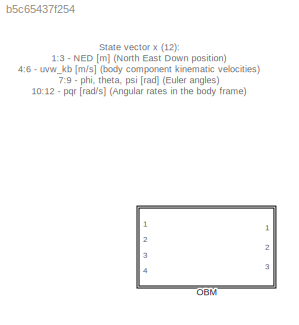
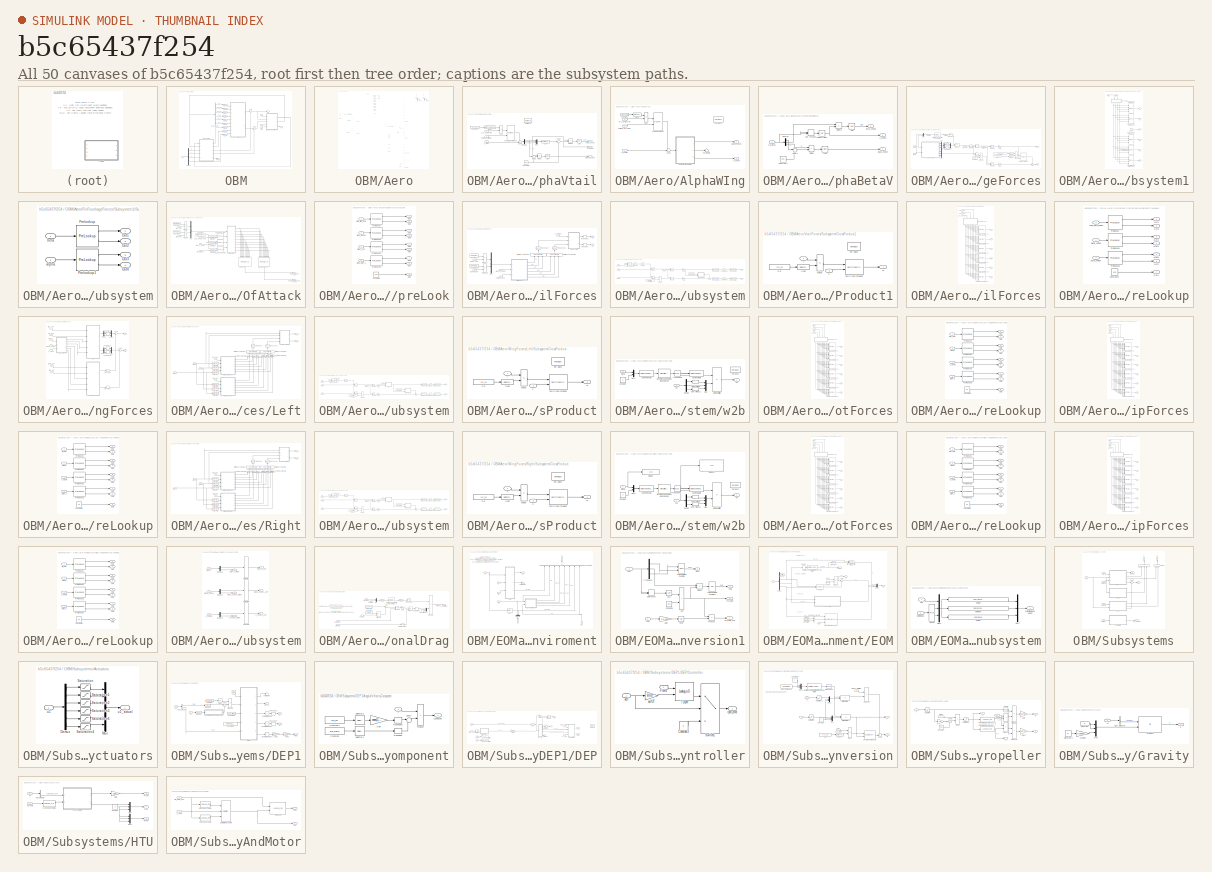
[diagram: thumbnail index - all 50 canvases of the model, root first then tree order]
MODEL slx_b5c65437f254
KIND library
CONFIG AbsTol = auto
CONFIG EnableMultiTasking = off
CONFIG FixedStep = auto
CONFIG MaxStep = auto
CONFIG MinStep = auto
CONFIG RelTol = 1e-3
CONFIG SampleTimeConstraint = Unconstrained
CONFIG SolverName = VariableStepAuto
CONFIG StartTime = 0.0
CONFIG StopTime = 10.0
BLOCK [SubSystem] OBM
  Ports = [4, 3]
  RequestExecContextInheritance = off
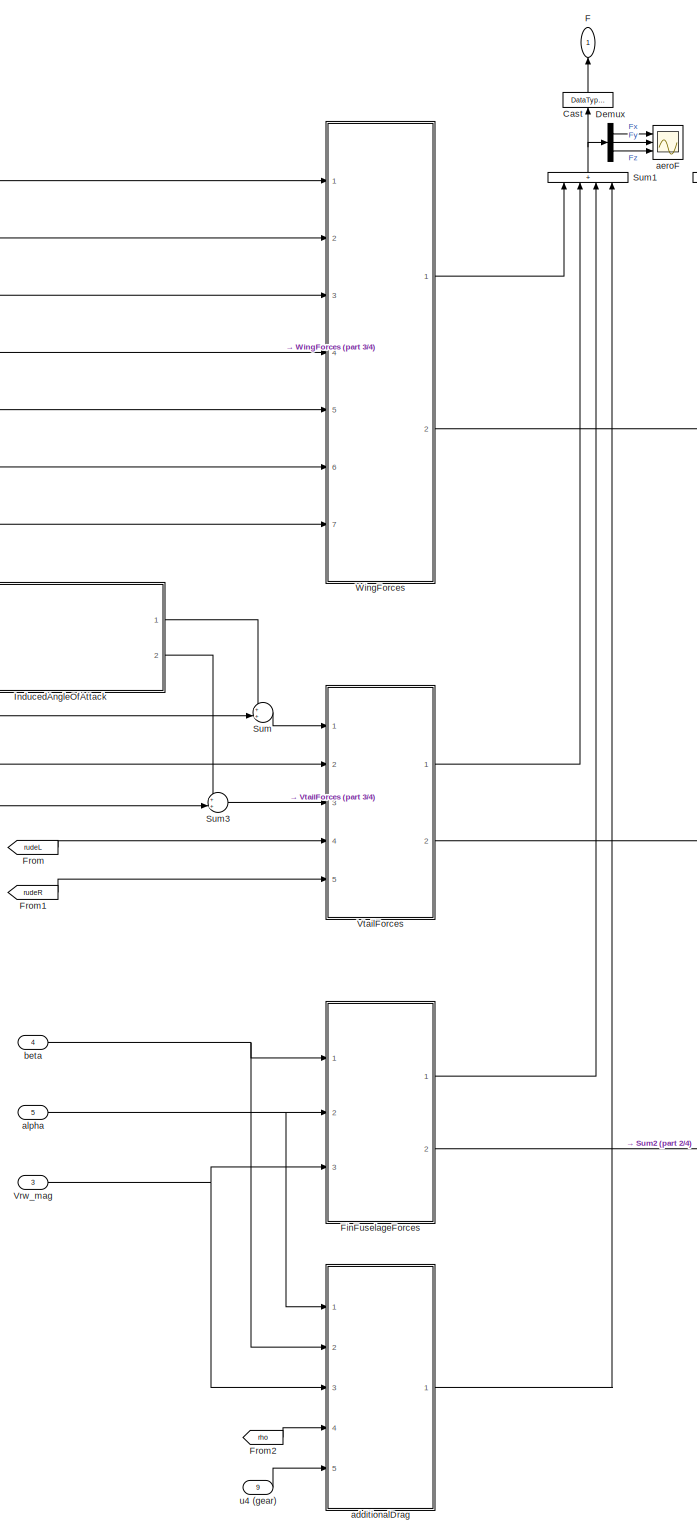
[diagram: OBM/Aero - part 1/4, right side, full height]
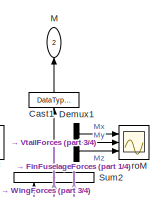
[diagram: OBM/Aero - part 2/4, top right region]
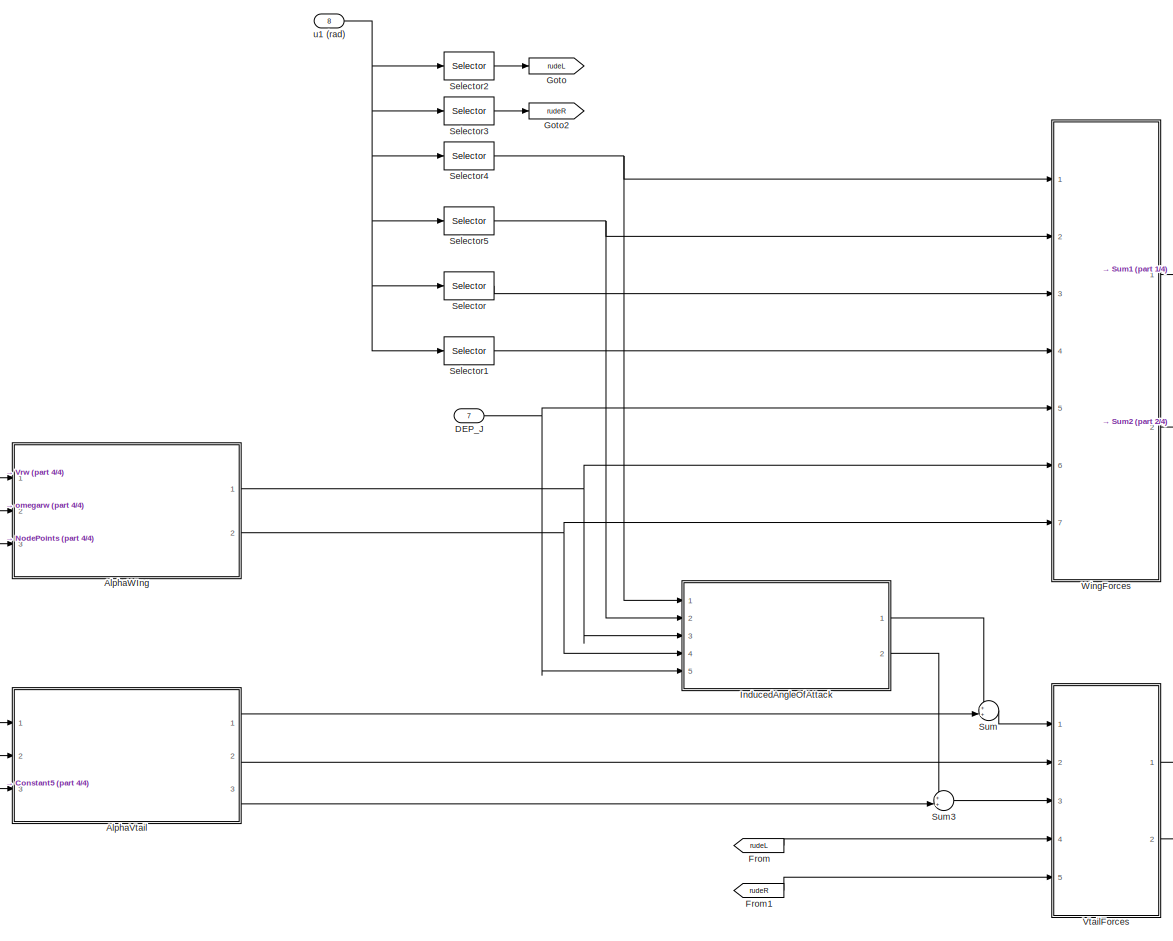
[diagram: OBM/Aero - part 3/4, top center region]
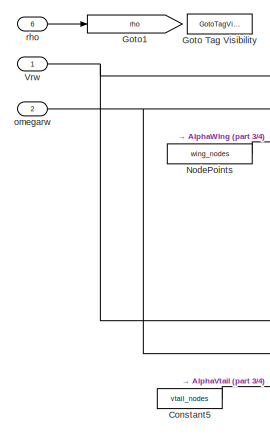
[diagram: OBM/Aero - part 4/4, middle left region]
BLOCK [SubSystem] OBM/Aero
  Ports = [9, 2]
  RequestExecContextInheritance = off
BLOCK [SubSystem] OBM/Aero/AlphaVtail
  Ports = [3, 3]
  RequestExecContextInheritance = off
  TreatAsAtomicUnit = on
BLOCK [Reference] OBM/Aero/AlphaVtail/3x3 Cross Product  REF=sharedutil/3x3 Cross Product
  Ports = [2, 1]
  SourceBlock = sharedutil/3x3 Cross Product
  SourceProductBaseCode = AE,PW,DR,MT,UV,VE
  SourceType = CrossProduct
BLOCK [Trigonometry] OBM/Aero/AlphaVtail/Asin
  Operator = asin
  Ports = [1, 1]
BLOCK [Trigonometry] OBM/Aero/AlphaVtail/Atan
  Operator = atan
  Ports = [1, 1]
BLOCK [DataTypeConversion] OBM/Aero/AlphaVtail/Cast
  OutDataTypeStr = single
  RndMeth = Floor
  SaturateOnIntegerOverflow = off
BLOCK [Constant] OBM/Aero/AlphaVtail/Constant
  Value = xyz_cg
BLOCK [Constant] OBM/Aero/AlphaVtail/Constant1
  OutDataTypeStr = single
  Value = eps
BLOCK [Demux] OBM/Aero/AlphaVtail/Demux
  Outputs = 3
  Ports = [1, 3]
BLOCK [Product] OBM/Aero/AlphaVtail/Divide
  Inputs = */
  Ports = [2, 1]
BLOCK [Product] OBM/Aero/AlphaVtail/Divide1
  Inputs = */
  Ports = [2, 1]
BLOCK [ForEach] OBM/Aero/AlphaVtail/For Each
  DisableCoverage = on
  Ports = []
  SpecifiedNumIters = 16
BLOCK [Mux] OBM/Aero/AlphaVtail/Mux
  DisplayOption = bar
  Inputs = 3
  Ports = [3, 1]
BLOCK [Sum] OBM/Aero/AlphaVtail/Sum
  IconShape = rectangular
  Inputs = +-
  Ports = [2, 1]
BLOCK [Sum] OBM/Aero/AlphaVtail/Sum1
  Inputs = ++|
  Ports = [2, 1]
BLOCK [Sum] OBM/Aero/AlphaVtail/Sum2
  Inputs = |++
  Ports = [2, 1]
BLOCK [Sum] OBM/Aero/AlphaVtail/Sum3
  Inputs = |++
  Ports = [2, 1]
BLOCK [Fcn] OBM/Aero/AlphaVtail/V_inf
  Expr = sqrt(u(1)^2+u(2)^2+u(3)^2)
BLOCK [Outport] OBM/Aero/AlphaVtail/V_nodes
  ConcatenationDimension = 2
  Port = 3
BLOCK [Inport] OBM/Aero/AlphaVtail/V_w (m//s)
BLOCK [Outport] OBM/Aero/AlphaVtail/alpha_nodes
  ConcatenationDimension = 2
BLOCK [Outport] OBM/Aero/AlphaVtail/beta_nodes
  ConcatenationDimension = 2
  Port = 2
BLOCK [Inport] OBM/Aero/AlphaVtail/omega_w (rad//s)
  Port = 2
BLOCK [Inport] OBM/Aero/AlphaVtail/xyz_nodes (m)
  Partition = on
  PartitionDimension = 2
  PartitionOffset = 0
  PartitionWidth = 1
  Port = 3
BLOCK [SubSystem] OBM/Aero/AlphaWIng
  Ports = [3, 2]
  RequestExecContextInheritance = off
  TreatAsAtomicUnit = on
BLOCK [DataTypeConversion] OBM/Aero/AlphaWIng/Cast
  OutDataTypeStr = single
  RndMeth = Floor
  SaturateOnIntegerOverflow = off
BLOCK [SubSystem] OBM/Aero/AlphaWIng/ComputeAlphaBetaV
  Ports = [1, 3]
  RequestExecContextInheritance = off
BLOCK [Trigonometry] OBM/Aero/AlphaWIng/ComputeAlphaBetaV/Asin
  Operator = asin
  Ports = [1, 1]
BLOCK [Trigonometry] OBM/Aero/AlphaWIng/ComputeAlphaBetaV/Atan
  Operator = atan
  Ports = [1, 1]
BLOCK [Constant] OBM/Aero/AlphaWIng/ComputeAlphaBetaV/Constant1
  OutDataTypeStr = single
  Value = eps
BLOCK [Demux] OBM/Aero/AlphaWIng/ComputeAlphaBetaV/Demux
  Outputs = 3
  Ports = [1, 3]
BLOCK [Product] OBM/Aero/AlphaWIng/ComputeAlphaBetaV/Divide
  Inputs = */
  Ports = [2, 1]
BLOCK [Product] OBM/Aero/AlphaWIng/ComputeAlphaBetaV/Divide1
  Inputs = */
  Ports = [2, 1]
BLOCK [DotProduct] OBM/Aero/AlphaWIng/ComputeAlphaBetaV/Dot Product
  OutDataTypeStr = Inherit: Inherit via internal rule
BLOCK [Sqrt] OBM/Aero/AlphaWIng/ComputeAlphaBetaV/Square Root
BLOCK [Sum] OBM/Aero/AlphaWIng/ComputeAlphaBetaV/Sum2
  Inputs = |++
  Ports = [2, 1]
BLOCK [Outport] OBM/Aero/AlphaWIng/ComputeAlphaBetaV/V_nodes
  Port = 3
BLOCK [Inport] OBM/Aero/AlphaWIng/ComputeAlphaBetaV/V_w_local
BLOCK [Outport] OBM/Aero/AlphaWIng/ComputeAlphaBetaV/alpha_nodes
BLOCK [Outport] OBM/Aero/AlphaWIng/ComputeAlphaBetaV/beta_nodes
  Port = 2
BLOCK [Constant] OBM/Aero/AlphaWIng/Constant
  Value = xyz_cg
BLOCK [Reference] OBM/Aero/AlphaWIng/Cross Product  REF=matrix_library/Cross Product
  Ports = [2, 1]
  SourceBlock = matrix_library/Cross Product
  SourceProductBaseCode = SL
  SourceType = CrossProduct
BLOCK [ForEach] OBM/Aero/AlphaWIng/For Each
  DisableCoverage = on
  Ports = []
  SpecifiedNumIters = 14
BLOCK [Sum] OBM/Aero/AlphaWIng/Sum
  IconShape = rectangular
  Inputs = +-
  Ports = [2, 1]
BLOCK [Sum] OBM/Aero/AlphaWIng/Sum1
  Inputs = ++|
  Ports = [2, 1]
BLOCK [Terminator] OBM/Aero/AlphaWIng/Terminator
BLOCK [Outport] OBM/Aero/AlphaWIng/V_nodes
  ConcatenationDimension = 2
  Port = 2
BLOCK [Inport] OBM/Aero/AlphaWIng/V_w (m//s)
BLOCK [Outport] OBM/Aero/AlphaWIng/alpha_nodes
  ConcatenationDimension = 2
BLOCK [Inport] OBM/Aero/AlphaWIng/omega_w (rad//s)
  Port = 2
BLOCK [Inport] OBM/Aero/AlphaWIng/xyz_nodes (m)
  Partition = on
  PartitionDimension = 2
  PartitionOffset = 0
  PartitionWidth = 1
  Port = 3
BLOCK [DataTypeConversion] OBM/Aero/Cast
  NameLocation = right
  OutDataTypeStr = double
  RndMeth = Floor
  SaturateOnIntegerOverflow = off
BLOCK [DataTypeConversion] OBM/Aero/Cast1
  NameLocation = right
  OutDataTypeStr = double
  RndMeth = Floor
  SaturateOnIntegerOverflow = off
BLOCK [Constant] OBM/Aero/Constant5
  Value = vtail_nodes
BLOCK [Inport] OBM/Aero/DEP_J
  LockScale = on
  OutDataTypeStr = single
  Port = 7
  PortDimensions = 12
BLOCK [Demux] OBM/Aero/Demux
  Outputs = 3
  Ports = [1, 3]
BLOCK [Demux] OBM/Aero/Demux1
  Outputs = 3
  Ports = [1, 3]
BLOCK [Outport] OBM/Aero/F
  LockScale = on
  NameLocation = right
  PortDimensions = 3
  Unit = N
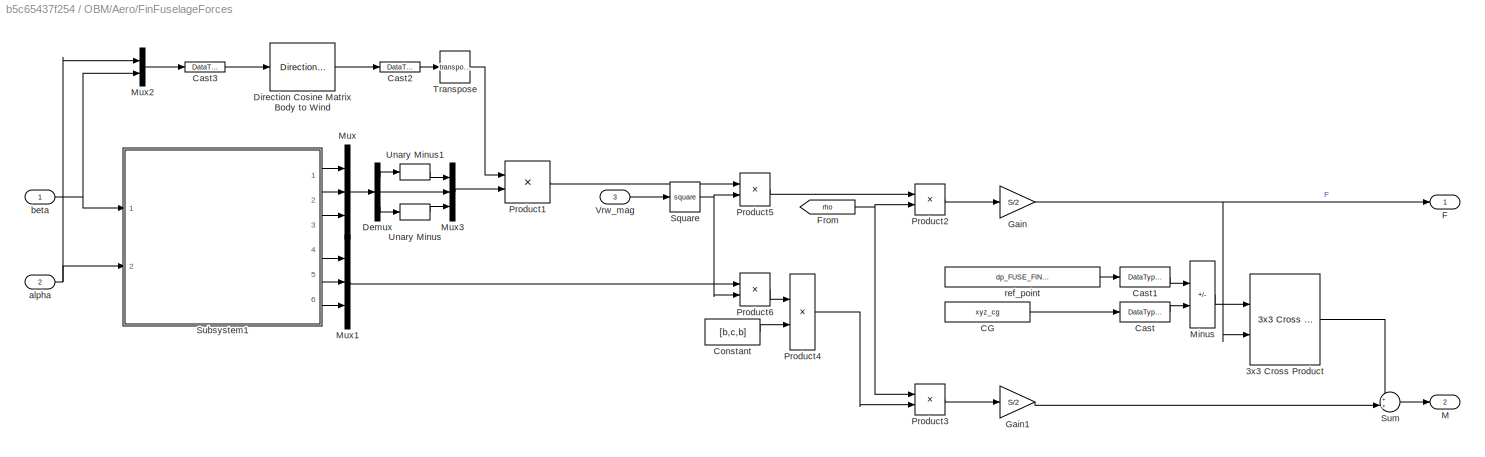
BLOCK [SubSystem] OBM/Aero/FinFuselageForces
  Ports = [3, 2]
  RequestExecContextInheritance = off
BLOCK [Reference] OBM/Aero/FinFuselageForces/3x3 Cross Product  REF=sharedutil/3x3 Cross Product
  Ports = [2, 1]
  SourceBlock = sharedutil/3x3 Cross Product
  SourceProductBaseCode = AE,PW,DR,MT,UV,VE
  SourceType = CrossProduct
BLOCK [Constant] OBM/Aero/FinFuselageForces/CG
  Value = xyz_cg
BLOCK [DataTypeConversion] OBM/Aero/FinFuselageForces/Cast
  OutDataTypeStr = single
  RndMeth = Floor
  SaturateOnIntegerOverflow = off
BLOCK [DataTypeConversion] OBM/Aero/FinFuselageForces/Cast1
  OutDataTypeStr = single
  RndMeth = Floor
  SaturateOnIntegerOverflow = off
BLOCK [DataTypeConversion] OBM/Aero/FinFuselageForces/Cast2
  OutDataTypeStr = single
  RndMeth = Floor
  SaturateOnIntegerOverflow = off
BLOCK [DataTypeConversion] OBM/Aero/FinFuselageForces/Cast3
  OutDataTypeStr = double
  RndMeth = Floor
  SaturateOnIntegerOverflow = off
BLOCK [Constant] OBM/Aero/FinFuselageForces/Constant
  Value = [b,c,b]
BLOCK [Demux] OBM/Aero/FinFuselageForces/Demux
  Outputs = 3
  Ports = [1, 3]
BLOCK [Reference] OBM/Aero/FinFuselageForces/Direction Cosine Matrix Body to Wind  REF=aerolibtransform2/Direction Cosine Matrix
Body to Wind
  Ports = [1, 1]
  SourceBlock = aerolibtransform2/Direction Cosine Matrix\nBody to Wind
  SourceProductBaseCode = AE
  SourceType = DCM Body to Wind
BLOCK [Outport] OBM/Aero/FinFuselageForces/F
BLOCK [From] OBM/Aero/FinFuselageForces/From
  GotoTag = rho
  TagVisibility = scoped
BLOCK [Gain] OBM/Aero/FinFuselageForces/Gain
  Gain = S/2
BLOCK [Gain] OBM/Aero/FinFuselageForces/Gain1
  Gain = S/2
BLOCK [Outport] OBM/Aero/FinFuselageForces/M
  Port = 2
BLOCK [Sum] OBM/Aero/FinFuselageForces/Minus
  IconShape = rectangular
  Inputs = +-
  Ports = [2, 1]
BLOCK [Mux] OBM/Aero/FinFuselageForces/Mux
  DisplayOption = bar
  Inputs = 3
  Ports = [3, 1]
BLOCK [Mux] OBM/Aero/FinFuselageForces/Mux1
  DisplayOption = bar
  Inputs = 3
  Ports = [3, 1]
BLOCK [Mux] OBM/Aero/FinFuselageForces/Mux2
  DisplayOption = bar
  Inputs = 2
  Ports = [2, 1]
BLOCK [Mux] OBM/Aero/FinFuselageForces/Mux3
  DisplayOption = bar
  Inputs = 3
  Ports = [3, 1]
BLOCK [Product] OBM/Aero/FinFuselageForces/Product1
  Multiplication = Matrix(*)
  Ports = [2, 1]
BLOCK [Product] OBM/Aero/FinFuselageForces/Product2
  Ports = [2, 1]
BLOCK [Product] OBM/Aero/FinFuselageForces/Product3
  Ports = [2, 1]
BLOCK [Product] OBM/Aero/FinFuselageForces/Product4
  Ports = [2, 1]
BLOCK [Product] OBM/Aero/FinFuselageForces/Product5
  Ports = [2, 1]
BLOCK [Product] OBM/Aero/FinFuselageForces/Product6
  Ports = [2, 1]
BLOCK [Math] OBM/Aero/FinFuselageForces/Square
  Operator = square
  Ports = [1, 1]
BLOCK [SubSystem] OBM/Aero/FinFuselageForces/Subsystem1
  Ports = [2, 6]
  RequestExecContextInheritance = off
BLOCK [Outport] OBM/Aero/FinFuselageForces/Subsystem1/CMx
  Port = 4
BLOCK [Outport] OBM/Aero/FinFuselageForces/Subsystem1/CMy
  Port = 5
BLOCK [Outport] OBM/Aero/FinFuselageForces/Subsystem1/CMz
  Port = 6
BLOCK [Outport] OBM/Aero/FinFuselageForces/Subsystem1/Cd
BLOCK [Outport] OBM/Aero/FinFuselageForces/Subsystem1/Cl
  Port = 3
BLOCK [Constant] OBM/Aero/FinFuselageForces/Subsystem1/Constant
  OutDataTypeStr = single
  Value = 0
BLOCK [Outport] OBM/Aero/FinFuselageForces/Subsystem1/Cs
  Port = 2
BLOCK [Interpolation_n-D] OBM/Aero/FinFuselageForces/Subsystem1/Interpolation Using Prelookup
  InputPortMap = u0,u1,u2,u3
  IntermediateResultsDataTypeStr = Inherit: Inherit via internal rule
  InternalRulePriority = Speed
  Ports = [4, 1]
  Table = dp_FUSE_FIN.CD
  TableDataTypeStr = single
BLOCK [Interpolation_n-D] OBM/Aero/FinFuselageForces/Subsystem1/Interpolation Using Prelookup1
  InputPortMap = u0,u1,u2,u3
  IntermediateResultsDataTypeStr = Inherit: Inherit via internal rule
  InternalRulePriority = Speed
  Ports = [4, 1]
  Table = dp_FUSE_FIN.CS
BLOCK [Interpolation_n-D] OBM/Aero/FinFuselageForces/Subsystem1/Interpolation Using Prelookup3
  InputPortMap = u0,u1,u2,u3
  IntermediateResultsDataTypeStr = Inherit: Inherit via internal rule
  InternalRulePriority = Speed
  Ports = [4, 1]
  Table = dp_FUSE_FIN.CMx
BLOCK [Interpolation_n-D] OBM/Aero/FinFuselageForces/Subsystem1/Interpolation Using Prelookup4
  InputPortMap = u0,u1,u2,u3
  IntermediateResultsDataTypeStr = Inherit: Inherit via internal rule
  InternalRulePriority = Speed
  Ports = [4, 1]
  Table = dp_FUSE_FIN.CMy
BLOCK [Interpolation_n-D] OBM/Aero/FinFuselageForces/Subsystem1/Interpolation Using Prelookup5
  InputPortMap = u0,u1,u2,u3
  IntermediateResultsDataTypeStr = Inherit: Inherit via internal rule
  InternalRulePriority = Speed
  Ports = [4, 1]
  Table = dp_FUSE_FIN.CMz
BLOCK [SubSystem] OBM/Aero/FinFuselageForces/Subsystem1/Subsystem
  NameLocation = left
  Ports = [2, 4]
  RequestExecContextInheritance = off
BLOCK [Outport] OBM/Aero/FinFuselageForces/Subsystem1/Subsystem/Out1
BLOCK [Outport] OBM/Aero/FinFuselageForces/Subsystem1/Subsystem/Out2
  Port = 2
BLOCK [Outport] OBM/Aero/FinFuselageForces/Subsystem1/Subsystem/Out3
  Port = 3
BLOCK [Outport] OBM/Aero/FinFuselageForces/Subsystem1/Subsystem/Out4
  Port = 4
BLOCK [PreLookup] OBM/Aero/FinFuselageForces/Subsystem1/Subsystem/Prelookup
  BeginIndexSearchUsingPreviousIndexResult = on
  BreakpointsData = dp_FUSE_FIN.beta
  ExtrapMethod = Linear
  IndexSearchMethod = Linear search
  InputPortMap = u0
  Ports = [1, 2]
BLOCK [PreLookup] OBM/Aero/FinFuselageForces/Subsystem1/Subsystem/Prelookup1
  BeginIndexSearchUsingPreviousIndexResult = on
  BreakpointsData = dp_FUSE_FIN.aoa
  ExtrapMethod = Linear
  IndexSearchMethod = Linear search
  InputPortMap = u0
  Ports = [1, 2]
BLOCK [Inport] OBM/Aero/FinFuselageForces/Subsystem1/Subsystem/alpha
  Port = 2
BLOCK [Inport] OBM/Aero/FinFuselageForces/Subsystem1/Subsystem/beta
BLOCK [Inport] OBM/Aero/FinFuselageForces/Subsystem1/alpha
  Port = 2
BLOCK [Inport] OBM/Aero/FinFuselageForces/Subsystem1/beta
BLOCK [Sum] OBM/Aero/FinFuselageForces/Sum
  Inputs = ++|
  Ports = [2, 1]
BLOCK [Math] OBM/Aero/FinFuselageForces/Transpose
  Operator = transpose
  Ports = [1, 1]
BLOCK [UnaryMinus] OBM/Aero/FinFuselageForces/Unary Minus
BLOCK [UnaryMinus] OBM/Aero/FinFuselageForces/Unary Minus1
BLOCK [Inport] OBM/Aero/FinFuselageForces/Vrw_mag
  OutDataTypeStr = single
  Port = 3
BLOCK [Inport] OBM/Aero/FinFuselageForces/alpha
  Port = 2
BLOCK [Inport] OBM/Aero/FinFuselageForces/beta
BLOCK [Constant] OBM/Aero/FinFuselageForces/ref_point
  NameLocation = top
  Value = dp_FUSE_FIN.ref_CG
BLOCK [From] OBM/Aero/From
  GotoTag = rudeL
BLOCK [From] OBM/Aero/From1
  GotoTag = rudeR
BLOCK [From] OBM/Aero/From2
  GotoTag = rho
  TagVisibility = scoped
BLOCK [Goto] OBM/Aero/Goto
  GotoTag = rudeL
BLOCK [GotoTagVisibility] OBM/Aero/Goto Tag Visibility
  GotoTag = rho
BLOCK [Goto] OBM/Aero/Goto1
  GotoTag = rho
  TagVisibility = scoped
BLOCK [Goto] OBM/Aero/Goto2
  GotoTag = rudeR
BLOCK [SubSystem] OBM/Aero/InducedAngleOfAttack
  Ports = [5, 2]
  RequestExecContextInheritance = off
BLOCK [Lookup_n-D] OBM/Aero/InducedAngleOfAttack/1-D Lookup Table
  BeginIndexSearchUsingPreviousIndexResult = on
  BreakpointsForDimension1 = wing_nodes(2,5:10)
  ExtrapMethod = Clip
  InputPortMap = u0,p221
  InternalRulePriority = Speed
  NumberOfTableDimensions = 1
  Ports = [2, 1]
  RndMeth = Simplest
  Table = tanh([-5:5])
  TableSource = Input port
BLOCK [Lookup_n-D] OBM/Aero/InducedAngleOfAttack/1-D Lookup Table1
  BeginIndexSearchUsingPreviousIndexResult = on
  BreakpointsForDimension1 = wing_nodes(2,5:10)
  ExtrapMethod = Clip
  InputPortMap = u0,p221
  InternalRulePriority = Speed
  NumberOfTableDimensions = 1
  Ports = [2, 1]
  RndMeth = Simplest
  Table = tanh([-5:5])
  TableSource = Input port
BLOCK [Lookup_n-D] OBM/Aero/InducedAngleOfAttack/1-D Lookup Table2
  BeginIndexSearchUsingPreviousIndexResult = on
  BreakpointsForDimension1 = wing_nodes(2,5:10)
  ExtrapMethod = Clip
  InputPortMap = u0,p221
  InternalRulePriority = Speed
  NumberOfTableDimensions = 1
  Ports = [2, 1]
  RndMeth = Simplest
  Table = tanh([-5:5])
  TableSource = Input port
BLOCK [Constant] OBM/Aero/InducedAngleOfAttack/Constant
  Value = ones(1,8)
BLOCK [Constant] OBM/Aero/InducedAngleOfAttack/Constant1
  Value = ones(1,8)
BLOCK [Constant] OBM/Aero/InducedAngleOfAttack/Constant7
  Value = vtail_nodes(2,:)
BLOCK [Mux] OBM/Aero/InducedAngleOfAttack/Mux
  DisplayOption = bar
  Inputs = 2
  Ports = [2, 1]
BLOCK [Product] OBM/Aero/InducedAngleOfAttack/Product
  Ports = [2, 1]
BLOCK [Product] OBM/Aero/InducedAngleOfAttack/Product1
  Ports = [2, 1]
BLOCK [Selector] OBM/Aero/InducedAngleOfAttack/Selector
  IndexOptions = Index vector (dialog)
  Indices = [5:10]
  InputPortWidth = 14
  OutputSizes = 1
  Ports = [1, 1]
BLOCK [Selector] OBM/Aero/InducedAngleOfAttack/Selector1
  IndexOptions = Index vector (dialog)
  Indices = [5:10]
  InputPortWidth = 14
  OutputSizes = 1
  Ports = [1, 1]
BLOCK [Selector] OBM/Aero/InducedAngleOfAttack/Selector2
  IndexOptions = Index vector (dialog)
  Indices = [4:9]
  InputPortWidth = 12
  OutputSizes = 1
  Ports = [1, 1]
BLOCK [Interpolation_n-D] OBM/Aero/InducedAngleOfAttack/V_induced
  InputPortMap = u0,u1,u2,u3,u4,u5,u6,u7,u8
  IntermediateResultsDataTypeStr = Inherit: Inherit via internal rule
  InternalRulePriority = Speed
  NameLocation = right
  NumSelectionDims = 1
  NumberOfTableDimensions = 5
  Ports = [9, 1]
  Table = dp_VTAIL_INDUCED.V_induced
  TableDataTypeStr = Inherit: Inherit from 'Table data'
BLOCK [Interpolation_n-D] OBM/Aero/InducedAngleOfAttack/alpha_induced
  InputPortMap = u0,u1,u2,u3,u4,u5,u6,u7,u8
  IntermediateResultsDataTypeStr = Inherit: Inherit via internal rule
  InternalRulePriority = Speed
  NameLocation = right
  NumSelectionDims = 1
  NumberOfTableDimensions = 5
  Ports = [9, 1]
  Table = dp_VTAIL_INDUCED.alpha_induced
  TableDataTypeStr = Inherit: Inherit from 'Table data'
BLOCK [Inport] OBM/Aero/InducedAngleOfAttack/flapL_defl
BLOCK [Inport] OBM/Aero/InducedAngleOfAttack/flapR_defl
  Port = 2
BLOCK [SubSystem] OBM/Aero/InducedAngleOfAttack/preLook
  Ports = [4, 9]
  RequestExecContextInheritance = off
BLOCK [Constant] OBM/Aero/InducedAngleOfAttack/preLook/Constant8
  Value = 0:15
BLOCK [Outport] OBM/Aero/InducedAngleOfAttack/preLook/Out1
BLOCK [Outport] OBM/Aero/InducedAngleOfAttack/preLook/Out2
  Port = 2
BLOCK [Outport] OBM/Aero/InducedAngleOfAttack/preLook/Out3
  Port = 5
BLOCK [Outport] OBM/Aero/InducedAngleOfAttack/preLook/Out4
  Port = 6
BLOCK [Outport] OBM/Aero/InducedAngleOfAttack/preLook/Out5
  Port = 9
BLOCK [Outport] OBM/Aero/InducedAngleOfAttack/preLook/Out6
  Port = 7
BLOCK [Outport] OBM/Aero/InducedAngleOfAttack/preLook/Out7
  Port = 8
BLOCK [Outport] OBM/Aero/InducedAngleOfAttack/preLook/Out8
  Port = 3
BLOCK [Outport] OBM/Aero/InducedAngleOfAttack/preLook/Out9
  Port = 4
BLOCK [PreLookup] OBM/Aero/InducedAngleOfAttack/preLook/Prelookup
  BeginIndexSearchUsingPreviousIndexResult = on
  BreakpointsData = dp_VTAIL_INDUCED.flap_defl
  ExtrapMethod = Linear
  IndexSearchMethod = Linear search
  InputPortMap = u0
  Ports = [1, 2]
BLOCK [PreLookup] OBM/Aero/InducedAngleOfAttack/preLook/Prelookup1
  BeginIndexSearchUsingPreviousIndexResult = on
  BreakpointsData = dp_VTAIL_INDUCED.V_infs
  ExtrapMethod = Linear
  IndexSearchMethod = Linear search
  InputPortMap = u0
  Ports = [1, 2]
BLOCK [PreLookup] OBM/Aero/InducedAngleOfAttack/preLook/Prelookup2
  BeginIndexSearchUsingPreviousIndexResult = on
  BreakpointsData = dp_VTAIL_INDUCED.alphas
  ExtrapMethod = Linear
  IndexSearchMethod = Linear search
  InputPortMap = u0
  Ports = [1, 2]
BLOCK [PreLookup] OBM/Aero/InducedAngleOfAttack/preLook/Prelookup3
  BeginIndexSearchUsingPreviousIndexResult = on
  BreakpointsData = dp_VTAIL_INDUCED.DEP_J
  IndexSearchMethod = Linear search
  InputPortMap = u0
  Ports = [1, 2]
BLOCK [Inport] OBM/Aero/InducedAngleOfAttack/preLook/wing_DEP_J
  Port = 4
BLOCK [Inport] OBM/Aero/InducedAngleOfAttack/preLook/wing_V_inf
  Port = 3
BLOCK [Inport] OBM/Aero/InducedAngleOfAttack/preLook/wing_alphas
  Port = 2
BLOCK [Inport] OBM/Aero/InducedAngleOfAttack/preLook/wing_flap_defl
BLOCK [Outport] OBM/Aero/InducedAngleOfAttack/vtail_V_induced_nodes
  Port = 2
  PortDimensions = 16
BLOCK [Outport] OBM/Aero/InducedAngleOfAttack/vtail_alpha_induced_nodes
  PortDimensions = 16
BLOCK [Inport] OBM/Aero/InducedAngleOfAttack/wing_DEP_J
  Port = 5
  PortDimensions = 12
BLOCK [Inport] OBM/Aero/InducedAngleOfAttack/wing_V_nodes
  Port = 4
  PortDimensions = 14
BLOCK [Inport] OBM/Aero/InducedAngleOfAttack/wing_alpha_nodes
  Port = 3
  PortDimensions = 14
BLOCK [Outport] OBM/Aero/M
  LockScale = on
  NameLocation = right
  Port = 2
  PortDimensions = 3
  Unit = N*m
BLOCK [Constant] OBM/Aero/NodePoints
  Value = wing_nodes
BLOCK [Selector] OBM/Aero/Selector
  IndexOptions = Index vector (dialog)
  Indices = 1
  InputPortWidth = 6
  OutputSizes = 1
  Ports = [1, 1]
BLOCK [Selector] OBM/Aero/Selector1
  IndexOptions = Index vector (dialog)
  Indices = 2
  InputPortWidth = 6
  OutputSizes = 1
  Ports = [1, 1]
BLOCK [Selector] OBM/Aero/Selector2
  IndexOptions = Index vector (dialog)
  Indices = 3
  InputPortWidth = 6
  OutputSizes = 1
  Ports = [1, 1]
BLOCK [Selector] OBM/Aero/Selector3
  IndexOptions = Index vector (dialog)
  Indices = 4
  InputPortWidth = 6
  OutputSizes = 1
  Ports = [1, 1]
BLOCK [Selector] OBM/Aero/Selector4
  IndexOptions = Index vector (dialog)
  Indices = 5
  InputPortWidth = 6
  OutputSizes = 1
  Ports = [1, 1]
BLOCK [Selector] OBM/Aero/Selector5
  IndexOptions = Index vector (dialog)
  Indices = 6
  InputPortWidth = 6
  OutputSizes = 1
  Ports = [1, 1]
BLOCK [Sum] OBM/Aero/Sum
  Inputs = ++|
  Ports = [2, 1]
BLOCK [Sum] OBM/Aero/Sum1
  IconShape = rectangular
  Inputs = ++++
  NameLocation = right
  Ports = [4, 1]
BLOCK [Sum] OBM/Aero/Sum2
  IconShape = rectangular
  Inputs = +++
  NameLocation = right
  Ports = [3, 1]
BLOCK [Sum] OBM/Aero/Sum3
  Inputs = ++|
  Ports = [2, 1]
BLOCK [Inport] OBM/Aero/Vrw
  LockScale = on
  OutDataTypeStr = single
  PortDimensions = 3
  Unit = m/s
BLOCK [Inport] OBM/Aero/Vrw_mag
  OutDataTypeStr = single
  Port = 3
BLOCK [SubSystem] OBM/Aero/VtailForces
  Ports = [5, 2]
  RequestExecContextInheritance = off
BLOCK [Constant] OBM/Aero/VtailForces/Constant
  Value = ones(1,8)
BLOCK [Constant] OBM/Aero/VtailForces/Constant1
  Value = ones(1,8)
BLOCK [Outport] OBM/Aero/VtailForces/F
BLOCK [Outport] OBM/Aero/VtailForces/M
  Port = 2
BLOCK [Concatenate] OBM/Aero/VtailForces/Matrix Concatenate1
  ConcatenateDimension = 2
  Mode = Multidimensional array
  NameLocation = right
  NumInputs = 3
  Ports = [3, 1]
BLOCK [Concatenate] OBM/Aero/VtailForces/Matrix Concatenate2
  ConcatenateDimension = 2
  Mode = Multidimensional array
  NameLocation = right
  NumInputs = 3
  Ports = [3, 1]
BLOCK [Mux] OBM/Aero/VtailForces/Mux
  DisplayOption = bar
  Inputs = 2
  Ports = [2, 1]
BLOCK [Product] OBM/Aero/VtailForces/Product
  Ports = [2, 1]
BLOCK [Product] OBM/Aero/VtailForces/Product1
  Ports = [2, 1]
BLOCK [Reshape] OBM/Aero/VtailForces/Reshape
  Ports = [1, 1]
BLOCK [Reshape] OBM/Aero/VtailForces/Reshape1
  Ports = [1, 1]
BLOCK [SubSystem] OBM/Aero/VtailForces/Subsystem
  Ports = [3, 2]
  RequestExecContextInheritance = off
BLOCK [DataTypeConversion] OBM/Aero/VtailForces/Subsystem/Cast To Double1
  OutDataTypeStr = single
  RndMeth = Floor
  SaturateOnIntegerOverflow = off
BLOCK [DataTypeConversion] OBM/Aero/VtailForces/Subsystem/Cast To Double2
  OutDataTypeStr = double
  RndMeth = Floor
  SaturateOnIntegerOverflow = off
BLOCK [DataTypeConversion] OBM/Aero/VtailForces/Subsystem/Cast To Double3
  OutDataTypeStr = double
  RndMeth = Floor
  SaturateOnIntegerOverflow = off
BLOCK [DataTypeConversion] OBM/Aero/VtailForces/Subsystem/Cast To Double4
  OutDataTypeStr = single
  RndMeth = Floor
  SaturateOnIntegerOverflow = off
BLOCK [Constant] OBM/Aero/VtailForces/Subsystem/Constant1
  OutDataTypeStr = single
  Value = repmat([b;c;b],1,16)
  VectorParams1D = off
BLOCK [SubSystem] OBM/Aero/VtailForces/Subsystem/CrossProduct1
  Ports = [2, 1]
  RequestExecContextInheritance = off
  TreatAsAtomicUnit = on
BLOCK [Reference] OBM/Aero/VtailForces/Subsystem/CrossProduct1/3x3 Cross Product  REF=sharedutil/3x3 Cross Product
  Ports = [2, 1]
  SourceBlock = sharedutil/3x3 Cross Product
  SourceProductBaseCode = AE,PW,DR,MT,UV,VE
  SourceType = CrossProduct
BLOCK [Constant] OBM/Aero/VtailForces/Subsystem/CrossProduct1/CG
  Value = xyz_cg
BLOCK [DataTypeConversion] OBM/Aero/VtailForces/Subsystem/CrossProduct1/Cast
  OutDataTypeStr = single
  RndMeth = Floor
  SaturateOnIntegerOverflow = off
BLOCK [Inport] OBM/Aero/VtailForces/Subsystem/CrossProduct1/F
  Partition = on
  PartitionDimension = 2
  PartitionOffset = 0
  PartitionWidth = 1
  Port = 2
BLOCK [ForEach] OBM/Aero/VtailForces/Subsystem/CrossProduct1/For Each
  DisableCoverage = on
  Ports = []
  SpecifiedNumIters = 16
BLOCK [Outport] OBM/Aero/VtailForces/Subsystem/CrossProduct1/M
  ConcatenationDimension = 2
BLOCK [Sum] OBM/Aero/VtailForces/Subsystem/CrossProduct1/Minus
  IconShape = rectangular
  Inputs = +-
  Ports = [2, 1]
BLOCK [Inport] OBM/Aero/VtailForces/Subsystem/CrossProduct1/r
  Partition = on
  PartitionDimension = 2
  PartitionOffset = 0
  PartitionWidth = 1
BLOCK [Outport] OBM/Aero/VtailForces/Subsystem/F
BLOCK [Inport] OBM/Aero/VtailForces/Subsystem/F_matrix
  Port = 2
BLOCK [From] OBM/Aero/VtailForces/Subsystem/From1
  GotoTag = rho
  TagVisibility = scoped
BLOCK [Gain] OBM/Aero/VtailForces/Subsystem/Gain2
  Gain = S/2
BLOCK [Gain] OBM/Aero/VtailForces/Subsystem/Gain3
  Gain = S/2
BLOCK [Outport] OBM/Aero/VtailForces/Subsystem/M
  Port = 2
BLOCK [Inport] OBM/Aero/VtailForces/Subsystem/M_matrix
  Port = 3
BLOCK [Concatenate] OBM/Aero/VtailForces/Subsystem/Matrix Concatenate2
  ConcatenateDimension = 2
  Mode = Multidimensional array
  NumInputs = 3
  Ports = [3, 1]
BLOCK [Constant] OBM/Aero/VtailForces/Subsystem/NodePoints1
  Value = vtail_nodes
BLOCK [Product] OBM/Aero/VtailForces/Subsystem/Product
  Ports = [2, 1]
BLOCK [Product] OBM/Aero/VtailForces/Subsystem/Product1
  Ports = [2, 1]
BLOCK [Product] OBM/Aero/VtailForces/Subsystem/Product7
  Ports = [2, 1]
BLOCK [Product] OBM/Aero/VtailForces/Subsystem/Product8
  Ports = [2, 1]
BLOCK [Product] OBM/Aero/VtailForces/Subsystem/Product9
  Ports = [2, 1]
BLOCK [Math] OBM/Aero/VtailForces/Subsystem/Square1
  Operator = square
  Ports = [1, 1]
BLOCK [Sum] OBM/Aero/VtailForces/Subsystem/Sum
  Inputs = ++|
  Ports = [2, 1]
BLOCK [Sum] OBM/Aero/VtailForces/Subsystem/Sum of Elements1
  CollapseDim = 2
  CollapseMode = Specified dimension
  IconShape = rectangular
  Inputs = +
  Ports = [1, 1]
BLOCK [Sum] OBM/Aero/VtailForces/Subsystem/Sum of Elements2
  CollapseDim = 2
  CollapseMode = Specified dimension
  IconShape = rectangular
  Inputs = +
  Ports = [1, 1]
BLOCK [Math] OBM/Aero/VtailForces/Subsystem/Transpose1
  Operator = transpose
  Ports = [1, 1]
BLOCK [Inport] OBM/Aero/VtailForces/Subsystem/V_nodes
BLOCK [Math] OBM/Aero/VtailForces/Transpose
  NameLocation = right
  Operator = transpose
  Ports = [1, 1]
BLOCK [Math] OBM/Aero/VtailForces/Transpose1
  NameLocation = right
  Operator = transpose
  Ports = [1, 1]
BLOCK [Inport] OBM/Aero/VtailForces/V_nodes
  Port = 3
  PortDimensions = 16
BLOCK [SubSystem] OBM/Aero/VtailForces/VtailForces
  Ports = [3, 6]
  RequestExecContextInheritance = off
BLOCK [Outport] OBM/Aero/VtailForces/VtailForces/CMx
  Port = 4
BLOCK [Outport] OBM/Aero/VtailForces/VtailForces/CMy
  Port = 5
BLOCK [Outport] OBM/Aero/VtailForces/VtailForces/CMz
  Port = 6
BLOCK [Outport] OBM/Aero/VtailForces/VtailForces/Cx
BLOCK [Outport] OBM/Aero/VtailForces/VtailForces/Cy
  Port = 2
BLOCK [Outport] OBM/Aero/VtailForces/VtailForces/Cz
  Port = 3
BLOCK [Interpolation_n-D] OBM/Aero/VtailForces/VtailForces/Interpolation Using Prelookup1
  InputPortMap = u0,u1,u2,u3,u4,u5,u6
  IntermediateResultsDataTypeStr = Inherit: Inherit via internal rule
  InternalRulePriority = Speed
  NumSelectionDims = 1
  NumberOfTableDimensions = 4
  Ports = [7, 1]
  Table = dp_VTAIL.CFx
  TableDataTypeStr = Inherit: Inherit from 'Table data'
BLOCK [Interpolation_n-D] OBM/Aero/VtailForces/VtailForces/Interpolation Using Prelookup2
  InputPortMap = u0,u1,u2,u3,u4,u5,u6
  IntermediateResultsDataTypeStr = Inherit: Inherit via internal rule
  InternalRulePriority = Speed
  NumSelectionDims = 1
  NumberOfTableDimensions = 4
  Ports = [7, 1]
  Table = dp_VTAIL.CFy
  TableDataTypeStr = Inherit: Inherit from 'Table data'
BLOCK [Interpolation_n-D] OBM/Aero/VtailForces/VtailForces/Interpolation Using Prelookup3
  InputPortMap = u0,u1,u2,u3,u4,u5,u6
  IntermediateResultsDataTypeStr = Inherit: Inherit via internal rule
  InternalRulePriority = Speed
  NumSelectionDims = 1
  NumberOfTableDimensions = 4
  Ports = [7, 1]
  Table = dp_VTAIL.CFz
  TableDataTypeStr = Inherit: Inherit from 'Table data'
BLOCK [Interpolation_n-D] OBM/Aero/VtailForces/VtailForces/Interpolation Using Prelookup4
  InputPortMap = u0,u1,u2,u3,u4,u5,u6
  IntermediateResultsDataTypeStr = Inherit: Inherit via internal rule
  InternalRulePriority = Speed
  NumSelectionDims = 1
  NumberOfTableDimensions = 4
  Ports = [7, 1]
  Table = dp_VTAIL.CMx
  TableDataTypeStr = Inherit: Inherit from 'Table data'
BLOCK [Interpolation_n-D] OBM/Aero/VtailForces/VtailForces/Interpolation Using Prelookup5
  InputPortMap = u0,u1,u2,u3,u4,u5,u6
  IntermediateResultsDataTypeStr = Inherit: Inherit via internal rule
  InternalRulePriority = Speed
  NumSelectionDims = 1
  NumberOfTableDimensions = 4
  Ports = [7, 1]
  Table = dp_VTAIL.CMy
  TableDataTypeStr = Inherit: Inherit from 'Table data'
BLOCK [Interpolation_n-D] OBM/Aero/VtailForces/VtailForces/Interpolation Using Prelookup6
  InputPortMap = u0,u1,u2,u3,u4,u5,u6
  IntermediateResultsDataTypeStr = Inherit: Inherit via internal rule
  InternalRulePriority = Speed
  NumSelectionDims = 1
  NumberOfTableDimensions = 4
  Ports = [7, 1]
  Table = dp_VTAIL.CMz
  TableDataTypeStr = Inherit: Inherit from 'Table data'
BLOCK [SubSystem] OBM/Aero/VtailForces/VtailForces/WingRootPreLookup
  NameLocation = right
  Ports = [3, 7]
  RequestExecContextInheritance = off
BLOCK [Constant] OBM/Aero/VtailForces/VtailForces/WingRootPreLookup/Constant8
  Value = 0:15
BLOCK [Outport] OBM/Aero/VtailForces/VtailForces/WingRootPreLookup/Out1
BLOCK [Outport] OBM/Aero/VtailForces/VtailForces/WingRootPreLookup/Out2
  Port = 2
BLOCK [Outport] OBM/Aero/VtailForces/VtailForces/WingRootPreLookup/Out3
  Port = 3
BLOCK [Outport] OBM/Aero/VtailForces/VtailForces/WingRootPreLookup/Out4
  Port = 4
BLOCK [Outport] OBM/Aero/VtailForces/VtailForces/WingRootPreLookup/Out5
  Port = 7
BLOCK [Outport] OBM/Aero/VtailForces/VtailForces/WingRootPreLookup/Out6
  Port = 5
BLOCK [Outport] OBM/Aero/VtailForces/VtailForces/WingRootPreLookup/Out7
  Port = 6
BLOCK [PreLookup] OBM/Aero/VtailForces/VtailForces/WingRootPreLookup/Prelookup
  BeginIndexSearchUsingPreviousIndexResult = on
  BreakpointsData = dp_VTAIL.rude_defl
  ExtrapMethod = Linear
  IndexSearchMethod = Linear search
  InputPortMap = u0
  Ports = [1, 2]
BLOCK [PreLookup] OBM/Aero/VtailForces/VtailForces/WingRootPreLookup/Prelookup1
  BeginIndexSearchUsingPreviousIndexResult = on
  BreakpointsData = dp_VTAIL.alphas
  ExtrapMethod = Linear
  IndexSearchMethod = Linear search
  InputPortMap = u0
  Ports = [1, 2]
BLOCK [PreLookup] OBM/Aero/VtailForces/VtailForces/WingRootPreLookup/Prelookup2
  BeginIndexSearchUsingPreviousIndexResult = on
  BreakpointsData = dp_VTAIL.betas
  ExtrapMethod = Linear
  IndexSearchMethod = Linear search
  InputPortMap = u0
  Ports = [1, 2]
BLOCK [Inport] OBM/Aero/VtailForces/VtailForces/WingRootPreLookup/alpha_nodes
  Port = 2
BLOCK [Inport] OBM/Aero/VtailForces/VtailForces/WingRootPreLookup/beta_nodes
  Port = 3
BLOCK [Inport] OBM/Aero/VtailForces/VtailForces/WingRootPreLookup/rude_defl_nodes
BLOCK [Inport] OBM/Aero/VtailForces/VtailForces/alpha_nodes
  Port = 2
BLOCK [Inport] OBM/Aero/VtailForces/VtailForces/beta_nodes
  Port = 3
BLOCK [Inport] OBM/Aero/VtailForces/VtailForces/rude_defl_nodes
BLOCK [Inport] OBM/Aero/VtailForces/alpha_nodes
  PortDimensions = 16
BLOCK [Inport] OBM/Aero/VtailForces/beta_nodes
  Port = 2
  PortDimensions = 16
BLOCK [Inport] OBM/Aero/VtailForces/rudeL_defl
  Port = 4
BLOCK [Inport] OBM/Aero/VtailForces/rudeR_defl
  Port = 5
BLOCK [SubSystem] OBM/Aero/WingForces
  Ports = [7, 2]
  RequestExecContextInheritance = off
BLOCK [Inport] OBM/Aero/WingForces/DEP_J
  Port = 5
  PortDimensions = 12
BLOCK [Demux] OBM/Aero/WingForces/Demux
  Outputs = 3
  Ports = [1, 3]
BLOCK [Demux] OBM/Aero/WingForces/Demux1
  Outputs = 3
  Ports = [1, 3]
BLOCK [Outport] OBM/Aero/WingForces/F
BLOCK [SubSystem] OBM/Aero/WingForces/Left
  Ports = [5, 2]
  RequestExecContextInheritance = off
BLOCK [Inport] OBM/Aero/WingForces/Left/DEP_J
  Port = 3
  PortDimensions = 6
BLOCK [Outport] OBM/Aero/WingForces/Left/F
BLOCK [Outport] OBM/Aero/WingForces/Left/M
  Port = 2
BLOCK [Concatenate] OBM/Aero/WingForces/Left/Matrix Concatenate1
  ConcatenateDimension = 2
  Mode = Multidimensional array
  NameLocation = right
  NumInputs = 3
  Ports = [3, 1]
BLOCK [Concatenate] OBM/Aero/WingForces/Left/Matrix Concatenate2
  ConcatenateDimension = 2
  Mode = Multidimensional array
  NameLocation = right
  NumInputs = 3
  Ports = [3, 1]
BLOCK [Selector] OBM/Aero/WingForces/Left/Selector
  IndexOptions = Index vector (dialog)
  Indices = [1,2,3,4,5]
  InputPortWidth = 6
  OutputSizes = 1
  Ports = [1, 1]
BLOCK [Selector] OBM/Aero/WingForces/Left/Selector1
  IndexOptions = Index vector (dialog)
  Indices = [5,6]
  InputPortWidth = 6
  OutputSizes = 1
  Ports = [1, 1]
BLOCK [Selector] OBM/Aero/WingForces/Left/Selector2
  IndexOptions = Index vector (dialog)
  Indices = [1,2,3,4,5]
  InputPortWidth = 7
  OutputSizes = 1
  Ports = [1, 1]
BLOCK [Selector] OBM/Aero/WingForces/Left/Selector3
  IndexOptions = Index vector (dialog)
  Indices = [6,7]
  InputPortWidth = 7
  OutputSizes = 1
  Ports = [1, 1]
BLOCK [Selector] OBM/Aero/WingForces/Left/Selector4
  IndexOptions = Index vector (dialog)
  Indices = [6,7]
  InputPortWidth = 7
  OutputSizes = 1
  Ports = [1, 1]
BLOCK [Selector] OBM/Aero/WingForces/Left/Selector5
  IndexOptions = Index vector (dialog)
  Indices = [1,2,3,4,5]
  InputPortWidth = 7
  OutputSizes = 1
  Ports = [1, 1]
BLOCK [SubSystem] OBM/Aero/WingForces/Left/Subsystem
  Ports = [4, 2]
  RequestExecContextInheritance = off
BLOCK [DataTypeConversion] OBM/Aero/WingForces/Left/Subsystem/Cast To Double1
  OutDataTypeStr = single
  RndMeth = Floor
  SaturateOnIntegerOverflow = off
BLOCK [DataTypeConversion] OBM/Aero/WingForces/Left/Subsystem/Cast To Double2
  OutDataTypeStr = double
  RndMeth = Floor
  SaturateOnIntegerOverflow = off
BLOCK [DataTypeConversion] OBM/Aero/WingForces/Left/Subsystem/Cast To Double3
  OutDataTypeStr = single
  RndMeth = Floor
  SaturateOnIntegerOverflow = off
BLOCK [DataTypeConversion] OBM/Aero/WingForces/Left/Subsystem/Cast To Double4
  OutDataTypeStr = double
  RndMeth = Floor
  SaturateOnIntegerOverflow = off
BLOCK [Constant] OBM/Aero/WingForces/Left/Subsystem/Constant
  Value = repmat([b;c;b],1,7)
BLOCK [SubSystem] OBM/Aero/WingForces/Left/Subsystem/CrossProduct
  Ports = [2, 1]
  RequestExecContextInheritance = off
  TreatAsAtomicUnit = on
BLOCK [Reference] OBM/Aero/WingForces/Left/Subsystem/CrossProduct/3x3 Cross Product  REF=sharedutil/3x3 Cross Product
  Ports = [2, 1]
  SourceBlock = sharedutil/3x3 Cross Product
  SourceProductBaseCode = AE,PW,DR,MT,UV,VE
  SourceType = CrossProduct
BLOCK [Constant] OBM/Aero/WingForces/Left/Subsystem/CrossProduct/CG
  Value = xyz_cg
BLOCK [DataTypeConversion] OBM/Aero/WingForces/Left/Subsystem/CrossProduct/Cast
  OutDataTypeStr = single
  RndMeth = Floor
  SaturateOnIntegerOverflow = off
BLOCK [Inport] OBM/Aero/WingForces/Left/Subsystem/CrossProduct/F
  Partition = on
  PartitionDimension = 2
  PartitionOffset = 0
  PartitionWidth = 1
  Port = 2
BLOCK [ForEach] OBM/Aero/WingForces/Left/Subsystem/CrossProduct/For Each
  DisableCoverage = on
  Ports = []
  SpecifiedNumIters = 7
BLOCK [Outport] OBM/Aero/WingForces/Left/Subsystem/CrossProduct/M
  ConcatenationDimension = 2
BLOCK [Sum] OBM/Aero/WingForces/Left/Subsystem/CrossProduct/Minus
  IconShape = rectangular
  Inputs = +-
  Ports = [2, 1]
BLOCK [Inport] OBM/Aero/WingForces/Left/Subsystem/CrossProduct/r
  Partition = on
  PartitionDimension = 2
  PartitionOffset = 0
  PartitionWidth = 1
BLOCK [Outport] OBM/Aero/WingForces/Left/Subsystem/F
BLOCK [Inport] OBM/Aero/WingForces/Left/Subsystem/F_matrix
  Port = 3
BLOCK [From] OBM/Aero/WingForces/Left/Subsystem/From
  GotoTag = rho
  TagVisibility = scoped
BLOCK [Gain] OBM/Aero/WingForces/Left/Subsystem/Gain
  Gain = S/2
BLOCK [Gain] OBM/Aero/WingForces/Left/Subsystem/Gain1
  Gain = S/2
BLOCK [Outport] OBM/Aero/WingForces/Left/Subsystem/M
  Port = 2
BLOCK [Inport] OBM/Aero/WingForces/Left/Subsystem/M_matrix
  Port = 4
BLOCK [Concatenate] OBM/Aero/WingForces/Left/Subsystem/Matrix Concatenate1
  ConcatenateDimension = 2
  Mode = Multidimensional array
  NumInputs = 3
  Ports = [3, 1]
BLOCK [Constant] OBM/Aero/WingForces/Left/Subsystem/NodePoints
  Value = wing_nodes(:,8:14)
BLOCK [Product] OBM/Aero/WingForces/Left/Subsystem/Product
  Ports = [2, 1]
BLOCK [Product] OBM/Aero/WingForces/Left/Subsystem/Product1
  Ports = [2, 1]
BLOCK [Product] OBM/Aero/WingForces/Left/Subsystem/Product2
  Ports = [2, 1]
BLOCK [Product] OBM/Aero/WingForces/Left/Subsystem/Product3
  Ports = [2, 1]
BLOCK [Product] OBM/Aero/WingForces/Left/Subsystem/Product4
  Ports = [2, 1]
BLOCK [Math] OBM/Aero/WingForces/Left/Subsystem/Square
  Operator = square
  Ports = [1, 1]
BLOCK [Sum] OBM/Aero/WingForces/Left/Subsystem/Sum
  Inputs = ++|
  Ports = [2, 1]
BLOCK [Sum] OBM/Aero/WingForces/Left/Subsystem/Sum of Elements1
  CollapseDim = 2
  CollapseMode = Specified dimension
  IconShape = rectangular
  Inputs = +
  Ports = [1, 1]
BLOCK [Sum] OBM/Aero/WingForces/Left/Subsystem/Sum of Elements2
  CollapseDim = 2
  CollapseMode = Specified dimension
  IconShape = rectangular
  Inputs = +
  Ports = [1, 1]
BLOCK [Math] OBM/Aero/WingForces/Left/Subsystem/Transpose
  Operator = transpose
  Ports = [1, 1]
BLOCK [Inport] OBM/Aero/WingForces/Left/Subsystem/V_nodes
  Port = 2
BLOCK [Inport] OBM/Aero/WingForces/Left/Subsystem/alpha_nodes
BLOCK [SubSystem] OBM/Aero/WingForces/Left/Subsystem/w2b
  Ports = [2, 1]
  RequestExecContextInheritance = off
  TreatAsAtomicUnit = on
BLOCK [DataTypeConversion] OBM/Aero/WingForces/Left/Subsystem/w2b/Cast To Double
  OutDataTypeStr = double
  RndMeth = Floor
  SaturateOnIntegerOverflow = off
BLOCK [DataTypeConversion] OBM/Aero/WingForces/Left/Subsystem/w2b/Cast To Single
  OutDataTypeStr = single
  RndMeth = Floor
  SaturateOnIntegerOverflow = off
BLOCK [Constant] OBM/Aero/WingForces/Left/Subsystem/w2b/Constant
  OutDataTypeStr = single
  Value = 0
BLOCK [Demux] OBM/Aero/WingForces/Left/Subsystem/w2b/Demux
  Outputs = 3
  Ports = [1, 3]
BLOCK [Reference] OBM/Aero/WingForces/Left/Subsystem/w2b/Direction Cosine Matrix Body to Wind  REF=aerolibtransform2/Direction Cosine Matrix
Body to Wind
  Ports = [1, 1]
  SourceBlock = aerolibtransform2/Direction Cosine Matrix\nBody to Wind
  SourceProductBaseCode = AE
  SourceType = DCM Body to Wind
BLOCK [Outport] OBM/Aero/WingForces/Left/Subsystem/w2b/Fb
  ConcatenationDimension = 2
BLOCK [ForEach] OBM/Aero/WingForces/Left/Subsystem/w2b/For Each
  DisableCoverage = on
  Ports = []
  SpecifiedNumIters = 7
BLOCK [Inport] OBM/Aero/WingForces/Left/Subsystem/w2b/Fw
  Partition = on
  PartitionDimension = 2
  PartitionOffset = 0
  PartitionWidth = 1
  Port = 2
BLOCK [Product] OBM/Aero/WingForces/Left/Subsystem/w2b/Matrix Multiply
  Multiplication = Matrix(*)
  Ports = [2, 1]
BLOCK [Mux] OBM/Aero/WingForces/Left/Subsystem/w2b/Mux
  DisplayOption = bar
  Inputs = 3
  Ports = [3, 1]
BLOCK [Mux] OBM/Aero/WingForces/Left/Subsystem/w2b/Mux1
  DisplayOption = bar
  Inputs = 2
  Ports = [2, 1]
BLOCK [Math] OBM/Aero/WingForces/Left/Subsystem/w2b/Transpose
  Operator = transpose
  Ports = [1, 1]
BLOCK [UnaryMinus] OBM/Aero/WingForces/Left/Subsystem/w2b/Unary Minus
BLOCK [UnaryMinus] OBM/Aero/WingForces/Left/Subsystem/w2b/Unary Minus1
BLOCK [Inport] OBM/Aero/WingForces/Left/Subsystem/w2b/alpha
  OutDataTypeStr = single
  Partition = on
  PartitionDimension = 1
  PartitionOffset = 0
  PartitionWidth = 1
BLOCK [Math] OBM/Aero/WingForces/Left/Transpose
  NameLocation = right
  Operator = transpose
  Ports = [1, 1]
BLOCK [Math] OBM/Aero/WingForces/Left/Transpose1
  NameLocation = right
  Operator = transpose
  Ports = [1, 1]
BLOCK [Inport] OBM/Aero/WingForces/Left/V_node
  Port = 5
  PortDimensions = 7
BLOCK [Concatenate] OBM/Aero/WingForces/Left/Vector Concatenate
  NameLocation = right
  Ports = [2, 1]
BLOCK [Concatenate] OBM/Aero/WingForces/Left/Vector Concatenate1
  NameLocation = right
  Ports = [2, 1]
BLOCK [Concatenate] OBM/Aero/WingForces/Left/Vector Concatenate2
  NameLocation = right
  Ports = [2, 1]
BLOCK [Concatenate] OBM/Aero/WingForces/Left/Vector Concatenate3
  NameLocation = right
  Ports = [2, 1]
BLOCK [Concatenate] OBM/Aero/WingForces/Left/Vector Concatenate4
  NameLocation = right
  Ports = [2, 1]
BLOCK [Concatenate] OBM/Aero/WingForces/Left/Vector Concatenate5
  NameLocation = right
  Ports = [2, 1]
BLOCK [SubSystem] OBM/Aero/WingForces/Left/WingRootForces
  Ports = [4, 6]
  RequestExecContextInheritance = off
BLOCK [Outport] OBM/Aero/WingForces/Left/WingRootForces/CD
BLOCK [Outport] OBM/Aero/WingForces/Left/WingRootForces/CL
  Port = 3
BLOCK [Outport] OBM/Aero/WingForces/Left/WingRootForces/CMx
  Port = 4
BLOCK [Outport] OBM/Aero/WingForces/Left/WingRootForces/CMy
  Port = 5
BLOCK [Outport] OBM/Aero/WingForces/Left/WingRootForces/CMz
  Port = 6
BLOCK [Outport] OBM/Aero/WingForces/Left/WingRootForces/CS
  Port = 2
BLOCK [Inport] OBM/Aero/WingForces/Left/WingRootForces/DEP_J
  Port = 4
BLOCK [Interpolation_n-D] OBM/Aero/WingForces/Left/WingRootForces/Interpolation Using Prelookup1
  ExtrapMethod = Clip
  InputPortMap = u0,u1,u2,u3,u4,u5,u6,u7,u8
  IntermediateResultsDataTypeStr = Inherit: Inherit via internal rule
  InternalRulePriority = Speed
  NumSelectionDims = 1
  NumberOfTableDimensions = 5
  Ports = [9, 1]
  Table = dp_WING_root.CD
  TableDataTypeStr = Inherit: Inherit from 'Table data'
  ValidIndexMayReachLast = on
BLOCK [Interpolation_n-D] OBM/Aero/WingForces/Left/WingRootForces/Interpolation Using Prelookup2
  ExtrapMethod = Clip
  InputPortMap = u0,u1,u2,u3,u4,u5,u6,u7,u8
  IntermediateResultsDataTypeStr = Inherit: Inherit via internal rule
  InternalRulePriority = Speed
  NumSelectionDims = 1
  NumberOfTableDimensions = 5
  Ports = [9, 1]
  Table = dp_WING_root.CS
  TableDataTypeStr = Inherit: Inherit from 'Table data'
  ValidIndexMayReachLast = on
BLOCK [Interpolation_n-D] OBM/Aero/WingForces/Left/WingRootForces/Interpolation Using Prelookup3
  ExtrapMethod = Clip
  InputPortMap = u0,u1,u2,u3,u4,u5,u6,u7,u8
  IntermediateResultsDataTypeStr = Inherit: Inherit via internal rule
  InternalRulePriority = Speed
  NumSelectionDims = 1
  NumberOfTableDimensions = 5
  Ports = [9, 1]
  Table = dp_WING_root.CL
  TableDataTypeStr = Inherit: Inherit from 'Table data'
  ValidIndexMayReachLast = on
BLOCK [Interpolation_n-D] OBM/Aero/WingForces/Left/WingRootForces/Interpolation Using Prelookup4
  ExtrapMethod = Clip
  InputPortMap = u0,u1,u2,u3,u4,u5,u6,u7,u8
  IntermediateResultsDataTypeStr = Inherit: Inherit via internal rule
  InternalRulePriority = Speed
  NumSelectionDims = 1
  NumberOfTableDimensions = 5
  Ports = [9, 1]
  Table = dp_WING_root.CMx
  TableDataTypeStr = Inherit: Inherit from 'Table data'
  ValidIndexMayReachLast = on
BLOCK [Interpolation_n-D] OBM/Aero/WingForces/Left/WingRootForces/Interpolation Using Prelookup5
  ExtrapMethod = Clip
  InputPortMap = u0,u1,u2,u3,u4,u5,u6,u7,u8
  IntermediateResultsDataTypeStr = Inherit: Inherit via internal rule
  InternalRulePriority = Speed
  NumSelectionDims = 1
  NumberOfTableDimensions = 5
  Ports = [9, 1]
  Table = dp_WING_root.CMy
  TableDataTypeStr = Inherit: Inherit from 'Table data'
  ValidIndexMayReachLast = on
BLOCK [Interpolation_n-D] OBM/Aero/WingForces/Left/WingRootForces/Interpolation Using Prelookup6
  ExtrapMethod = Clip
  InputPortMap = u0,u1,u2,u3,u4,u5,u6,u7,u8
  IntermediateResultsDataTypeStr = Inherit: Inherit via internal rule
  InternalRulePriority = Speed
  NumSelectionDims = 1
  NumberOfTableDimensions = 5
  Ports = [9, 1]
  Table = dp_WING_root.CMz
  TableDataTypeStr = Inherit: Inherit from 'Table data'
  ValidIndexMayReachLast = on
BLOCK [Inport] OBM/Aero/WingForces/Left/WingRootForces/V_node
  Port = 3
BLOCK [SubSystem] OBM/Aero/WingForces/Left/WingRootForces/WingRootPreLookup
  NameLocation = right
  Ports = [4, 9]
  RequestExecContextInheritance = off
BLOCK [Constant] OBM/Aero/WingForces/Left/WingRootForces/WingRootPreLookup/Constant8
  Value = 0:4
BLOCK [Inport] OBM/Aero/WingForces/Left/WingRootForces/WingRootPreLookup/DEP_J
  Port = 4
BLOCK [Outport] OBM/Aero/WingForces/Left/WingRootForces/WingRootPreLookup/Out1
BLOCK [Outport] OBM/Aero/WingForces/Left/WingRootForces/WingRootPreLookup/Out2
  Port = 2
BLOCK [Outport] OBM/Aero/WingForces/Left/WingRootForces/WingRootPreLookup/Out3
  Port = 3
BLOCK [Outport] OBM/Aero/WingForces/Left/WingRootForces/WingRootPreLookup/Out4
  Port = 4
BLOCK [Outport] OBM/Aero/WingForces/Left/WingRootForces/WingRootPreLookup/Out5
  Port = 9
BLOCK [Outport] OBM/Aero/WingForces/Left/WingRootForces/WingRootPreLookup/Out6
  Port = 5
BLOCK [Outport] OBM/Aero/WingForces/Left/WingRootForces/WingRootPreLookup/Out7
  Port = 6
BLOCK [Outport] OBM/Aero/WingForces/Left/WingRootForces/WingRootPreLookup/Out8
  Port = 7
BLOCK [Outport] OBM/Aero/WingForces/Left/WingRootForces/WingRootPreLookup/Out9
  Port = 8
BLOCK [PreLookup] OBM/Aero/WingForces/Left/WingRootForces/WingRootPreLookup/Prelookup
  BeginIndexSearchUsingPreviousIndexResult = on
  BreakpointsData = dp_WING_root.flap_defl
  IndexSearchMethod = Linear search
  InputPortMap = u0
  Ports = [1, 2]
  UseLastBreakpoint = on
BLOCK [PreLookup] OBM/Aero/WingForces/Left/WingRootForces/WingRootPreLookup/Prelookup1
  BeginIndexSearchUsingPreviousIndexResult = on
  BreakpointsData = dp_WING_root.alphas
  IndexSearchMethod = Linear search
  InputPortMap = u0
  Ports = [1, 2]
  UseLastBreakpoint = on
BLOCK [PreLookup] OBM/Aero/WingForces/Left/WingRootForces/WingRootPreLookup/Prelookup2
  BeginIndexSearchUsingPreviousIndexResult = on
  BreakpointsData = dp_WING_root.V
  IndexSearchMethod = Linear search
  InputPortMap = u0
  Ports = [1, 2]
  UseLastBreakpoint = on
BLOCK [PreLookup] OBM/Aero/WingForces/Left/WingRootForces/WingRootPreLookup/Prelookup3
  BeginIndexSearchUsingPreviousIndexResult = on
  BreakpointsData = dp_WING_root.DEP_J
  IndexSearchMethod = Linear search
  InputPortMap = u0
  Ports = [1, 2]
  UseLastBreakpoint = on
BLOCK [Inport] OBM/Aero/WingForces/Left/WingRootForces/WingRootPreLookup/V_node
  Port = 3
BLOCK [Inport] OBM/Aero/WingForces/Left/WingRootForces/WingRootPreLookup/alpha
  Port = 2
BLOCK [Inport] OBM/Aero/WingForces/Left/WingRootForces/WingRootPreLookup/flap_defl
BLOCK [Inport] OBM/Aero/WingForces/Left/WingRootForces/alpha
  Port = 2
BLOCK [Inport] OBM/Aero/WingForces/Left/WingRootForces/flap_defl
BLOCK [SubSystem] OBM/Aero/WingForces/Left/WingTipForces
  Ports = [4, 6]
  RequestExecContextInheritance = off
BLOCK [Outport] OBM/Aero/WingForces/Left/WingTipForces/CD
BLOCK [Outport] OBM/Aero/WingForces/Left/WingTipForces/CL
  Port = 3
BLOCK [Outport] OBM/Aero/WingForces/Left/WingTipForces/CMx
  Port = 4
BLOCK [Outport] OBM/Aero/WingForces/Left/WingTipForces/CMy
  Port = 5
BLOCK [Outport] OBM/Aero/WingForces/Left/WingTipForces/CMz
  Port = 6
BLOCK [Outport] OBM/Aero/WingForces/Left/WingTipForces/CS
  Port = 2
BLOCK [Inport] OBM/Aero/WingForces/Left/WingTipForces/DEP_J
  Port = 4
BLOCK [Interpolation_n-D] OBM/Aero/WingForces/Left/WingTipForces/Interpolation Using Prelookup1
  ExtrapMethod = Clip
  InputPortMap = u0,u1,u2,u3,u4,u5,u6,u7,u8
  IntermediateResultsDataTypeStr = Inherit: Inherit via internal rule
  InternalRulePriority = Speed
  NumSelectionDims = 1
  NumberOfTableDimensions = 5
  Ports = [9, 1]
  Table = dp_WING_tip.CD
  TableDataTypeStr = Inherit: Inherit from 'Table data'
  ValidIndexMayReachLast = on
BLOCK [Interpolation_n-D] OBM/Aero/WingForces/Left/WingTipForces/Interpolation Using Prelookup2
  ExtrapMethod = Clip
  InputPortMap = u0,u1,u2,u3,u4,u5,u6,u7,u8
  IntermediateResultsDataTypeStr = Inherit: Inherit via internal rule
  InternalRulePriority = Speed
  NumSelectionDims = 1
  NumberOfTableDimensions = 5
  Ports = [9, 1]
  Table = dp_WING_tip.CS
  TableDataTypeStr = Inherit: Inherit from 'Table data'
  ValidIndexMayReachLast = on
BLOCK [Interpolation_n-D] OBM/Aero/WingForces/Left/WingTipForces/Interpolation Using Prelookup3
  ExtrapMethod = Clip
  InputPortMap = u0,u1,u2,u3,u4,u5,u6,u7,u8
  IntermediateResultsDataTypeStr = Inherit: Inherit via internal rule
  InternalRulePriority = Speed
  NumSelectionDims = 1
  NumberOfTableDimensions = 5
  Ports = [9, 1]
  Table = dp_WING_tip.CL
  TableDataTypeStr = Inherit: Inherit from 'Table data'
  ValidIndexMayReachLast = on
BLOCK [Interpolation_n-D] OBM/Aero/WingForces/Left/WingTipForces/Interpolation Using Prelookup4
  ExtrapMethod = Clip
  InputPortMap = u0,u1,u2,u3,u4,u5,u6,u7,u8
  IntermediateResultsDataTypeStr = Inherit: Inherit via internal rule
  InternalRulePriority = Speed
  NumSelectionDims = 1
  NumberOfTableDimensions = 5
  Ports = [9, 1]
  Table = dp_WING_tip.CMx
  TableDataTypeStr = Inherit: Inherit from 'Table data'
  ValidIndexMayReachLast = on
BLOCK [Interpolation_n-D] OBM/Aero/WingForces/Left/WingTipForces/Interpolation Using Prelookup5
  ExtrapMethod = Clip
  InputPortMap = u0,u1,u2,u3,u4,u5,u6,u7,u8
  IntermediateResultsDataTypeStr = Inherit: Inherit via internal rule
  InternalRulePriority = Speed
  NumSelectionDims = 1
  NumberOfTableDimensions = 5
  Ports = [9, 1]
  Table = dp_WING_tip.CMy
  TableDataTypeStr = Inherit: Inherit from 'Table data'
  ValidIndexMayReachLast = on
BLOCK [Interpolation_n-D] OBM/Aero/WingForces/Left/WingTipForces/Interpolation Using Prelookup6
  ExtrapMethod = Clip
  InputPortMap = u0,u1,u2,u3,u4,u5,u6,u7,u8
  IntermediateResultsDataTypeStr = Inherit: Inherit via internal rule
  InternalRulePriority = Speed
  NumSelectionDims = 1
  NumberOfTableDimensions = 5
  Ports = [9, 1]
  Table = dp_WING_tip.CMz
  TableDataTypeStr = Inherit: Inherit from 'Table data'
  ValidIndexMayReachLast = on
BLOCK [Inport] OBM/Aero/WingForces/Left/WingTipForces/V_node
  Port = 3
BLOCK [SubSystem] OBM/Aero/WingForces/Left/WingTipForces/WingRootPreLookup
  NameLocation = right
  Ports = [4, 9]
  RequestExecContextInheritance = off
BLOCK [Constant] OBM/Aero/WingForces/Left/WingTipForces/WingRootPreLookup/Constant8
  Value = 0:1
BLOCK [Inport] OBM/Aero/WingForces/Left/WingTipForces/WingRootPreLookup/DEP_J
  Port = 4
BLOCK [Outport] OBM/Aero/WingForces/Left/WingTipForces/WingRootPreLookup/Out1
BLOCK [Outport] OBM/Aero/WingForces/Left/WingTipForces/WingRootPreLookup/Out2
  Port = 2
BLOCK [Outport] OBM/Aero/WingForces/Left/WingTipForces/WingRootPreLookup/Out3
  Port = 3
BLOCK [Outport] OBM/Aero/WingForces/Left/WingTipForces/WingRootPreLookup/Out4
  Port = 4
BLOCK [Outport] OBM/Aero/WingForces/Left/WingTipForces/WingRootPreLookup/Out5
  Port = 9
BLOCK [Outport] OBM/Aero/WingForces/Left/WingTipForces/WingRootPreLookup/Out6
  Port = 5
BLOCK [Outport] OBM/Aero/WingForces/Left/WingTipForces/WingRootPreLookup/Out7
  Port = 6
BLOCK [Outport] OBM/Aero/WingForces/Left/WingTipForces/WingRootPreLookup/Out8
  Port = 7
BLOCK [Outport] OBM/Aero/WingForces/Left/WingTipForces/WingRootPreLookup/Out9
  Port = 8
BLOCK [PreLookup] OBM/Aero/WingForces/Left/WingTipForces/WingRootPreLookup/Prelookup
  BeginIndexSearchUsingPreviousIndexResult = on
  BreakpointsData = dp_WING_tip.ail_defl
  IndexSearchMethod = Linear search
  InputPortMap = u0
  Ports = [1, 2]
  UseLastBreakpoint = on
BLOCK [PreLookup] OBM/Aero/WingForces/Left/WingTipForces/WingRootPreLookup/Prelookup1
  BeginIndexSearchUsingPreviousIndexResult = on
  BreakpointsData = dp_WING_tip.alphas
  IndexSearchMethod = Linear search
  InputPortMap = u0
  Ports = [1, 2]
  UseLastBreakpoint = on
BLOCK [PreLookup] OBM/Aero/WingForces/Left/WingTipForces/WingRootPreLookup/Prelookup2
  BeginIndexSearchUsingPreviousIndexResult = on
  BreakpointsData = dp_WING_tip.V
  IndexSearchMethod = Linear search
  InputPortMap = u0
  Ports = [1, 2]
  UseLastBreakpoint = on
BLOCK [PreLookup] OBM/Aero/WingForces/Left/WingTipForces/WingRootPreLookup/Prelookup3
  BeginIndexSearchUsingPreviousIndexResult = on
  BreakpointsData = dp_WING_tip.DEP_J
  IndexSearchMethod = Linear search
  InputPortMap = u0
  Ports = [1, 2]
  UseLastBreakpoint = on
BLOCK [Inport] OBM/Aero/WingForces/Left/WingTipForces/WingRootPreLookup/V_node
  Port = 3
BLOCK [Inport] OBM/Aero/WingForces/Left/WingTipForces/WingRootPreLookup/ail_defl
BLOCK [Inport] OBM/Aero/WingForces/Left/WingTipForces/WingRootPreLookup/alpha
  Port = 2
BLOCK [Inport] OBM/Aero/WingForces/Left/WingTipForces/ail_defl
BLOCK [Inport] OBM/Aero/WingForces/Left/WingTipForces/alpha
  Port = 2
BLOCK [Inport] OBM/Aero/WingForces/Left/aile_defl
  Port = 2
BLOCK [Inport] OBM/Aero/WingForces/Left/alpha
  Port = 4
  PortDimensions = 7
BLOCK [Inport] OBM/Aero/WingForces/Left/flap_defl
BLOCK [Outport] OBM/Aero/WingForces/M
  Port = 2
BLOCK [Mux] OBM/Aero/WingForces/Mux
  DisplayOption = bar
  Inputs = 3
  Ports = [3, 1]
BLOCK [Mux] OBM/Aero/WingForces/Mux1
  DisplayOption = bar
  Inputs = 3
  Ports = [3, 1]
BLOCK [Reshape] OBM/Aero/WingForces/Reshape
  Ports = [1, 1]
BLOCK [Reshape] OBM/Aero/WingForces/Reshape1
  Ports = [1, 1]
BLOCK [SubSystem] OBM/Aero/WingForces/Right
  Ports = [5, 2]
  RequestExecContextInheritance = off
BLOCK [Inport] OBM/Aero/WingForces/Right/DEP_J
  Port = 3
  PortDimensions = 6
BLOCK [Outport] OBM/Aero/WingForces/Right/F
BLOCK [Outport] OBM/Aero/WingForces/Right/M
  Port = 2
BLOCK [Concatenate] OBM/Aero/WingForces/Right/Matrix Concatenate1
  ConcatenateDimension = 2
  Mode = Multidimensional array
  NameLocation = right
  NumInputs = 3
  Ports = [3, 1]
BLOCK [Concatenate] OBM/Aero/WingForces/Right/Matrix Concatenate2
  ConcatenateDimension = 2
  Mode = Multidimensional array
  NameLocation = right
  NumInputs = 3
  Ports = [3, 1]
BLOCK [Selector] OBM/Aero/WingForces/Right/Selector
  IndexOptions = Index vector (dialog)
  Indices = [1,2,3,4,5]
  InputPortWidth = 6
  OutputSizes = 1
  Ports = [1, 1]
BLOCK [Selector] OBM/Aero/WingForces/Right/Selector1
  IndexOptions = Index vector (dialog)
  Indices = [5,6]
  InputPortWidth = 6
  OutputSizes = 1
  Ports = [1, 1]
BLOCK [Selector] OBM/Aero/WingForces/Right/Selector2
  IndexOptions = Index vector (dialog)
  Indices = [1,2,3,4,5]
  InputPortWidth = 7
  OutputSizes = 1
  Ports = [1, 1]
BLOCK [Selector] OBM/Aero/WingForces/Right/Selector3
  IndexOptions = Index vector (dialog)
  Indices = [6,7]
  InputPortWidth = 7
  OutputSizes = 1
  Ports = [1, 1]
BLOCK [Selector] OBM/Aero/WingForces/Right/Selector4
  IndexOptions = Index vector (dialog)
  Indices = [6,7]
  InputPortWidth = 7
  OutputSizes = 1
  Ports = [1, 1]
BLOCK [Selector] OBM/Aero/WingForces/Right/Selector5
  IndexOptions = Index vector (dialog)
  Indices = [1,2,3,4,5]
  InputPortWidth = 7
  OutputSizes = 1
  Ports = [1, 1]
BLOCK [SubSystem] OBM/Aero/WingForces/Right/Subsystem
  Ports = [4, 2]
  RequestExecContextInheritance = off
BLOCK [DataTypeConversion] OBM/Aero/WingForces/Right/Subsystem/Cast To Double1
  OutDataTypeStr = single
  RndMeth = Floor
  SaturateOnIntegerOverflow = off
BLOCK [DataTypeConversion] OBM/Aero/WingForces/Right/Subsystem/Cast To Double2
  OutDataTypeStr = double
  RndMeth = Floor
  SaturateOnIntegerOverflow = off
BLOCK [DataTypeConversion] OBM/Aero/WingForces/Right/Subsystem/Cast To Double3
  OutDataTypeStr = single
  RndMeth = Floor
  SaturateOnIntegerOverflow = off
BLOCK [DataTypeConversion] OBM/Aero/WingForces/Right/Subsystem/Cast To Double4
  OutDataTypeStr = double
  RndMeth = Floor
  SaturateOnIntegerOverflow = off
BLOCK [Constant] OBM/Aero/WingForces/Right/Subsystem/Constant
  Value = repmat([b;c;b],1,7)
BLOCK [SubSystem] OBM/Aero/WingForces/Right/Subsystem/CrossProduct
  Ports = [2, 1]
  RequestExecContextInheritance = off
  TreatAsAtomicUnit = on
BLOCK [Reference] OBM/Aero/WingForces/Right/Subsystem/CrossProduct/3x3 Cross Product  REF=sharedutil/3x3 Cross Product
  Ports = [2, 1]
  SourceBlock = sharedutil/3x3 Cross Product
  SourceProductBaseCode = AE,PW,DR,MT,UV,VE
  SourceType = CrossProduct
BLOCK [Constant] OBM/Aero/WingForces/Right/Subsystem/CrossProduct/CG
  Value = xyz_cg
BLOCK [DataTypeConversion] OBM/Aero/WingForces/Right/Subsystem/CrossProduct/Cast
  OutDataTypeStr = single
  RndMeth = Floor
  SaturateOnIntegerOverflow = off
BLOCK [Inport] OBM/Aero/WingForces/Right/Subsystem/CrossProduct/F
  Partition = on
  PartitionDimension = 2
  PartitionOffset = 0
  PartitionWidth = 1
  Port = 2
BLOCK [ForEach] OBM/Aero/WingForces/Right/Subsystem/CrossProduct/For Each
  DisableCoverage = on
  Ports = []
  SpecifiedNumIters = 7
BLOCK [Outport] OBM/Aero/WingForces/Right/Subsystem/CrossProduct/M
  ConcatenationDimension = 2
BLOCK [Sum] OBM/Aero/WingForces/Right/Subsystem/CrossProduct/Minus
  IconShape = rectangular
  Inputs = +-
  Ports = [2, 1]
BLOCK [Inport] OBM/Aero/WingForces/Right/Subsystem/CrossProduct/r
  Partition = on
  PartitionDimension = 2
  PartitionOffset = 0
  PartitionWidth = 1
BLOCK [Outport] OBM/Aero/WingForces/Right/Subsystem/F
BLOCK [Inport] OBM/Aero/WingForces/Right/Subsystem/F_matrix
  Port = 3
BLOCK [From] OBM/Aero/WingForces/Right/Subsystem/From
  GotoTag = rho
  TagVisibility = scoped
BLOCK [Gain] OBM/Aero/WingForces/Right/Subsystem/Gain
  Gain = S/2
BLOCK [Gain] OBM/Aero/WingForces/Right/Subsystem/Gain1
  Gain = S/2
BLOCK [Outport] OBM/Aero/WingForces/Right/Subsystem/M
  Port = 2
BLOCK [Inport] OBM/Aero/WingForces/Right/Subsystem/M_matrix
  Port = 4
BLOCK [Concatenate] OBM/Aero/WingForces/Right/Subsystem/Matrix Concatenate1
  ConcatenateDimension = 2
  Mode = Multidimensional array
  NumInputs = 3
  Ports = [3, 1]
BLOCK [Constant] OBM/Aero/WingForces/Right/Subsystem/NodePoints
  Value = wing_nodes(:,8:14)
BLOCK [Product] OBM/Aero/WingForces/Right/Subsystem/Product
  Ports = [2, 1]
BLOCK [Product] OBM/Aero/WingForces/Right/Subsystem/Product1
  Ports = [2, 1]
BLOCK [Product] OBM/Aero/WingForces/Right/Subsystem/Product2
  Ports = [2, 1]
BLOCK [Product] OBM/Aero/WingForces/Right/Subsystem/Product3
  Ports = [2, 1]
BLOCK [Product] OBM/Aero/WingForces/Right/Subsystem/Product4
  Ports = [2, 1]
BLOCK [Math] OBM/Aero/WingForces/Right/Subsystem/Square
  Operator = square
  Ports = [1, 1]
BLOCK [Sum] OBM/Aero/WingForces/Right/Subsystem/Sum
  Inputs = ++|
  Ports = [2, 1]
BLOCK [Sum] OBM/Aero/WingForces/Right/Subsystem/Sum of Elements1
  CollapseDim = 2
  CollapseMode = Specified dimension
  IconShape = rectangular
  Inputs = +
  Ports = [1, 1]
BLOCK [Sum] OBM/Aero/WingForces/Right/Subsystem/Sum of Elements2
  CollapseDim = 2
  CollapseMode = Specified dimension
  IconShape = rectangular
  Inputs = +
  Ports = [1, 1]
BLOCK [Math] OBM/Aero/WingForces/Right/Subsystem/Transpose
  Operator = transpose
  Ports = [1, 1]
BLOCK [Inport] OBM/Aero/WingForces/Right/Subsystem/V_nodes
  Port = 2
BLOCK [Inport] OBM/Aero/WingForces/Right/Subsystem/alpha_nodes
BLOCK [SubSystem] OBM/Aero/WingForces/Right/Subsystem/w2b
  Ports = [2, 1]
  RequestExecContextInheritance = off
  TreatAsAtomicUnit = on
BLOCK [DataTypeConversion] OBM/Aero/WingForces/Right/Subsystem/w2b/Cast To Double
  OutDataTypeStr = double
  RndMeth = Floor
  SaturateOnIntegerOverflow = off
BLOCK [DataTypeConversion] OBM/Aero/WingForces/Right/Subsystem/w2b/Cast To Single
  OutDataTypeStr = single
  RndMeth = Floor
  SaturateOnIntegerOverflow = off
BLOCK [Constant] OBM/Aero/WingForces/Right/Subsystem/w2b/Constant
  OutDataTypeStr = single
  Value = 0
BLOCK [Demux] OBM/Aero/WingForces/Right/Subsystem/w2b/Demux
  Outputs = 3
  Ports = [1, 3]
BLOCK [Reference] OBM/Aero/WingForces/Right/Subsystem/w2b/Direction Cosine Matrix Body to Wind  REF=aerolibtransform2/Direction Cosine Matrix
Body to Wind
  Ports = [1, 1]
  SourceBlock = aerolibtransform2/Direction Cosine Matrix\nBody to Wind
  SourceProductBaseCode = AE
  SourceType = DCM Body to Wind
BLOCK [Display] OBM/Aero/WingForces/Right/Subsystem/w2b/Display
  Decimation = 1
  Ports = [1]
BLOCK [Display] OBM/Aero/WingForces/Right/Subsystem/w2b/Display1
  Decimation = 1
  Ports = [1]
BLOCK [Outport] OBM/Aero/WingForces/Right/Subsystem/w2b/Fb
  ConcatenationDimension = 2
BLOCK [ForEach] OBM/Aero/WingForces/Right/Subsystem/w2b/For Each
  DisableCoverage = on
  Ports = []
  SpecifiedNumIters = 7
BLOCK [Inport] OBM/Aero/WingForces/Right/Subsystem/w2b/Fw
  Partition = on
  PartitionDimension = 2
  PartitionOffset = 0
  PartitionWidth = 1
  Port = 2
BLOCK [Product] OBM/Aero/WingForces/Right/Subsystem/w2b/Matrix Multiply
  Multiplication = Matrix(*)
  Ports = [2, 1]
BLOCK [Mux] OBM/Aero/WingForces/Right/Subsystem/w2b/Mux
  DisplayOption = bar
  Inputs = 3
  Ports = [3, 1]
BLOCK [Mux] OBM/Aero/WingForces/Right/Subsystem/w2b/Mux1
  DisplayOption = bar
  Inputs = 2
  Ports = [2, 1]
BLOCK [Math] OBM/Aero/WingForces/Right/Subsystem/w2b/Transpose
  Operator = transpose
  Ports = [1, 1]
BLOCK [UnaryMinus] OBM/Aero/WingForces/Right/Subsystem/w2b/Unary Minus
BLOCK [UnaryMinus] OBM/Aero/WingForces/Right/Subsystem/w2b/Unary Minus1
BLOCK [Inport] OBM/Aero/WingForces/Right/Subsystem/w2b/alpha
  OutDataTypeStr = single
  Partition = on
  PartitionDimension = 1
  PartitionOffset = 0
  PartitionWidth = 1
BLOCK [Math] OBM/Aero/WingForces/Right/Transpose
  NameLocation = right
  Operator = transpose
  Ports = [1, 1]
BLOCK [Math] OBM/Aero/WingForces/Right/Transpose1
  NameLocation = right
  Operator = transpose
  Ports = [1, 1]
BLOCK [Inport] OBM/Aero/WingForces/Right/V_node
  Port = 5
  PortDimensions = 7
BLOCK [Concatenate] OBM/Aero/WingForces/Right/Vector Concatenate
  NameLocation = right
  Ports = [2, 1]
BLOCK [Concatenate] OBM/Aero/WingForces/Right/Vector Concatenate1
  NameLocation = right
  Ports = [2, 1]
BLOCK [Concatenate] OBM/Aero/WingForces/Right/Vector Concatenate2
  NameLocation = right
  Ports = [2, 1]
BLOCK [Concatenate] OBM/Aero/WingForces/Right/Vector Concatenate3
  NameLocation = right
  Ports = [2, 1]
BLOCK [Concatenate] OBM/Aero/WingForces/Right/Vector Concatenate4
  NameLocation = right
  Ports = [2, 1]
BLOCK [Concatenate] OBM/Aero/WingForces/Right/Vector Concatenate5
  NameLocation = right
  Ports = [2, 1]
BLOCK [SubSystem] OBM/Aero/WingForces/Right/WingRootForces
  Ports = [4, 6]
  RequestExecContextInheritance = off
BLOCK [Outport] OBM/Aero/WingForces/Right/WingRootForces/CD
BLOCK [Outport] OBM/Aero/WingForces/Right/WingRootForces/CL
  Port = 3
BLOCK [Outport] OBM/Aero/WingForces/Right/WingRootForces/CMx
  Port = 4
BLOCK [Outport] OBM/Aero/WingForces/Right/WingRootForces/CMy
  Port = 5
BLOCK [Outport] OBM/Aero/WingForces/Right/WingRootForces/CMz
  Port = 6
BLOCK [Outport] OBM/Aero/WingForces/Right/WingRootForces/CS
  Port = 2
BLOCK [Inport] OBM/Aero/WingForces/Right/WingRootForces/DEP_J
  Port = 4
BLOCK [Interpolation_n-D] OBM/Aero/WingForces/Right/WingRootForces/Interpolation Using Prelookup1
  ExtrapMethod = Clip
  InputPortMap = u0,u1,u2,u3,u4,u5,u6,u7,u8
  IntermediateResultsDataTypeStr = Inherit: Inherit via internal rule
  InternalRulePriority = Speed
  NumSelectionDims = 1
  NumberOfTableDimensions = 5
  Ports = [9, 1]
  Table = dp_WING_root.CD
  TableDataTypeStr = Inherit: Inherit from 'Table data'
  ValidIndexMayReachLast = on
BLOCK [Interpolation_n-D] OBM/Aero/WingForces/Right/WingRootForces/Interpolation Using Prelookup2
  ExtrapMethod = Clip
  InputPortMap = u0,u1,u2,u3,u4,u5,u6,u7,u8
  IntermediateResultsDataTypeStr = Inherit: Inherit via internal rule
  InternalRulePriority = Speed
  NumSelectionDims = 1
  NumberOfTableDimensions = 5
  Ports = [9, 1]
  Table = dp_WING_root.CS
  TableDataTypeStr = Inherit: Inherit from 'Table data'
  ValidIndexMayReachLast = on
BLOCK [Interpolation_n-D] OBM/Aero/WingForces/Right/WingRootForces/Interpolation Using Prelookup3
  ExtrapMethod = Clip
  InputPortMap = u0,u1,u2,u3,u4,u5,u6,u7,u8
  IntermediateResultsDataTypeStr = Inherit: Inherit via internal rule
  InternalRulePriority = Speed
  NumSelectionDims = 1
  NumberOfTableDimensions = 5
  Ports = [9, 1]
  Table = dp_WING_root.CL
  TableDataTypeStr = Inherit: Inherit from 'Table data'
  ValidIndexMayReachLast = on
BLOCK [Interpolation_n-D] OBM/Aero/WingForces/Right/WingRootForces/Interpolation Using Prelookup4
  ExtrapMethod = Clip
  InputPortMap = u0,u1,u2,u3,u4,u5,u6,u7,u8
  IntermediateResultsDataTypeStr = Inherit: Inherit via internal rule
  InternalRulePriority = Speed
  NumSelectionDims = 1
  NumberOfTableDimensions = 5
  Ports = [9, 1]
  Table = dp_WING_root.CMx
  TableDataTypeStr = Inherit: Inherit from 'Table data'
  ValidIndexMayReachLast = on
BLOCK [Interpolation_n-D] OBM/Aero/WingForces/Right/WingRootForces/Interpolation Using Prelookup5
  ExtrapMethod = Clip
  InputPortMap = u0,u1,u2,u3,u4,u5,u6,u7,u8
  IntermediateResultsDataTypeStr = Inherit: Inherit via internal rule
  InternalRulePriority = Speed
  NumSelectionDims = 1
  NumberOfTableDimensions = 5
  Ports = [9, 1]
  Table = dp_WING_root.CMy
  TableDataTypeStr = Inherit: Inherit from 'Table data'
  ValidIndexMayReachLast = on
BLOCK [Interpolation_n-D] OBM/Aero/WingForces/Right/WingRootForces/Interpolation Using Prelookup6
  ExtrapMethod = Clip
  InputPortMap = u0,u1,u2,u3,u4,u5,u6,u7,u8
  IntermediateResultsDataTypeStr = Inherit: Inherit via internal rule
  InternalRulePriority = Speed
  NumSelectionDims = 1
  NumberOfTableDimensions = 5
  Ports = [9, 1]
  Table = dp_WING_root.CMz
  TableDataTypeStr = Inherit: Inherit from 'Table data'
  ValidIndexMayReachLast = on
BLOCK [Inport] OBM/Aero/WingForces/Right/WingRootForces/V_node
  Port = 3
BLOCK [SubSystem] OBM/Aero/WingForces/Right/WingRootForces/WingRootPreLookup
  NameLocation = right
  Ports = [4, 9]
  RequestExecContextInheritance = off
BLOCK [Constant] OBM/Aero/WingForces/Right/WingRootForces/WingRootPreLookup/Constant8
  Value = 0:4
BLOCK [Inport] OBM/Aero/WingForces/Right/WingRootForces/WingRootPreLookup/DEP_J
  Port = 4
BLOCK [Outport] OBM/Aero/WingForces/Right/WingRootForces/WingRootPreLookup/Out1
BLOCK [Outport] OBM/Aero/WingForces/Right/WingRootForces/WingRootPreLookup/Out2
  Port = 2
BLOCK [Outport] OBM/Aero/WingForces/Right/WingRootForces/WingRootPreLookup/Out3
  Port = 3
BLOCK [Outport] OBM/Aero/WingForces/Right/WingRootForces/WingRootPreLookup/Out4
  Port = 4
BLOCK [Outport] OBM/Aero/WingForces/Right/WingRootForces/WingRootPreLookup/Out5
  Port = 9
BLOCK [Outport] OBM/Aero/WingForces/Right/WingRootForces/WingRootPreLookup/Out6
  Port = 5
BLOCK [Outport] OBM/Aero/WingForces/Right/WingRootForces/WingRootPreLookup/Out7
  Port = 6
BLOCK [Outport] OBM/Aero/WingForces/Right/WingRootForces/WingRootPreLookup/Out8
  Port = 7
BLOCK [Outport] OBM/Aero/WingForces/Right/WingRootForces/WingRootPreLookup/Out9
  Port = 8
BLOCK [PreLookup] OBM/Aero/WingForces/Right/WingRootForces/WingRootPreLookup/Prelookup
  BeginIndexSearchUsingPreviousIndexResult = on
  BreakpointsData = dp_WING_root.flap_defl
  IndexSearchMethod = Linear search
  InputPortMap = u0
  Ports = [1, 2]
  UseLastBreakpoint = on
BLOCK [PreLookup] OBM/Aero/WingForces/Right/WingRootForces/WingRootPreLookup/Prelookup1
  BeginIndexSearchUsingPreviousIndexResult = on
  BreakpointsData = dp_WING_root.alphas
  IndexSearchMethod = Linear search
  InputPortMap = u0
  Ports = [1, 2]
  UseLastBreakpoint = on
BLOCK [PreLookup] OBM/Aero/WingForces/Right/WingRootForces/WingRootPreLookup/Prelookup2
  BeginIndexSearchUsingPreviousIndexResult = on
  BreakpointsData = dp_WING_root.V
  IndexSearchMethod = Linear search
  InputPortMap = u0
  Ports = [1, 2]
  UseLastBreakpoint = on
BLOCK [PreLookup] OBM/Aero/WingForces/Right/WingRootForces/WingRootPreLookup/Prelookup3
  BeginIndexSearchUsingPreviousIndexResult = on
  BreakpointsData = dp_WING_root.DEP_J
  IndexSearchMethod = Linear search
  InputPortMap = u0
  Ports = [1, 2]
  UseLastBreakpoint = on
BLOCK [Inport] OBM/Aero/WingForces/Right/WingRootForces/WingRootPreLookup/V_node
  Port = 3
BLOCK [Inport] OBM/Aero/WingForces/Right/WingRootForces/WingRootPreLookup/alpha
  Port = 2
BLOCK [Inport] OBM/Aero/WingForces/Right/WingRootForces/WingRootPreLookup/flap_defl
BLOCK [Inport] OBM/Aero/WingForces/Right/WingRootForces/alpha
  Port = 2
BLOCK [Inport] OBM/Aero/WingForces/Right/WingRootForces/flap_defl
BLOCK [SubSystem] OBM/Aero/WingForces/Right/WingTipForces
  Ports = [4, 6]
  RequestExecContextInheritance = off
BLOCK [Outport] OBM/Aero/WingForces/Right/WingTipForces/CD
BLOCK [Outport] OBM/Aero/WingForces/Right/WingTipForces/CL
  Port = 3
BLOCK [Outport] OBM/Aero/WingForces/Right/WingTipForces/CMx
  Port = 4
BLOCK [Outport] OBM/Aero/WingForces/Right/WingTipForces/CMy
  Port = 5
BLOCK [Outport] OBM/Aero/WingForces/Right/WingTipForces/CMz
  Port = 6
BLOCK [Outport] OBM/Aero/WingForces/Right/WingTipForces/CS
  Port = 2
BLOCK [Inport] OBM/Aero/WingForces/Right/WingTipForces/DEP_J
  Port = 4
BLOCK [Interpolation_n-D] OBM/Aero/WingForces/Right/WingTipForces/Interpolation Using Prelookup1
  ExtrapMethod = Clip
  InputPortMap = u0,u1,u2,u3,u4,u5,u6,u7,u8
  IntermediateResultsDataTypeStr = Inherit: Inherit via internal rule
  InternalRulePriority = Speed
  NumSelectionDims = 1
  NumberOfTableDimensions = 5
  Ports = [9, 1]
  Table = dp_WING_tip.CD
  TableDataTypeStr = Inherit: Inherit from 'Table data'
  ValidIndexMayReachLast = on
BLOCK [Interpolation_n-D] OBM/Aero/WingForces/Right/WingTipForces/Interpolation Using Prelookup2
  ExtrapMethod = Clip
  InputPortMap = u0,u1,u2,u3,u4,u5,u6,u7,u8
  IntermediateResultsDataTypeStr = Inherit: Inherit via internal rule
  InternalRulePriority = Speed
  NumSelectionDims = 1
  NumberOfTableDimensions = 5
  Ports = [9, 1]
  Table = dp_WING_tip.CS
  TableDataTypeStr = Inherit: Inherit from 'Table data'
  ValidIndexMayReachLast = on
BLOCK [Interpolation_n-D] OBM/Aero/WingForces/Right/WingTipForces/Interpolation Using Prelookup3
  ExtrapMethod = Clip
  InputPortMap = u0,u1,u2,u3,u4,u5,u6,u7,u8
  IntermediateResultsDataTypeStr = Inherit: Inherit via internal rule
  InternalRulePriority = Speed
  NumSelectionDims = 1
  NumberOfTableDimensions = 5
  Ports = [9, 1]
  Table = dp_WING_tip.CL
  TableDataTypeStr = Inherit: Inherit from 'Table data'
  ValidIndexMayReachLast = on
BLOCK [Interpolation_n-D] OBM/Aero/WingForces/Right/WingTipForces/Interpolation Using Prelookup4
  ExtrapMethod = Clip
  InputPortMap = u0,u1,u2,u3,u4,u5,u6,u7,u8
  IntermediateResultsDataTypeStr = Inherit: Inherit via internal rule
  InternalRulePriority = Speed
  NumSelectionDims = 1
  NumberOfTableDimensions = 5
  Ports = [9, 1]
  Table = dp_WING_tip.CMx
  TableDataTypeStr = Inherit: Inherit from 'Table data'
  ValidIndexMayReachLast = on
BLOCK [Interpolation_n-D] OBM/Aero/WingForces/Right/WingTipForces/Interpolation Using Prelookup5
  ExtrapMethod = Clip
  InputPortMap = u0,u1,u2,u3,u4,u5,u6,u7,u8
  IntermediateResultsDataTypeStr = Inherit: Inherit via internal rule
  InternalRulePriority = Speed
  NumSelectionDims = 1
  NumberOfTableDimensions = 5
  Ports = [9, 1]
  Table = dp_WING_tip.CMy
  TableDataTypeStr = Inherit: Inherit from 'Table data'
  ValidIndexMayReachLast = on
BLOCK [Interpolation_n-D] OBM/Aero/WingForces/Right/WingTipForces/Interpolation Using Prelookup6
  ExtrapMethod = Clip
  InputPortMap = u0,u1,u2,u3,u4,u5,u6,u7,u8
  IntermediateResultsDataTypeStr = Inherit: Inherit via internal rule
  InternalRulePriority = Speed
  NumSelectionDims = 1
  NumberOfTableDimensions = 5
  Ports = [9, 1]
  Table = dp_WING_tip.CMz
  TableDataTypeStr = Inherit: Inherit from 'Table data'
  ValidIndexMayReachLast = on
BLOCK [Inport] OBM/Aero/WingForces/Right/WingTipForces/V_node
  Port = 3
BLOCK [SubSystem] OBM/Aero/WingForces/Right/WingTipForces/WingRootPreLookup
  NameLocation = right
  Ports = [4, 9]
  RequestExecContextInheritance = off
BLOCK [Constant] OBM/Aero/WingForces/Right/WingTipForces/WingRootPreLookup/Constant8
  Value = 0:1
BLOCK [Inport] OBM/Aero/WingForces/Right/WingTipForces/WingRootPreLookup/DEP_J
  Port = 4
BLOCK [Outport] OBM/Aero/WingForces/Right/WingTipForces/WingRootPreLookup/Out1
BLOCK [Outport] OBM/Aero/WingForces/Right/WingTipForces/WingRootPreLookup/Out2
  Port = 2
BLOCK [Outport] OBM/Aero/WingForces/Right/WingTipForces/WingRootPreLookup/Out3
  Port = 3
BLOCK [Outport] OBM/Aero/WingForces/Right/WingTipForces/WingRootPreLookup/Out4
  Port = 4
BLOCK [Outport] OBM/Aero/WingForces/Right/WingTipForces/WingRootPreLookup/Out5
  Port = 9
BLOCK [Outport] OBM/Aero/WingForces/Right/WingTipForces/WingRootPreLookup/Out6
  Port = 5
BLOCK [Outport] OBM/Aero/WingForces/Right/WingTipForces/WingRootPreLookup/Out7
  Port = 6
BLOCK [Outport] OBM/Aero/WingForces/Right/WingTipForces/WingRootPreLookup/Out8
  Port = 7
BLOCK [Outport] OBM/Aero/WingForces/Right/WingTipForces/WingRootPreLookup/Out9
  Port = 8
BLOCK [PreLookup] OBM/Aero/WingForces/Right/WingTipForces/WingRootPreLookup/Prelookup
  BeginIndexSearchUsingPreviousIndexResult = on
  BreakpointsData = dp_WING_tip.ail_defl
  IndexSearchMethod = Linear search
  InputPortMap = u0
  Ports = [1, 2]
  UseLastBreakpoint = on
BLOCK [PreLookup] OBM/Aero/WingForces/Right/WingTipForces/WingRootPreLookup/Prelookup1
  BeginIndexSearchUsingPreviousIndexResult = on
  BreakpointsData = dp_WING_tip.alphas
  IndexSearchMethod = Linear search
  InputPortMap = u0
  Ports = [1, 2]
  UseLastBreakpoint = on
BLOCK [PreLookup] OBM/Aero/WingForces/Right/WingTipForces/WingRootPreLookup/Prelookup2
  BeginIndexSearchUsingPreviousIndexResult = on
  BreakpointsData = dp_WING_tip.V
  IndexSearchMethod = Linear search
  InputPortMap = u0
  Ports = [1, 2]
  UseLastBreakpoint = on
BLOCK [PreLookup] OBM/Aero/WingForces/Right/WingTipForces/WingRootPreLookup/Prelookup3
  BeginIndexSearchUsingPreviousIndexResult = on
  BreakpointsData = dp_WING_tip.DEP_J
  IndexSearchMethod = Linear search
  InputPortMap = u0
  Ports = [1, 2]
  UseLastBreakpoint = on
BLOCK [Inport] OBM/Aero/WingForces/Right/WingTipForces/WingRootPreLookup/V_node
  Port = 3
BLOCK [Inport] OBM/Aero/WingForces/Right/WingTipForces/WingRootPreLookup/ail_defl
BLOCK [Inport] OBM/Aero/WingForces/Right/WingTipForces/WingRootPreLookup/alpha
  Port = 2
BLOCK [Inport] OBM/Aero/WingForces/Right/WingTipForces/ail_defl
BLOCK [Inport] OBM/Aero/WingForces/Right/WingTipForces/alpha
  Port = 2
BLOCK [Inport] OBM/Aero/WingForces/Right/aile_defl
  Port = 2
BLOCK [Inport] OBM/Aero/WingForces/Right/alpha
  Port = 4
  PortDimensions = 7
BLOCK [Inport] OBM/Aero/WingForces/Right/flap_defl
BLOCK [SubSystem] OBM/Aero/WingForces/Subsystem
  Ports = [3, 6]
  RequestExecContextInheritance = off
BLOCK [Inport] OBM/Aero/WingForces/Subsystem/DEP_J
BLOCK [Outport] OBM/Aero/WingForces/Subsystem/DEP_J_Left
  PortDimensions = 6
BLOCK [Outport] OBM/Aero/WingForces/Subsystem/DEP_J_Right
  Port = 4
  PortDimensions = 6
BLOCK [Demux] OBM/Aero/WingForces/Subsystem/Demux1
  Outputs = 2
  Ports = [1, 2]
BLOCK [Demux] OBM/Aero/WingForces/Subsystem/Demux2
  Outputs = 2
  Ports = [1, 2]
BLOCK [Demux] OBM/Aero/WingForces/Subsystem/Demux3
  Outputs = 2
  Ports = [1, 2]
BLOCK [Selector] OBM/Aero/WingForces/Subsystem/Selector
  IndexOptions = Index vector (dialog)
  Indices = [6,5,4,3,2,1]
  InputPortWidth = 6
  OutputSizes = 1
  Ports = [1, 1]
BLOCK [Selector] OBM/Aero/WingForces/Subsystem/Selector1
  IndexOptions = Index vector (dialog)
  Indices = [7,6,5,4,3,2,1]
  InputPortWidth = 7
  OutputSizes = 1
  Ports = [1, 1]
BLOCK [Selector] OBM/Aero/WingForces/Subsystem/Selector2
  IndexOptions = Index vector (dialog)
  Indices = [7,6,5,4,3,2,1]
  InputPortWidth = 7
  OutputSizes = 1
  Ports = [1, 1]
BLOCK [Inport] OBM/Aero/WingForces/Subsystem/V_nodes
  Port = 3
BLOCK [Outport] OBM/Aero/WingForces/Subsystem/V_nodes_Left
  Port = 3
  PortDimensions = 7
BLOCK [Outport] OBM/Aero/WingForces/Subsystem/V_nodes_Right
  Port = 6
  PortDimensions = 7
BLOCK [Inport] OBM/Aero/WingForces/Subsystem/alpha_nodes
  Port = 2
BLOCK [Outport] OBM/Aero/WingForces/Subsystem/alpha_nodes_Left
  Port = 2
  PortDimensions = 7
BLOCK [Outport] OBM/Aero/WingForces/Subsystem/alpha_nodes_Right
  Port = 5
  PortDimensions = 7
BLOCK [Sum] OBM/Aero/WingForces/Sum
  Inputs = |++
  Ports = [2, 1]
BLOCK [Sum] OBM/Aero/WingForces/Sum1
  Inputs = |++
  Ports = [2, 1]
BLOCK [UnaryMinus] OBM/Aero/WingForces/Unary Minus
BLOCK [UnaryMinus] OBM/Aero/WingForces/Unary Minus1
BLOCK [UnaryMinus] OBM/Aero/WingForces/Unary Minus2
BLOCK [Inport] OBM/Aero/WingForces/V_node
  Port = 7
  PortDimensions = 14
BLOCK [Inport] OBM/Aero/WingForces/ailL_defl
  Port = 3
BLOCK [Inport] OBM/Aero/WingForces/ailR_defl
  Port = 4
BLOCK [Inport] OBM/Aero/WingForces/alpha_nodes
  Port = 6
  PortDimensions = 14
BLOCK [Inport] OBM/Aero/WingForces/flapL_defl
BLOCK [Inport] OBM/Aero/WingForces/flapR_defl
  Port = 2
BLOCK [SubSystem] OBM/Aero/additionalDrag
  Ports = [5, 1]
  RequestExecContextInheritance = off
BLOCK [DataTypeConversion] OBM/Aero/additionalDrag/Cast
  OutDataTypeStr = single
  RndMeth = Floor
  SaturateOnIntegerOverflow = off
BLOCK [DataTypeConversion] OBM/Aero/additionalDrag/Cast1
  OutDataTypeStr = single
  RndMeth = Floor
  SaturateOnIntegerOverflow = off
BLOCK [DataTypeConversion] OBM/Aero/additionalDrag/Cast2
  OutDataTypeStr = double
  RndMeth = Floor
  SaturateOnIntegerOverflow = off
BLOCK [Constant] OBM/Aero/additionalDrag/Constant1
  OutDataTypeStr = single
  Value = 0
BLOCK [Reference] OBM/Aero/additionalDrag/Direction Cosine Matrix Body to Wind  REF=aerolibtransform2/Direction Cosine Matrix
Body to Wind
  Ports = [1, 1]
  SourceBlock = aerolibtransform2/Direction Cosine Matrix\nBody to Wind
  SourceProductBaseCode = AE
  SourceType = DCM Body to Wind
BLOCK [Outport] OBM/Aero/additionalDrag/F_additional
BLOCK [Gain] OBM/Aero/additionalDrag/Gain
  Gain = S/2
BLOCK [Math] OBM/Aero/additionalDrag/Math Function
  Operator = square
  Ports = [1, 1]
BLOCK [Mux] OBM/Aero/additionalDrag/Mux
  DisplayOption = bar
  Inputs = 2
  Ports = [2, 1]
BLOCK [Mux] OBM/Aero/additionalDrag/Mux1
  DisplayOption = bar
  Inputs = 3
  Ports = [3, 1]
BLOCK [Product] OBM/Aero/additionalDrag/Product
  OutDataTypeStr = single
  Ports = [2, 1]
BLOCK [Product] OBM/Aero/additionalDrag/Product1
  Multiplication = Matrix(*)
  Ports = [2, 1]
BLOCK [Product] OBM/Aero/additionalDrag/Product2
  Ports = [2, 1]
BLOCK [Product] OBM/Aero/additionalDrag/Product3
  Ports = [2, 1]
BLOCK [Sum] OBM/Aero/additionalDrag/Sum
  Inputs = |++
  Ports = [2, 1]
BLOCK [Math] OBM/Aero/additionalDrag/Transpose
  Operator = transpose
  Ports = [1, 1]
BLOCK [UnaryMinus] OBM/Aero/additionalDrag/Unary Minus
BLOCK [Inport] OBM/Aero/additionalDrag/Vrw_mag
  Port = 3
BLOCK [Inport] OBM/Aero/additionalDrag/alpha (rad)
BLOCK [Inport] OBM/Aero/additionalDrag/beta (rad)
  Port = 2
BLOCK [Constant] OBM/Aero/additionalDrag/extra_drag
  OutDataTypeStr = single
  Value = 0.00258+0.015
BLOCK [Constant] OBM/Aero/additionalDrag/gear_drag
  OutDataTypeStr = single
  Value = 0.015
BLOCK [Inport] OBM/Aero/additionalDrag/rho (kg//m^3)
  Port = 4
BLOCK [Inport] OBM/Aero/additionalDrag/u4 (gear)
  Port = 5
BLOCK [Scope] OBM/Aero/aeroF
  Floating = off
  NumInputPorts = 3
  Ports = [3]
  ScopeSpecificationString = Simulink.scopes.TimeScopeBlockCfg('CurrentConfiguration', extmgr.ConfigurationSet(extmgr.Configuration('Core','General UI',true),extmgr.Configuration('Core','Source UI',true),extmgr.Configuration('Sources','WiredSimulink',true,'DataLoggingVariableName','ScopeData4'),extmgr.Configuration('Visuals','Time Domain',true,'SerializedDisplays',{struct('MinYLimReal','-6552.98364','MaxYLimReal','8608.56665'...<+2757ch>
BLOCK [Scope] OBM/Aero/aeroM
  Floating = off
  NumInputPorts = 3
  Ports = [3]
  ScopeSpecificationString = Simulink.scopes.TimeScopeBlockCfg('CurrentConfiguration', extmgr.ConfigurationSet(extmgr.Configuration('Core','General UI',true),extmgr.Configuration('Core','Source UI',true),extmgr.Configuration('Sources','WiredSimulink',true,'DataLoggingVariableName','ScopeData5'),extmgr.Configuration('Visuals','Time Domain',true,'SerializedDisplays',{struct('MinYLimReal','-11198.83874','MaxYLimReal','12150.3584...<+2783ch>
BLOCK [Inport] OBM/Aero/alpha
  OutDataTypeStr = single
  Port = 5
BLOCK [Inport] OBM/Aero/beta
  OutDataTypeStr = single
  Port = 4
BLOCK [Inport] OBM/Aero/omegarw
  LockScale = on
  OutDataTypeStr = single
  Port = 2
  PortDimensions = 3
  Unit = rad/s
BLOCK [Inport] OBM/Aero/rho
  LockScale = on
  OutDataTypeStr = single
  Port = 6
  PortDimensions = 1
  Unit = kg/m^3
BLOCK [Inport] OBM/Aero/u1 (rad)
  Port = 8
BLOCK [Inport] OBM/Aero/u4 (gear)
  Port = 9
BLOCK [BusSelector] OBM/Bus Selector
  OutputSignals = Vrw,omegarw,Vrw_mag,beta,alpha,rho
  Ports = [1, 6]
BLOCK [DataTypeConversion] OBM/Cast1
  OutDataTypeStr = single
  RndMeth = Floor
  SaturateOnIntegerOverflow = off
BLOCK [DataTypeConversion] OBM/Cast10
  OutDataTypeStr = single
  RndMeth = Floor
  SaturateOnIntegerOverflow = off
BLOCK [DataTypeConversion] OBM/Cast11
  OutDataTypeStr = single
  RndMeth = Floor
  SaturateOnIntegerOverflow = off
BLOCK [DataTypeConversion] OBM/Cast12
  OutDataTypeStr = single
  RndMeth = Floor
  SaturateOnIntegerOverflow = off
BLOCK [DataTypeConversion] OBM/Cast4
  OutDataTypeStr = single
  RndMeth = Floor
  SaturateOnIntegerOverflow = off
BLOCK [DataTypeConversion] OBM/Cast6
  OutDataTypeStr = single
  RndMeth = Floor
  SaturateOnIntegerOverflow = off
BLOCK [DataTypeConversion] OBM/Cast7
  OutDataTypeStr = single
  RndMeth = Floor
  SaturateOnIntegerOverflow = off
BLOCK [DataTypeConversion] OBM/Cast8
  OutDataTypeStr = single
  RndMeth = Floor
  SaturateOnIntegerOverflow = off
BLOCK [DataTypeConversion] OBM/Cast9
  OutDataTypeStr = single
  RndMeth = Floor
  SaturateOnIntegerOverflow = off
BLOCK [Demux] OBM/Demux
  Outputs = [6,12,1,1]
  Ports = [1, 4]
BLOCK [SubSystem] OBM/EOMandEnviroment
  Ports = [5, 3]
  RequestExecContextInheritance = off
BLOCK [BusCreator] OBM/EOMandEnviroment/Bus Creator
  DisplayOption = bar
  InheritFromInputs = on
  Inputs = 8
  NameLocation = right
  Ports = [8, 1]
BLOCK [SubSystem] OBM/EOMandEnviroment/Conversion1
  Ports = [2, 4]
  RequestExecContextInheritance = off
BLOCK [Sum] OBM/EOMandEnviroment/Conversion1/Add
  IconShape = rectangular
  Ports = [2, 1]
BLOCK [Constant] OBM/EOMandEnviroment/Conversion1/Constant1
  Value = eps
BLOCK [Demux] OBM/EOMandEnviroment/Conversion1/Demux3
  Outputs = 3
  Ports = [1, 3]
BLOCK [Product] OBM/EOMandEnviroment/Conversion1/Divide1
  Inputs = */
  Ports = [2, 1]
BLOCK [DotProduct] OBM/EOMandEnviroment/Conversion1/Dot Product
  OutDataTypeStr = Inherit: Inherit via internal rule
BLOCK [Gain] OBM/EOMandEnviroment/Conversion1/Gain
  Gain = 1/1.225
BLOCK [Product] OBM/EOMandEnviroment/Conversion1/Product
  Ports = [2, 1]
BLOCK [Sqrt] OBM/EOMandEnviroment/Conversion1/Sqrt
BLOCK [Sqrt] OBM/EOMandEnviroment/Conversion1/Sqrt1
BLOCK [Trigonometry] OBM/EOMandEnviroment/Conversion1/Trigonometric Function
  Operator = atan2
  Ports = [2, 1]
BLOCK [Trigonometry] OBM/EOMandEnviroment/Conversion1/Trigonometric Function1
  Operator = asin
  Ports = [1, 1]
BLOCK [Inport] OBM/EOMandEnviroment/Conversion1/Vrw
BLOCK [Outport] OBM/EOMandEnviroment/Conversion1/Vrw_mag
BLOCK [Outport] OBM/EOMandEnviroment/Conversion1/Vrw_mag_eas
  Port = 2
BLOCK [Outport] OBM/EOMandEnviroment/Conversion1/alpha
  Port = 3
BLOCK [Outport] OBM/EOMandEnviroment/Conversion1/beta
  Port = 4
BLOCK [Inport] OBM/EOMandEnviroment/Conversion1/rho
  Port = 2
BLOCK [SubSystem] OBM/EOMandEnviroment/EOM
  Ports = [3, 3]
  RequestExecContextInheritance = off
BLOCK [Outport] OBM/EOMandEnviroment/EOM/Abe
  Port = 2
BLOCK [Reference] OBM/EOMandEnviroment/EOM/Calculate omega_dot  REF=shared6dofsys/Calculate omega_dot  (lib defined in slx_91fbb8bad28b)
  Ports = [3, 1]
  SourceBlock = shared6dofsys/Calculate omega_dot
  SourceProductBaseCode = AE,PW,DR,MT,UV,VE
BLOCK [Constant] OBM/EOMandEnviroment/EOM/Constant
  Value = mass
BLOCK [Constant] OBM/EOMandEnviroment/EOM/Constant1
  Value = inertia
BLOCK [Constant] OBM/EOMandEnviroment/EOM/Constant2
  Value = zeros(3)
BLOCK [Outport] OBM/EOMandEnviroment/EOM/DCMbe
  Port = 3
BLOCK [Demux] OBM/EOMandEnviroment/EOM/Demux
  Outputs = [3, 3, 3, 3]
  Ports = [1, 4]
BLOCK [Inport] OBM/EOMandEnviroment/EOM/F
  Port = 2
BLOCK [Inport] OBM/EOMandEnviroment/EOM/M
  Port = 3
BLOCK [Mux] OBM/EOMandEnviroment/EOM/Mux6
  DisplayOption = bar
  Ports = [4, 1]
BLOCK [Product] OBM/EOMandEnviroment/EOM/Product
  Inputs = */
  OutDataTypeStr = Inherit: Same as first input
  Ports = [2, 1]
  SaturateOnIntegerOverflow = on
BLOCK [Reference] OBM/EOMandEnviroment/EOM/Rotation Angles to Direction Cosine Matrix  REF=sharedtransform/Rotation Angles to
Direction Cosine Matrix
  AttributesFormatString = Rotation Order: %<rotationOrder>
  Ports = [1, 1]
  SourceBlock = sharedtransform/Rotation Angles to\nDirection Cosine Matrix
  SourceProductBaseCode = AE,PW,DR,MT,UV,VE
  SourceType = Ang2DCM
BLOCK [Selector] OBM/EOMandEnviroment/EOM/Selector
  IndexOptions = Index vector (dialog)
  Indices = [3 2 1]
  InputPortWidth = 3
  OutputSizes = 1
  Ports = [1, 1]
BLOCK [SubSystem] OBM/EOMandEnviroment/EOM/Subsystem
  Ports = [2, 1]
  RequestExecContextInheritance = off
BLOCK [Mux] OBM/EOMandEnviroment/EOM/Subsystem/Mux1
  DisplayOption = bar
  Inputs = [3 3 3]
  Ports = [3, 1]
BLOCK [Mux] OBM/EOMandEnviroment/EOM/Subsystem/Mux2
  DisplayOption = bar
  Inputs = 3
  Ports = [3, 1]
BLOCK [Inport] OBM/EOMandEnviroment/EOM/Subsystem/p q r
BLOCK [Inport] OBM/EOMandEnviroment/EOM/Subsystem/phi theta psi
  Port = 2
BLOCK [Fcn] OBM/EOMandEnviroment/EOM/Subsystem/phidot
  Expr = u[1]+(u[2]*u[4]+u[3]*u[7])*(u[5]/u[8])
BLOCK [Outport] OBM/EOMandEnviroment/EOM/Subsystem/phidot thetadot psidot
  InitialOutput = 0
  VectorParamsAs1DForOutWhenUnconnected = off
BLOCK [Fcn] OBM/EOMandEnviroment/EOM/Subsystem/psidot
  Expr = (u[2]*u[4]+u[3]*u[7])/u[8]
BLOCK [Trigonometry] OBM/EOMandEnviroment/EOM/Subsystem/sincos
  Operator = sincos
  Ports = [1, 2]
BLOCK [Fcn] OBM/EOMandEnviroment/EOM/Subsystem/thetadot
  Expr = u[2]*u[7]-u[3]*u[4]
BLOCK [Sum] OBM/EOMandEnviroment/EOM/Sum
  Inputs = |++
  Ports = [2, 1]
  SaturateOnIntegerOverflow = on
BLOCK [Terminator] OBM/EOMandEnviroment/EOM/Terminator
BLOCK [Math] OBM/EOMandEnviroment/EOM/Transpose
  Operator = transpose
  Ports = [1, 1]
  SignedPower = on
BLOCK [Reference] OBM/EOMandEnviroment/EOM/Vbxw  REF=sharedutil/3x3 Cross Product
  NameLocation = top
  Ports = [2, 1]
  SourceBlock = sharedutil/3x3 Cross Product
  SourceProductBaseCode = AE,PW,DR,MT,UV,VE
  SourceType = CrossProduct
BLOCK [Concatenate] OBM/EOMandEnviroment/EOM/Vector Concatenate
  Mode = Multidimensional array
  Ports = [2, 1]
BLOCK [Outport] OBM/EOMandEnviroment/EOM/dx
BLOCK [Reference] OBM/EOMandEnviroment/EOM/transform to Inertial axes   REF=shared6dof/6DOF (Euler Angles)/transform to
Inertial axes 
  Ports = [2, 1]
  SourceBlock = shared6dof/6DOF (Euler Angles)/transform to\nInertial axes
  SourceProductBaseCode = AE,PW,DR,MT,UV,VE
  SourceType = Vector Transformation
BLOCK [Inport] OBM/EOMandEnviroment/EOM/x
BLOCK [Inport] OBM/EOMandEnviroment/F
  Port = 2
BLOCK [Inport] OBM/EOMandEnviroment/M
  Port = 3
BLOCK [Mux] OBM/EOMandEnviroment/Mux
  DisplayOption = bar
  Inputs = 2
  NameLocation = left
  Ports = [2, 1]
BLOCK [Terminator] OBM/EOMandEnviroment/Terminator
BLOCK [Inport] OBM/EOMandEnviroment/Vrw
  Port = 5
BLOCK [Outport] OBM/EOMandEnviroment/X2
  NameLocation = right
BLOCK [Outport] OBM/EOMandEnviroment/X4
  NameLocation = right
  Port = 2
BLOCK [Outport] OBM/EOMandEnviroment/dx
  Port = 3
BLOCK [Selector] OBM/EOMandEnviroment/pqr
  IndexOptions = Index vector (dialog)
  Indices = 10:12
  InputPortWidth = 12
  OutputSizes = 1
  Ports = [1, 1]
BLOCK [Inport] OBM/EOMandEnviroment/rho
  NameLocation = right
  Port = 4
BLOCK [Inport] OBM/EOMandEnviroment/x
BLOCK [Outport] OBM/Fb
  Port = 2
BLOCK [Outport] OBM/P (kW)
  Port = 3
BLOCK [SubSystem] OBM/Subsystems
  Ports = [5, 5]
  RequestExecContextInheritance = off
BLOCK [SubSystem] OBM/Subsystems/Actuators
  Ports = [1, 1]
  RequestExecContextInheritance = off
BLOCK [Demux] OBM/Subsystems/Actuators/Demux
  Outputs = 6
  Ports = [1, 6]
BLOCK [Mux] OBM/Subsystems/Actuators/Mux
  DisplayOption = bar
  Inputs = 6
  Ports = [6, 1]
BLOCK [Saturate] OBM/Subsystems/Actuators/Saturation
  LowerLimit = deg2rad(-25)
  UpperLimit = deg2rad(25)
BLOCK [Saturate] OBM/Subsystems/Actuators/Saturation1
  LowerLimit = deg2rad(-25)
  UpperLimit = deg2rad(25)
BLOCK [Saturate] OBM/Subsystems/Actuators/Saturation2
  LowerLimit = deg2rad(-30)
  UpperLimit = deg2rad(30)
BLOCK [Saturate] OBM/Subsystems/Actuators/Saturation3
  LowerLimit = deg2rad(-30)
  UpperLimit = deg2rad(30)
BLOCK [Saturate] OBM/Subsystems/Actuators/Saturation4
  LowerLimit = 0
  UpperLimit = deg2rad(25)
BLOCK [Saturate] OBM/Subsystems/Actuators/Saturation6
  LowerLimit = 0
  UpperLimit = deg2rad(25)
BLOCK [Inport] OBM/Subsystems/Actuators/u1
BLOCK [Outport] OBM/Subsystems/Actuators/u1_actual
BLOCK [SubSystem] OBM/Subsystems/DEP1
  Ports = [3, 4]
  RequestExecContextInheritance = off
BLOCK [SubSystem] OBM/Subsystems/DEP1/AngularVelocityComponent
  Ports = [1, 1]
  RequestExecContextInheritance = off
BLOCK [Constant] OBM/Subsystems/DEP1/AngularVelocityComponent/Constant
  Value = xyz_DEP
BLOCK [Constant] OBM/Subsystems/DEP1/AngularVelocityComponent/Constant4
  Value = xyz_cg
BLOCK [Gain] OBM/Subsystems/DEP1/AngularVelocityComponent/Gain
  Gain = ones(1,12)
BLOCK [Product] OBM/Subsystems/DEP1/AngularVelocityComponent/Product
  Ports = [2, 1]
BLOCK [Reshape] OBM/Subsystems/DEP1/AngularVelocityComponent/Reshape
  Ports = [1, 1]
BLOCK [Reshape] OBM/Subsystems/DEP1/AngularVelocityComponent/Reshape3
  Ports = [1, 1]
BLOCK [Selector] OBM/Subsystems/DEP1/AngularVelocityComponent/Selector1
  IndexOptions = Index vector (dialog),Select all
  Indices = 2,1
  InputPortWidth = 6
  NumberOfDimensions = 2
  OutputSizes = 1,1
  Ports = [1, 1]
BLOCK [Selector] OBM/Subsystems/DEP1/AngularVelocityComponent/Selector3
  IndexOptions = Index vector (dialog)
  Indices = 2
  InputPortWidth = 3
  OutputSizes = 1
  Ports = [1, 1]
BLOCK [Sum] OBM/Subsystems/DEP1/AngularVelocityComponent/Sum1
  Inputs = |+-
  Ports = [2, 1]
BLOCK [Inport] OBM/Subsystems/DEP1/AngularVelocityComponent/r
BLOCK [Outport] OBM/Subsystems/DEP1/AngularVelocityComponent/u_induced
BLOCK [BusSelector] OBM/Subsystems/DEP1/Bus Selector
  OutputSignals = Vrw,rho
  Ports = [1, 2]
BLOCK [Constant] OBM/Subsystems/DEP1/Constant1
  Value = xyz_DEP
BLOCK [Constant] OBM/Subsystems/DEP1/Constant2
  Value = [ones(1,6),-ones(1,6)]
BLOCK [Trigonometry] OBM/Subsystems/DEP1/Cos
  Operator = cos
  Ports = [1, 1]
BLOCK [SubSystem] OBM/Subsystems/DEP1/DEP
  Ports = [5, 5]
  RequestExecContextInheritance = off
  TreatAsAtomicUnit = on
BLOCK [SubSystem] OBM/Subsystems/DEP1/DEP/Controller
  Ports = [1, 1]
  RequestExecContextInheritance = off
BLOCK [Constant] OBM/Subsystems/DEP1/DEP/Controller/Constant3
  Value = 0
BLOCK [From] OBM/Subsystems/DEP1/DEP/Controller/From1
  GotoTag = V
  TagVisibility = scoped
BLOCK [Switch] OBM/Subsystems/DEP1/DEP/Controller/Switch1
  Criteria = u2 > Threshold
  InputSameDT = off
  SaturateOnIntegerOverflow = off
  Threshold = 0.001
BLOCK [Lookup_n-D] OBM/Subsystems/DEP1/DEP/Controller/T2rpm
  BeginIndexSearchUsingPreviousIndexResult = on
  BreakpointsForDimension1 = dp_DEP.rpm_lookup.V_vec
  BreakpointsForDimension2 = dp_DEP.rpm_lookup.T_vec
  ExtrapMethod = Clip
  IndexSearchMethod = Linear search
  InputPortMap = u0,u1
  InternalRulePriority = Speed
  Ports = [2, 1]
  RndMeth = Simplest
  Table = dp_DEP.rpm_lookup.rpm_gird
BLOCK [Inport] OBM/Subsystems/DEP1/DEP/Controller/actf
BLOCK [Gain] OBM/Subsystems/DEP1/DEP/Controller/actf2T
  Gain = 800
BLOCK [Outport] OBM/Subsystems/DEP1/DEP/Controller/rpm_cmd
BLOCK [SubSystem] OBM/Subsystems/DEP1/DEP/Conversion
  Ports = [4, 2]
  RequestExecContextInheritance = off
BLOCK [Reference] OBM/Subsystems/DEP1/DEP/Conversion/3x3 Cross Product1  REF=sharedutil/3x3 Cross Product
  Ports = [2, 1]
  SourceBlock = sharedutil/3x3 Cross Product
  SourceProductBaseCode = AE,PW,DR,MT,UV,VE
  SourceType = CrossProduct
BLOCK [Constant] OBM/Subsystems/DEP1/DEP/Conversion/CG
  Value = xyz_cg
BLOCK [DataTypeConversion] OBM/Subsystems/DEP1/DEP/Conversion/Cast
  OutDataTypeStr = single
  RndMeth = Floor
  SaturateOnIntegerOverflow = off
BLOCK [Constant] OBM/Subsystems/DEP1/DEP/Conversion/Constant
  Value = 0
BLOCK [Constant] OBM/Subsystems/DEP1/DEP/Conversion/Constant1
  Value = 0
BLOCK [Constant] OBM/Subsystems/DEP1/DEP/Conversion/DEP_incidence
  Value = deg2rad(-5)
BLOCK [Outport] OBM/Subsystems/DEP1/DEP/Conversion/F
BLOCK [Outport] OBM/Subsystems/DEP1/DEP/Conversion/M
  Port = 2
BLOCK [Product] OBM/Subsystems/DEP1/DEP/Conversion/Matrix Multiply
  Multiplication = Matrix(*)
  Ports = [2, 1]
BLOCK [Product] OBM/Subsystems/DEP1/DEP/Conversion/Matrix Multiply1
  Multiplication = Matrix(*)
  Ports = [2, 1]
BLOCK [Sum] OBM/Subsystems/DEP1/DEP/Conversion/Minus
  IconShape = rectangular
  Inputs = +-
  Ports = [2, 1]
BLOCK [Mux] OBM/Subsystems/DEP1/DEP/Conversion/Mux
  DisplayOption = bar
  Inputs = 3
  Ports = [3, 1]
BLOCK [Mux] OBM/Subsystems/DEP1/DEP/Conversion/Mux1
  DisplayOption = bar
  Inputs = 3
  Ports = [3, 1]
BLOCK [Mux] OBM/Subsystems/DEP1/DEP/Conversion/Mux2
  DisplayOption = bar
  Inputs = 3
  Ports = [3, 1]
BLOCK [Product] OBM/Subsystems/DEP1/DEP/Conversion/Product4
  Ports = [2, 1]
BLOCK [Inport] OBM/Subsystems/DEP1/DEP/Conversion/Q
  Port = 2
BLOCK [Reference] OBM/Subsystems/DEP1/DEP/Conversion/Rotation Angles to Direction Cosine Matrix  REF=sharedtransform/Rotation Angles to
Direction Cosine Matrix
  AttributesFormatString = Rotation Order: %<rotationOrder>
  Ports = [1, 1]
  SourceBlock = sharedtransform/Rotation Angles to\nDirection Cosine Matrix
  SourceProductBaseCode = AE,PW,DR,MT,UV,VE
  SourceType = Ang2DCM
BLOCK [Saturate] OBM/Subsystems/DEP1/DEP/Conversion/Saturation
  LowerLimit = 0
  UpperLimit = inf
BLOCK [Saturate] OBM/Subsystems/DEP1/DEP/Conversion/Saturation1
  LowerLimit = 0
  UpperLimit = inf
BLOCK [Sum] OBM/Subsystems/DEP1/DEP/Conversion/Sum2
  Inputs = ++|
  Ports = [2, 1]
BLOCK [Inport] OBM/Subsystems/DEP1/DEP/Conversion/T
  Port = 3
BLOCK [Math] OBM/Subsystems/DEP1/DEP/Conversion/Transpose
  Operator = transpose
  Ports = [1, 1]
BLOCK [Inport] OBM/Subsystems/DEP1/DEP/Conversion/torque_multiplier
BLOCK [Inport] OBM/Subsystems/DEP1/DEP/Conversion/xyz_DEP
  Port = 4
BLOCK [Outport] OBM/Subsystems/DEP1/DEP/F (N)
  ConcatenationDimension = 2
  Port = 3
BLOCK [ForEach] OBM/Subsystems/DEP1/DEP/For Each
  DisableCoverage = on
  Ports = []
  SpecifiedNumIters = 12
BLOCK [Gain] OBM/Subsystems/DEP1/DEP/Gain1
  Gain = 1/60
BLOCK [Gain] OBM/Subsystems/DEP1/DEP/Gain3
  Gain = 2*pi
BLOCK [Gain] OBM/Subsystems/DEP1/DEP/Gain5
  Gain = 60
  NameLocation = top
BLOCK [GotoTagVisibility] OBM/Subsystems/DEP1/DEP/Goto Tag Visibility2
  GotoTag = V
BLOCK [GotoTagVisibility] OBM/Subsystems/DEP1/DEP/Goto Tag Visibility3
  GotoTag = rho
BLOCK [Goto] OBM/Subsystems/DEP1/DEP/Goto2
  GotoTag = V
  TagVisibility = scoped
BLOCK [Goto] OBM/Subsystems/DEP1/DEP/Goto3
  GotoTag = rho
  TagVisibility = scoped
BLOCK [Outport] OBM/Subsystems/DEP1/DEP/J
  ConcatenationDimension = 1
  Port = 2
BLOCK [Outport] OBM/Subsystems/DEP1/DEP/M (Nm)
  ConcatenationDimension = 2
  Port = 4
BLOCK [Outport] OBM/Subsystems/DEP1/DEP/P (W)
  ConcatenationDimension = 1
  Port = 5
BLOCK [Product] OBM/Subsystems/DEP1/DEP/Product2
  Ports = [2, 1]
BLOCK [SubSystem] OBM/Subsystems/DEP1/DEP/Propeller
  Ports = [1, 4]
  RequestExecContextInheritance = off
BLOCK [Outport] OBM/Subsystems/DEP1/DEP/Propeller/C_T
  Port = 4
BLOCK [Constant] OBM/Subsystems/DEP1/DEP/Propeller/Constant
  Value = eps
BLOCK [Product] OBM/Subsystems/DEP1/DEP/Propeller/Divide
  Inputs = */
  Ports = [2, 1]
BLOCK [From] OBM/Subsystems/DEP1/DEP/Propeller/From
  GotoTag = rho
  TagVisibility = scoped
BLOCK [From] OBM/Subsystems/DEP1/DEP/Propeller/From1
  GotoTag = V
  TagVisibility = scoped
BLOCK [Gain] OBM/Subsystems/DEP1/DEP/Propeller/Gain
  Gain = 1.6^5
BLOCK [Gain] OBM/Subsystems/DEP1/DEP/Propeller/Gain2
  Gain = 1.6
BLOCK [Gain] OBM/Subsystems/DEP1/DEP/Propeller/Gain3
  Gain = 1.6^4
BLOCK [Outport] OBM/Subsystems/DEP1/DEP/Propeller/J
BLOCK [Product] OBM/Subsystems/DEP1/DEP/Propeller/Product
  Ports = [2, 1]
BLOCK [Product] OBM/Subsystems/DEP1/DEP/Propeller/Product1
  Ports = [2, 1]
BLOCK [Product] OBM/Subsystems/DEP1/DEP/Propeller/Product2
  Ports = [2, 1]
BLOCK [Product] OBM/Subsystems/DEP1/DEP/Propeller/Product3
  Ports = [2, 1]
BLOCK [Lookup_n-D] OBM/Subsystems/DEP1/DEP/Propeller/Propeller data LOOKUP C_Q
  BeginIndexSearchUsingPreviousIndexResult = on
  BreakpointsForDimension1 = dp_DEP.J
  ExtrapMethod = Clip
  IndexSearchMethod = Linear search
  InputPortMap = u0
  InternalRulePriority = Speed
  NumberOfTableDimensions = 1
  Ports = [1, 1]
  RndMeth = Simplest
  Table = dp_DEP.C_Q
  UseLastTableValue = on
BLOCK [Lookup_n-D] OBM/Subsystems/DEP1/DEP/Propeller/Propeller data LOOKUP C_T
  BeginIndexSearchUsingPreviousIndexResult = on
  BreakpointsForDimension1 = dp_DEP.J
  ExtrapMethod = Clip
  IndexSearchMethod = Linear search
  InputPortMap = u0
  InternalRulePriority = Speed
  NumberOfTableDimensions = 1
  Ports = [1, 1]
  RndMeth = Simplest
  Table = dp_DEP.C_T
  UseLastTableValue = on
BLOCK [Outport] OBM/Subsystems/DEP1/DEP/Propeller/Q
  Port = 2
BLOCK [Saturate] OBM/Subsystems/DEP1/DEP/Propeller/Saturation
  LowerLimit = 0
  UpperLimit = inf
BLOCK [Saturate] OBM/Subsystems/DEP1/DEP/Propeller/Saturation1
  LowerLimit = 0.3
  UpperLimit = 2.5
BLOCK [Math] OBM/Subsystems/DEP1/DEP/Propeller/Square
  Operator = square
  Ports = [1, 1]
BLOCK [Sum] OBM/Subsystems/DEP1/DEP/Propeller/Sum2
  Inputs = |++
  Ports = [2, 1]
BLOCK [Outport] OBM/Subsystems/DEP1/DEP/Propeller/T
  Port = 3
BLOCK [Inport] OBM/Subsystems/DEP1/DEP/Propeller/n
BLOCK [Saturate] OBM/Subsystems/DEP1/DEP/Saturation2
  LowerLimit = 0
  UpperLimit = 1
BLOCK [Saturate] OBM/Subsystems/DEP1/DEP/Saturation3
  LowerLimit = 0.2
  UpperLimit = 5
BLOCK [Terminator] OBM/Subsystems/DEP1/DEP/Terminator
BLOCK [Inport] OBM/Subsystems/DEP1/DEP/V_axial
  Partition = on
  PartitionDimension = 1
  PartitionOffset = 0
  PartitionWidth = 1
  Port = 2
BLOCK [Inport] OBM/Subsystems/DEP1/DEP/activity_f_cmd
  Partition = on
  PartitionDimension = 1
  PartitionOffset = 0
  PartitionWidth = 1
BLOCK [Inport] OBM/Subsystems/DEP1/DEP/rho
  Port = 5
BLOCK [Outport] OBM/Subsystems/DEP1/DEP/rpm
  ConcatenationDimension = 1
BLOCK [Inport] OBM/Subsystems/DEP1/DEP/torque_multiplier
  Partition = on
  PartitionDimension = 1
  PartitionOffset = 0
  PartitionWidth = 1
  Port = 4
BLOCK [Inport] OBM/Subsystems/DEP1/DEP/xyz_DEP
  Partition = on
  PartitionDimension = 2
  PartitionOffset = 0
  PartitionWidth = 1
  Port = 3
BLOCK [Outport] OBM/Subsystems/DEP1/DEP_J
BLOCK [Outport] OBM/Subsystems/DEP1/F
  Port = 2
BLOCK [Gain] OBM/Subsystems/DEP1/Gain1
  Gain = 1/1000
BLOCK [Gain] OBM/Subsystems/DEP1/Gain2
  Gain = 1/0.88
BLOCK [Constant] OBM/Subsystems/DEP1/Inclination
  Value = deg2rad(5)
BLOCK [Outport] OBM/Subsystems/DEP1/M
  Port = 3
BLOCK [Outport] OBM/Subsystems/DEP1/P (kW)
  Port = 4
BLOCK [Product] OBM/Subsystems/DEP1/Product1
  Ports = [2, 1]
BLOCK [Reshape] OBM/Subsystems/DEP1/Reshape1
  Ports = [1, 1]
BLOCK [Reshape] OBM/Subsystems/DEP1/Reshape2
  Ports = [1, 1]
BLOCK [Selector] OBM/Subsystems/DEP1/Selector
  IndexOptions = Index vector (dialog)
  Indices = 6
  InputPortWidth = 6
  OutputSizes = 1
  Ports = [1, 1]
BLOCK [Selector] OBM/Subsystems/DEP1/Selector2
  IndexOptions = Index vector (dialog)
  Indices = 1
  InputPortWidth = 3
  OutputSizes = 1
  Ports = [1, 1]
BLOCK [Sum] OBM/Subsystems/DEP1/Sum
  Inputs = |++
  Ports = [2, 1]
BLOCK [Sum] OBM/Subsystems/DEP1/Sum of Elements
  CollapseDim = 2
  CollapseMode = Specified dimension
  IconShape = rectangular
  Inputs = +
  Ports = [1, 1]
BLOCK [Sum] OBM/Subsystems/DEP1/Sum of Elements1
  CollapseDim = 2
  CollapseMode = Specified dimension
  IconShape = rectangular
  Inputs = +
  Ports = [1, 1]
BLOCK [Sum] OBM/Subsystems/DEP1/Sum of Elements2
  CollapseMode = Specified dimension
  IconShape = rectangular
  Inputs = +
  Ports = [1, 1]
BLOCK [Terminator] OBM/Subsystems/DEP1/Terminator
BLOCK [Inport] OBM/Subsystems/DEP1/X2
BLOCK [Inport] OBM/Subsystems/DEP1/X4
  Port = 2
BLOCK [Inport] OBM/Subsystems/DEP1/u2 (actf)
  Port = 3
BLOCK [Outport] OBM/Subsystems/DEP_J
BLOCK [Outport] OBM/Subsystems/F
  NameLocation = right
  Port = 3
BLOCK [SubSystem] OBM/Subsystems/Gravity
  Ports = [1, 1]
  RequestExecContextInheritance = off
BLOCK [BusSelector] OBM/Subsystems/Gravity/Bus Selector
  OutputSignals = DCMbe
  Ports = [1, 1]
BLOCK [Constant] OBM/Subsystems/Gravity/Constant
  Value = 0
BLOCK [Constant] OBM/Subsystems/Gravity/Constant1
  Value = m
BLOCK [Outport] OBM/Subsystems/Gravity/F
BLOCK [Gain] OBM/Subsystems/Gravity/Multiply
  Gain = 9.80665
BLOCK [Mux] OBM/Subsystems/Gravity/Mux
  DisplayOption = bar
  Inputs = 3
  Ports = [3, 1]
BLOCK [Product] OBM/Subsystems/Gravity/Product
  Multiplication = Matrix(*)
  Ports = [2, 1]
BLOCK [Inport] OBM/Subsystems/Gravity/X4
BLOCK [SubSystem] OBM/Subsystems/HTU
  Ports = [2, 3]
  RequestExecContextInheritance = off
BLOCK [Lookup_n-D] OBM/Subsystems/HTU/1-D Lookup Table1
  BeginIndexSearchUsingPreviousIndexResult = on
  BreakpointsForDimension1 = [-0.5,1.5]
  ExtrapMethod = Clip
  IndexSearchMethod = Linear search
  InputPortMap = u0
  InternalRulePriority = Speed
  NumberOfTableDimensions = 1
  Ports = [1, 1]
  RndMeth = Simplest
  Table = [-5000, 15000]
BLOCK [BusSelector] OBM/Subsystems/HTU/Bus Selector
  OutputSignals = Vrw_mag_eas
  Ports = [1, 1]
BLOCK [Constant] OBM/Subsystems/HTU/Constant
  Value = 0
BLOCK [Outport] OBM/Subsystems/HTU/F (N)
BLOCK [Gain] OBM/Subsystems/HTU/Gain
  Gain = 1/0.92
BLOCK [Outport] OBM/Subsystems/HTU/M (Nm)
  Port = 2
BLOCK [Mux] OBM/Subsystems/HTU/Mux
  DisplayOption = bar
  Inputs = 3
  Ports = [3, 1]
BLOCK [Mux] OBM/Subsystems/HTU/Mux1
  DisplayOption = bar
  Inputs = 3
  Ports = [3, 1]
BLOCK [Outport] OBM/Subsystems/HTU/P (kW)
  Port = 3
BLOCK [SubSystem] OBM/Subsystems/HTU/PropAndMotor
  Ports = [2, 2]
  RequestExecContextInheritance = off
BLOCK [Lookup_n-D] OBM/Subsystems/HTU/PropAndMotor/1-D Lookup Table
  BeginIndexSearchUsingPreviousIndexResult = on
  BreakpointsForDimension1 = dp_HTU.limits.V_low_lim
  IndexSearchMethod = Linear search
  InputPortMap = u0
  InternalRulePriority = Speed
  NumberOfTableDimensions = 1
  Ports = [1, 1]
  RndMeth = Simplest
  Table = dp_HTU.limits.T_low_lim
BLOCK [Lookup_n-D] OBM/Subsystems/HTU/PropAndMotor/1-D Lookup Table1
  BeginIndexSearchUsingPreviousIndexResult = on
  BreakpointsForDimension1 = dp_HTU.limits.V_up_lim
  IndexSearchMethod = Linear search
  InputPortMap = u0
  InternalRulePriority = Speed
  NumberOfTableDimensions = 1
  Ports = [1, 1]
  RndMeth = Simplest
  Table = dp_HTU.limits.T_up_lim
BLOCK [Outport] OBM/Subsystems/HTU/PropAndMotor/P (kW)
BLOCK [Lookup_n-D] OBM/Subsystems/HTU/PropAndMotor/P lookup
  BeginIndexSearchUsingPreviousIndexResult = on
  BreakpointsForDimension1 = dp_HTU.V_vec
  BreakpointsForDimension2 = dp_HTU.T_vec
  IndexSearchMethod = Linear search
  InputPortMap = u0,u1
  InternalRulePriority = Speed
  Ports = [2, 1]
  RndMeth = Simplest
  Table = dp_HTU.P_grid
BLOCK [Reference] OBM/Subsystems/HTU/PropAndMotor/Saturation Dynamic  REF=simulink/Discontinuities/Saturation
Dynamic
  Ports = [3, 1]
  SourceBlock = simulink/Discontinuities/Saturation\nDynamic
  SourceProductBaseCode = SL
  SourceType = Saturation Dynamic
BLOCK [Outport] OBM/Subsystems/HTU/PropAndMotor/T (N)
  Port = 2
BLOCK [Inport] OBM/Subsystems/HTU/PropAndMotor/T_cmd (N)
  Port = 2
BLOCK [Inport] OBM/Subsystems/HTU/PropAndMotor/Vrw_mag_eas
BLOCK [Inport] OBM/Subsystems/HTU/X4
  Port = 2
BLOCK [Inport] OBM/Subsystems/HTU/u3 (actf)
BLOCK [Outport] OBM/Subsystems/M
  NameLocation = right
  Port = 4
BLOCK [Outport] OBM/Subsystems/P
  Port = 5
BLOCK [Sum] OBM/Subsystems/Sum
  IconShape = rectangular
  Inputs = +++
  NameLocation = right
  Ports = [3, 1]
BLOCK [Sum] OBM/Subsystems/Sum1
  IconShape = rectangular
  NameLocation = right
  Ports = [2, 1]
BLOCK [Sum] OBM/Subsystems/Sum2
  Inputs = |++
  Ports = [2, 1]
BLOCK [Inport] OBM/Subsystems/X2
BLOCK [Inport] OBM/Subsystems/X4
  Port = 2
BLOCK [Inport] OBM/Subsystems/u1 (rad)
  Port = 3
BLOCK [Outport] OBM/Subsystems/u1_actual
  Port = 2
BLOCK [Inport] OBM/Subsystems/u2 (actf)
  Port = 4
BLOCK [Inport] OBM/Subsystems/u3 (actf)
  Port = 5
BLOCK [Sum] OBM/Sum
  Inputs = |++
  Ports = [2, 1]
BLOCK [Sum] OBM/Sum1
  Inputs = |++
  Ports = [2, 1]
BLOCK [Inport] OBM/Vrw
  Port = 3
BLOCK [Outport] OBM/dx
BLOCK [Inport] OBM/rho
  Port = 4
BLOCK [Inport] OBM/u
  Port = 2
BLOCK [Inport] OBM/x
ANNOTATION (root): State vector x (12): 1:3 - NED [m] (North East Down position) 4:6 - uvw_kb [m/s] (body component kinematic velocities) 7:9 - phi, theta, psi [rad] (Euler angles) 10:12 - pqr [rad/s] (Angular rates in the body frame) Control vector u (19): 1:6 - Surface deflections [rad] 7:18 - DEP [actf] 19 - HTU [actf] 20 - Landing Gear
ANNOTATION OBM/Aero/additionalDrag: Wing mounted nacelles: (Estimate using OpenVSP - Jenkinson Wing Mounted Nacelle) =6*0.00043=0.00258 + cooling drag of 0.015
ANNOTATION OBM/Aero/additionalDrag: Landing gear drag: Loftin Jr, L. K. (1980). Subsonic aircraft: Evolution and the matching of size to performance (No. L-13367).
ANNOTATION OBM/EOMandEnviroment: State vector x (12): 1:3 - NED [m] (North East Down position) 4:6 - uvw_kb [m/s] (body component kinematic velocities) 7:9 - phi, theta, psi [rad] (Euler angles) 10:12 - pqr [rad/s] (Angular rates in the body frame)
ANNOTATION OBM/EOMandEnviroment/EOM: DCM, NED_dot
ANNOTATION OBM/EOMandEnviroment/EOM: Euler_dot
ANNOTATION OBM/EOMandEnviroment/EOM: Linear acceleration
ANNOTATION OBM/EOMandEnviroment/EOM: pqr_dot
ANNOTATION OBM/Subsystems/DEP1/DEP/Conversion: DEP disk inclined 5 degree down
LINE OBM/Aero/AlphaVtail/3x3 Cross Product:1 -> OBM/Aero/AlphaVtail/Sum1:1
LINE OBM/Aero/AlphaVtail/Asin:1 -> OBM/Aero/AlphaVtail/beta_nodes:1
LINE OBM/Aero/AlphaVtail/Atan:1 -> OBM/Aero/AlphaVtail/alpha_nodes:1
LINE OBM/Aero/AlphaVtail/Cast:1 -> OBM/Aero/AlphaVtail/Sum:1
NET OBM/Aero/AlphaVtail/Constant1:1 -> OBM/Aero/AlphaVtail/Sum2:2, OBM/Aero/AlphaVtail/Sum3:2
LINE OBM/Aero/AlphaVtail/Constant:1 -> OBM/Aero/AlphaVtail/Cast:1
NET OBM/Aero/AlphaVtail/Demux:1 -> OBM/Aero/AlphaVtail/Mux:1, OBM/Aero/AlphaVtail/Sum2:1
NET OBM/Aero/AlphaVtail/Demux:2 -> OBM/Aero/AlphaVtail/Divide1:1, OBM/Aero/AlphaVtail/Mux:2
NET OBM/Aero/AlphaVtail/Demux:3 -> OBM/Aero/AlphaVtail/Divide:1, OBM/Aero/AlphaVtail/Mux:3
LINE OBM/Aero/AlphaVtail/Divide1:1 -> OBM/Aero/AlphaVtail/Asin:1
LINE OBM/Aero/AlphaVtail/Divide:1 -> OBM/Aero/AlphaVtail/Atan:1
LINE OBM/Aero/AlphaVtail/Mux:1 -> OBM/Aero/AlphaVtail/V_inf:1
LINE OBM/Aero/AlphaVtail/Sum1:1 -> OBM/Aero/AlphaVtail/Demux:1
LINE OBM/Aero/AlphaVtail/Sum2:1 -> OBM/Aero/AlphaVtail/Divide:2
NET OBM/Aero/AlphaVtail/Sum3:1 -> OBM/Aero/AlphaVtail/Divide1:2, OBM/Aero/AlphaVtail/V_nodes:1
LINE OBM/Aero/AlphaVtail/Sum:1 -> OBM/Aero/AlphaVtail/3x3 Cross Product:1
LINE OBM/Aero/AlphaVtail/V_inf:1 -> OBM/Aero/AlphaVtail/Sum3:1
LINE OBM/Aero/AlphaVtail/V_w (m//s):1 -> OBM/Aero/AlphaVtail/Sum1:2
LINE OBM/Aero/AlphaVtail/omega_w (rad//s):1 -> OBM/Aero/AlphaVtail/3x3 Cross Product:2
LINE OBM/Aero/AlphaVtail/xyz_nodes (m):1 -> OBM/Aero/AlphaVtail/Sum:2
LINE OBM/Aero/AlphaVtail:1 -> OBM/Aero/Sum:2
LINE OBM/Aero/AlphaVtail:2 -> OBM/Aero/VtailForces:2
LINE OBM/Aero/AlphaVtail:3 -> OBM/Aero/Sum3:2
LINE OBM/Aero/AlphaWIng/Cast:1 -> OBM/Aero/AlphaWIng/Sum:1
LINE OBM/Aero/AlphaWIng/ComputeAlphaBetaV/Asin:1 -> OBM/Aero/AlphaWIng/ComputeAlphaBetaV/beta_nodes:1
LINE OBM/Aero/AlphaWIng/ComputeAlphaBetaV/Atan:1 -> OBM/Aero/AlphaWIng/ComputeAlphaBetaV/alpha_nodes:1
LINE OBM/Aero/AlphaWIng/ComputeAlphaBetaV/Constant1:1 -> OBM/Aero/AlphaWIng/ComputeAlphaBetaV/Sum2:2
LINE OBM/Aero/AlphaWIng/ComputeAlphaBetaV/Demux:1 -> OBM/Aero/AlphaWIng/ComputeAlphaBetaV/Sum2:1
LINE OBM/Aero/AlphaWIng/ComputeAlphaBetaV/Demux:2 -> OBM/Aero/AlphaWIng/ComputeAlphaBetaV/Divide1:1
LINE OBM/Aero/AlphaWIng/ComputeAlphaBetaV/Demux:3 -> OBM/Aero/AlphaWIng/ComputeAlphaBetaV/Divide:1
LINE OBM/Aero/AlphaWIng/ComputeAlphaBetaV/Divide1:1 -> OBM/Aero/AlphaWIng/ComputeAlphaBetaV/Asin:1
LINE OBM/Aero/AlphaWIng/ComputeAlphaBetaV/Divide:1 -> OBM/Aero/AlphaWIng/ComputeAlphaBetaV/Atan:1
LINE OBM/Aero/AlphaWIng/ComputeAlphaBetaV/Dot Product:1 -> OBM/Aero/AlphaWIng/ComputeAlphaBetaV/Square Root:1
NET OBM/Aero/AlphaWIng/ComputeAlphaBetaV/Square Root:1 -> OBM/Aero/AlphaWIng/ComputeAlphaBetaV/Divide1:2, OBM/Aero/AlphaWIng/ComputeAlphaBetaV/V_nodes:1
LINE OBM/Aero/AlphaWIng/ComputeAlphaBetaV/Sum2:1 -> OBM/Aero/AlphaWIng/ComputeAlphaBetaV/Divide:2
NET OBM/Aero/AlphaWIng/ComputeAlphaBetaV/V_w_local:1 -> OBM/Aero/AlphaWIng/ComputeAlphaBetaV/Demux:1, OBM/Aero/AlphaWIng/ComputeAlphaBetaV/Dot Product:1, OBM/Aero/AlphaWIng/ComputeAlphaBetaV/Dot Product:2
LINE OBM/Aero/AlphaWIng/ComputeAlphaBetaV:1 -> OBM/Aero/AlphaWIng/alpha_nodes:1
LINE OBM/Aero/AlphaWIng/ComputeAlphaBetaV:2 -> OBM/Aero/AlphaWIng/Terminator:1
LINE OBM/Aero/AlphaWIng/ComputeAlphaBetaV:3 -> OBM/Aero/AlphaWIng/V_nodes:1
LINE OBM/Aero/AlphaWIng/Constant:1 -> OBM/Aero/AlphaWIng/Cast:1
LINE OBM/Aero/AlphaWIng/Cross Product:1 -> OBM/Aero/AlphaWIng/Sum1:1
LINE OBM/Aero/AlphaWIng/Sum1:1 -> OBM/Aero/AlphaWIng/ComputeAlphaBetaV:1
LINE OBM/Aero/AlphaWIng/Sum:1 -> OBM/Aero/AlphaWIng/Cross Product:1
LINE OBM/Aero/AlphaWIng/V_w (m//s):1 -> OBM/Aero/AlphaWIng/Sum1:2
LINE OBM/Aero/AlphaWIng/omega_w (rad//s):1 -> OBM/Aero/AlphaWIng/Cross Product:2
LINE OBM/Aero/AlphaWIng/xyz_nodes (m):1 -> OBM/Aero/AlphaWIng/Sum:2
NET OBM/Aero/AlphaWIng:1 -> OBM/Aero/InducedAngleOfAttack:3, OBM/Aero/WingForces:6
NET OBM/Aero/AlphaWIng:2 -> OBM/Aero/InducedAngleOfAttack:4, OBM/Aero/WingForces:7
LINE OBM/Aero/Cast1:1 -> OBM/Aero/M:1
LINE OBM/Aero/Cast:1 -> OBM/Aero/F:1
LINE OBM/Aero/Constant5:1 -> OBM/Aero/AlphaVtail:3
NET OBM/Aero/DEP_J:1 -> OBM/Aero/InducedAngleOfAttack:5, OBM/Aero/WingForces:5
LINE OBM/Aero/Demux1:1 -> OBM/Aero/aeroM:1
LINE OBM/Aero/Demux1:2 -> OBM/Aero/aeroM:2
LINE OBM/Aero/Demux1:3 -> OBM/Aero/aeroM:3
LINE OBM/Aero/Demux:1 -> OBM/Aero/aeroF:1
LINE OBM/Aero/Demux:2 -> OBM/Aero/aeroF:2
LINE OBM/Aero/Demux:3 -> OBM/Aero/aeroF:3
LINE OBM/Aero/FinFuselageForces/3x3 Cross Product:1 -> OBM/Aero/FinFuselageForces/Sum:1
LINE OBM/Aero/FinFuselageForces/CG:1 -> OBM/Aero/FinFuselageForces/Cast:1
LINE OBM/Aero/FinFuselageForces/Cast1:1 -> OBM/Aero/FinFuselageForces/Minus:1
LINE OBM/Aero/FinFuselageForces/Cast2:1 -> OBM/Aero/FinFuselageForces/Transpose:1
LINE OBM/Aero/FinFuselageForces/Cast3:1 -> OBM/Aero/FinFuselageForces/Direction Cosine Matrix Body to Wind:1
LINE OBM/Aero/FinFuselageForces/Cast:1 -> OBM/Aero/FinFuselageForces/Minus:2
LINE OBM/Aero/FinFuselageForces/Constant:1 -> OBM/Aero/FinFuselageForces/Product4:2
LINE OBM/Aero/FinFuselageForces/Demux:1 -> OBM/Aero/FinFuselageForces/Unary Minus1:1
LINE OBM/Aero/FinFuselageForces/Demux:2 -> OBM/Aero/FinFuselageForces/Mux3:2
LINE OBM/Aero/FinFuselageForces/Demux:3 -> OBM/Aero/FinFuselageForces/Unary Minus:1
LINE OBM/Aero/FinFuselageForces/Direction Cosine Matrix Body to Wind:1 -> OBM/Aero/FinFuselageForces/Cast2:1
NET OBM/Aero/FinFuselageForces/From:1 -> OBM/Aero/FinFuselageForces/Product2:2, OBM/Aero/FinFuselageForces/Product3:1
LINE OBM/Aero/FinFuselageForces/Gain1:1 -> OBM/Aero/FinFuselageForces/Sum:2
NET OBM/Aero/FinFuselageForces/Gain:1 -> OBM/Aero/FinFuselageForces/3x3 Cross Product:2, OBM/Aero/FinFuselageForces/F:1
LINE OBM/Aero/FinFuselageForces/Minus:1 -> OBM/Aero/FinFuselageForces/3x3 Cross Product:1
LINE OBM/Aero/FinFuselageForces/Mux1:1 -> OBM/Aero/FinFuselageForces/Product6:1
LINE OBM/Aero/FinFuselageForces/Mux2:1 -> OBM/Aero/FinFuselageForces/Cast3:1
LINE OBM/Aero/FinFuselageForces/Mux3:1 -> OBM/Aero/FinFuselageForces/Product1:2
LINE OBM/Aero/FinFuselageForces/Mux:1 -> OBM/Aero/FinFuselageForces/Demux:1
LINE OBM/Aero/FinFuselageForces/Product1:1 -> OBM/Aero/FinFuselageForces/Product5:1
LINE OBM/Aero/FinFuselageForces/Product2:1 -> OBM/Aero/FinFuselageForces/Gain:1
LINE OBM/Aero/FinFuselageForces/Product3:1 -> OBM/Aero/FinFuselageForces/Gain1:1
LINE OBM/Aero/FinFuselageForces/Product4:1 -> OBM/Aero/FinFuselageForces/Product3:2
LINE OBM/Aero/FinFuselageForces/Product5:1 -> OBM/Aero/FinFuselageForces/Product2:1
LINE OBM/Aero/FinFuselageForces/Product6:1 -> OBM/Aero/FinFuselageForces/Product4:1
NET OBM/Aero/FinFuselageForces/Square:1 -> OBM/Aero/FinFuselageForces/Product5:2, OBM/Aero/FinFuselageForces/Product6:2
LINE OBM/Aero/FinFuselageForces/Subsystem1/Constant:1 -> OBM/Aero/FinFuselageForces/Subsystem1/Cl:1
LINE OBM/Aero/FinFuselageForces/Subsystem1/Interpolation Using Prelookup1:1 -> OBM/Aero/FinFuselageForces/Subsystem1/Cs:1
LINE OBM/Aero/FinFuselageForces/Subsystem1/Interpolation Using Prelookup3:1 -> OBM/Aero/FinFuselageForces/Subsystem1/CMx:1
LINE OBM/Aero/FinFuselageForces/Subsystem1/Interpolation Using Prelookup4:1 -> OBM/Aero/FinFuselageForces/Subsystem1/CMy:1
LINE OBM/Aero/FinFuselageForces/Subsystem1/Interpolation Using Prelookup5:1 -> OBM/Aero/FinFuselageForces/Subsystem1/CMz:1
LINE OBM/Aero/FinFuselageForces/Subsystem1/Interpolation Using Prelookup:1 -> OBM/Aero/FinFuselageForces/Subsystem1/Cd:1
LINE OBM/Aero/FinFuselageForces/Subsystem1/Subsystem/Prelookup1:1 -> OBM/Aero/FinFuselageForces/Subsystem1/Subsystem/Out3:1
LINE OBM/Aero/FinFuselageForces/Subsystem1/Subsystem/Prelookup1:2 -> OBM/Aero/FinFuselageForces/Subsystem1/Subsystem/Out4:1
LINE OBM/Aero/FinFuselageForces/Subsystem1/Subsystem/Prelookup:1 -> OBM/Aero/FinFuselageForces/Subsystem1/Subsystem/Out1:1
LINE OBM/Aero/FinFuselageForces/Subsystem1/Subsystem/Prelookup:2 -> OBM/Aero/FinFuselageForces/Subsystem1/Subsystem/Out2:1
LINE OBM/Aero/FinFuselageForces/Subsystem1/Subsystem/alpha:1 -> OBM/Aero/FinFuselageForces/Subsystem1/Subsystem/Prelookup1:1
LINE OBM/Aero/FinFuselageForces/Subsystem1/Subsystem/beta:1 -> OBM/Aero/FinFuselageForces/Subsystem1/Subsystem/Prelookup:1
NET OBM/Aero/FinFuselageForces/Subsystem1/Subsystem:1 -> OBM/Aero/FinFuselageForces/Subsystem1/Interpolation Using Prelookup1:1, OBM/Aero/FinFuselageForces/Subsystem1/Interpolation Using Prelookup3:1, OBM/Aero/FinFuselageForces/Subsystem1/Interpolation Using Prelookup4:1, OBM/Aero/FinFuselageForces/Subsystem1/Interpolation Using Prelookup5:1, OBM/Aero/FinFuselageForces/Subsystem1/Interpolation Using Prelookup:1
NET OBM/Aero/FinFuselageForces/Subsystem1/Subsystem:2 -> OBM/Aero/FinFuselageForces/Subsystem1/Interpolation Using Prelookup1:2, OBM/Aero/FinFuselageForces/Subsystem1/Interpolation Using Prelookup3:2, OBM/Aero/FinFuselageForces/Subsystem1/Interpolation Using Prelookup4:2, OBM/Aero/FinFuselageForces/Subsystem1/Interpolation Using Prelookup5:2, OBM/Aero/FinFuselageForces/Subsystem1/Interpolation Using Prelookup:2
NET OBM/Aero/FinFuselageForces/Subsystem1/Subsystem:3 -> OBM/Aero/FinFuselageForces/Subsystem1/Interpolation Using Prelookup1:3, OBM/Aero/FinFuselageForces/Subsystem1/Interpolation Using Prelookup3:3, OBM/Aero/FinFuselageForces/Subsystem1/Interpolation Using Prelookup4:3, OBM/Aero/FinFuselageForces/Subsystem1/Interpolation Using Prelookup5:3, OBM/Aero/FinFuselageForces/Subsystem1/Interpolation Using Prelookup:3
NET OBM/Aero/FinFuselageForces/Subsystem1/Subsystem:4 -> OBM/Aero/FinFuselageForces/Subsystem1/Interpolation Using Prelookup1:4, OBM/Aero/FinFuselageForces/Subsystem1/Interpolation Using Prelookup3:4, OBM/Aero/FinFuselageForces/Subsystem1/Interpolation Using Prelookup4:4, OBM/Aero/FinFuselageForces/Subsystem1/Interpolation Using Prelookup5:4, OBM/Aero/FinFuselageForces/Subsystem1/Interpolation Using Prelookup:4
LINE OBM/Aero/FinFuselageForces/Subsystem1/alpha:1 -> OBM/Aero/FinFuselageForces/Subsystem1/Subsystem:2
LINE OBM/Aero/FinFuselageForces/Subsystem1/beta:1 -> OBM/Aero/FinFuselageForces/Subsystem1/Subsystem:1
LINE OBM/Aero/FinFuselageForces/Subsystem1:1 -> OBM/Aero/FinFuselageForces/Mux:1
LINE OBM/Aero/FinFuselageForces/Subsystem1:2 -> OBM/Aero/FinFuselageForces/Mux:2
LINE OBM/Aero/FinFuselageForces/Subsystem1:3 -> OBM/Aero/FinFuselageForces/Mux:3
LINE OBM/Aero/FinFuselageForces/Subsystem1:4 -> OBM/Aero/FinFuselageForces/Mux1:1
LINE OBM/Aero/FinFuselageForces/Subsystem1:5 -> OBM/Aero/FinFuselageForces/Mux1:2
LINE OBM/Aero/FinFuselageForces/Subsystem1:6 -> OBM/Aero/FinFuselageForces/Mux1:3
LINE OBM/Aero/FinFuselageForces/Sum:1 -> OBM/Aero/FinFuselageForces/M:1
LINE OBM/Aero/FinFuselageForces/Transpose:1 -> OBM/Aero/FinFuselageForces/Product1:1
LINE OBM/Aero/FinFuselageForces/Unary Minus1:1 -> OBM/Aero/FinFuselageForces/Mux3:1
LINE OBM/Aero/FinFuselageForces/Unary Minus:1 -> OBM/Aero/FinFuselageForces/Mux3:3
LINE OBM/Aero/FinFuselageForces/Vrw_mag:1 -> OBM/Aero/FinFuselageForces/Square:1
NET OBM/Aero/FinFuselageForces/alpha:1 -> OBM/Aero/FinFuselageForces/Mux2:1, OBM/Aero/FinFuselageForces/Subsystem1:2
NET OBM/Aero/FinFuselageForces/beta:1 -> OBM/Aero/FinFuselageForces/Mux2:2, OBM/Aero/FinFuselageForces/Subsystem1:1
LINE OBM/Aero/FinFuselageForces/ref_point:1 -> OBM/Aero/FinFuselageForces/Cast1:1
LINE OBM/Aero/FinFuselageForces:1 -> OBM/Aero/Sum1:3
LINE OBM/Aero/FinFuselageForces:2 -> OBM/Aero/Sum2:3
LINE OBM/Aero/From1:1 -> OBM/Aero/VtailForces:5
LINE OBM/Aero/From2:1 -> OBM/Aero/additionalDrag:4
LINE OBM/Aero/From:1 -> OBM/Aero/VtailForces:4
LINE OBM/Aero/InducedAngleOfAttack/1-D Lookup Table1:1 -> OBM/Aero/InducedAngleOfAttack/preLook:3
LINE OBM/Aero/InducedAngleOfAttack/1-D Lookup Table2:1 -> OBM/Aero/InducedAngleOfAttack/preLook:4
LINE OBM/Aero/InducedAngleOfAttack/1-D Lookup Table:1 -> OBM/Aero/InducedAngleOfAttack/preLook:2
LINE OBM/Aero/InducedAngleOfAttack/Constant1:1 -> OBM/Aero/InducedAngleOfAttack/Product1:1
NET OBM/Aero/InducedAngleOfAttack/Constant7:1 -> OBM/Aero/InducedAngleOfAttack/1-D Lookup Table1:1, OBM/Aero/InducedAngleOfAttack/1-D Lookup Table2:1, OBM/Aero/InducedAngleOfAttack/1-D Lookup Table:1
LINE OBM/Aero/InducedAngleOfAttack/Constant:1 -> OBM/Aero/InducedAngleOfAttack/Product:1
LINE OBM/Aero/InducedAngleOfAttack/Mux:1 -> OBM/Aero/InducedAngleOfAttack/preLook:1
LINE OBM/Aero/InducedAngleOfAttack/Product1:1 -> OBM/Aero/InducedAngleOfAttack/Mux:2
LINE OBM/Aero/InducedAngleOfAttack/Product:1 -> OBM/Aero/InducedAngleOfAttack/Mux:1
LINE OBM/Aero/InducedAngleOfAttack/Selector1:1 -> OBM/Aero/InducedAngleOfAttack/1-D Lookup Table1:2
LINE OBM/Aero/InducedAngleOfAttack/Selector2:1 -> OBM/Aero/InducedAngleOfAttack/1-D Lookup Table2:2
LINE OBM/Aero/InducedAngleOfAttack/Selector:1 -> OBM/Aero/InducedAngleOfAttack/1-D Lookup Table:2
LINE OBM/Aero/InducedAngleOfAttack/V_induced:1 -> OBM/Aero/InducedAngleOfAttack/vtail_V_induced_nodes:1
LINE OBM/Aero/InducedAngleOfAttack/alpha_induced:1 -> OBM/Aero/InducedAngleOfAttack/vtail_alpha_induced_nodes:1
LINE OBM/Aero/InducedAngleOfAttack/flapL_defl:1 -> OBM/Aero/InducedAngleOfAttack/Product:2
LINE OBM/Aero/InducedAngleOfAttack/flapR_defl:1 -> OBM/Aero/InducedAngleOfAttack/Product1:2
LINE OBM/Aero/InducedAngleOfAttack/preLook/Constant8:1 -> OBM/Aero/InducedAngleOfAttack/preLook/Out5:1
LINE OBM/Aero/InducedAngleOfAttack/preLook/Prelookup1:1 -> OBM/Aero/InducedAngleOfAttack/preLook/Out3:1
LINE OBM/Aero/InducedAngleOfAttack/preLook/Prelookup1:2 -> OBM/Aero/InducedAngleOfAttack/preLook/Out4:1
LINE OBM/Aero/InducedAngleOfAttack/preLook/Prelookup2:1 -> OBM/Aero/InducedAngleOfAttack/preLook/Out8:1
LINE OBM/Aero/InducedAngleOfAttack/preLook/Prelookup2:2 -> OBM/Aero/InducedAngleOfAttack/preLook/Out9:1
LINE OBM/Aero/InducedAngleOfAttack/preLook/Prelookup3:1 -> OBM/Aero/InducedAngleOfAttack/preLook/Out6:1
LINE OBM/Aero/InducedAngleOfAttack/preLook/Prelookup3:2 -> OBM/Aero/InducedAngleOfAttack/preLook/Out7:1
LINE OBM/Aero/InducedAngleOfAttack/preLook/Prelookup:1 -> OBM/Aero/InducedAngleOfAttack/preLook/Out1:1
LINE OBM/Aero/InducedAngleOfAttack/preLook/Prelookup:2 -> OBM/Aero/InducedAngleOfAttack/preLook/Out2:1
LINE OBM/Aero/InducedAngleOfAttack/preLook/wing_DEP_J:1 -> OBM/Aero/InducedAngleOfAttack/preLook/Prelookup3:1
LINE OBM/Aero/InducedAngleOfAttack/preLook/wing_V_inf:1 -> OBM/Aero/InducedAngleOfAttack/preLook/Prelookup1:1
LINE OBM/Aero/InducedAngleOfAttack/preLook/wing_alphas:1 -> OBM/Aero/InducedAngleOfAttack/preLook/Prelookup2:1
LINE OBM/Aero/InducedAngleOfAttack/preLook/wing_flap_defl:1 -> OBM/Aero/InducedAngleOfAttack/preLook/Prelookup:1
NET OBM/Aero/InducedAngleOfAttack/preLook:1 -> OBM/Aero/InducedAngleOfAttack/V_induced:1, OBM/Aero/InducedAngleOfAttack/alpha_induced:1
NET OBM/Aero/InducedAngleOfAttack/preLook:2 -> OBM/Aero/InducedAngleOfAttack/V_induced:2, OBM/Aero/InducedAngleOfAttack/alpha_induced:2
NET OBM/Aero/InducedAngleOfAttack/preLook:3 -> OBM/Aero/InducedAngleOfAttack/V_induced:3, OBM/Aero/InducedAngleOfAttack/alpha_induced:3
NET OBM/Aero/InducedAngleOfAttack/preLook:4 -> OBM/Aero/InducedAngleOfAttack/V_induced:4, OBM/Aero/InducedAngleOfAttack/alpha_induced:4
NET OBM/Aero/InducedAngleOfAttack/preLook:5 -> OBM/Aero/InducedAngleOfAttack/V_induced:5, OBM/Aero/InducedAngleOfAttack/alpha_induced:5
NET OBM/Aero/InducedAngleOfAttack/preLook:6 -> OBM/Aero/InducedAngleOfAttack/V_induced:6, OBM/Aero/InducedAngleOfAttack/alpha_induced:6
NET OBM/Aero/InducedAngleOfAttack/preLook:7 -> OBM/Aero/InducedAngleOfAttack/V_induced:7, OBM/Aero/InducedAngleOfAttack/alpha_induced:7
NET OBM/Aero/InducedAngleOfAttack/preLook:8 -> OBM/Aero/InducedAngleOfAttack/V_induced:8, OBM/Aero/InducedAngleOfAttack/alpha_induced:8
NET OBM/Aero/InducedAngleOfAttack/preLook:9 -> OBM/Aero/InducedAngleOfAttack/V_induced:9, OBM/Aero/InducedAngleOfAttack/alpha_induced:9
LINE OBM/Aero/InducedAngleOfAttack/wing_DEP_J:1 -> OBM/Aero/InducedAngleOfAttack/Selector2:1
LINE OBM/Aero/InducedAngleOfAttack/wing_V_nodes:1 -> OBM/Aero/InducedAngleOfAttack/Selector1:1
LINE OBM/Aero/InducedAngleOfAttack/wing_alpha_nodes:1 -> OBM/Aero/InducedAngleOfAttack/Selector:1
LINE OBM/Aero/InducedAngleOfAttack:1 -> OBM/Aero/Sum:1
LINE OBM/Aero/InducedAngleOfAttack:2 -> OBM/Aero/Sum3:1
LINE OBM/Aero/NodePoints:1 -> OBM/Aero/AlphaWIng:3
LINE OBM/Aero/Selector1:1 -> OBM/Aero/WingForces:4
LINE OBM/Aero/Selector2:1 -> OBM/Aero/Goto:1
LINE OBM/Aero/Selector3:1 -> OBM/Aero/Goto2:1
NET OBM/Aero/Selector4:1 -> OBM/Aero/InducedAngleOfAttack:1, OBM/Aero/WingForces:1
NET OBM/Aero/Selector5:1 -> OBM/Aero/InducedAngleOfAttack:2, OBM/Aero/WingForces:2
LINE OBM/Aero/Selector:1 -> OBM/Aero/WingForces:3
NET OBM/Aero/Sum1:1 -> OBM/Aero/Cast:1, OBM/Aero/Demux:1
NET OBM/Aero/Sum2:1 -> OBM/Aero/Cast1:1, OBM/Aero/Demux1:1
LINE OBM/Aero/Sum3:1 -> OBM/Aero/VtailForces:3
LINE OBM/Aero/Sum:1 -> OBM/Aero/VtailForces:1
NET OBM/Aero/Vrw:1 -> OBM/Aero/AlphaVtail:1, OBM/Aero/AlphaWIng:1
NET OBM/Aero/Vrw_mag:1 -> OBM/Aero/FinFuselageForces:3, OBM/Aero/additionalDrag:3
LINE OBM/Aero/VtailForces/Constant1:1 -> OBM/Aero/VtailForces/Product1:1
LINE OBM/Aero/VtailForces/Constant:1 -> OBM/Aero/VtailForces/Product:1
LINE OBM/Aero/VtailForces/Matrix Concatenate1:1 -> OBM/Aero/VtailForces/Transpose:1
LINE OBM/Aero/VtailForces/Matrix Concatenate2:1 -> OBM/Aero/VtailForces/Transpose1:1
LINE OBM/Aero/VtailForces/Mux:1 -> OBM/Aero/VtailForces/VtailForces:1
LINE OBM/Aero/VtailForces/Product1:1 -> OBM/Aero/VtailForces/Mux:2
LINE OBM/Aero/VtailForces/Product:1 -> OBM/Aero/VtailForces/Mux:1
LINE OBM/Aero/VtailForces/Reshape1:1 -> OBM/Aero/VtailForces/F:1
LINE OBM/Aero/VtailForces/Reshape:1 -> OBM/Aero/VtailForces/M:1
LINE OBM/Aero/VtailForces/Subsystem/Cast To Double1:1 -> OBM/Aero/VtailForces/Subsystem/F:1
LINE OBM/Aero/VtailForces/Subsystem/Cast To Double2:1 -> OBM/Aero/VtailForces/Subsystem/Sum of Elements1:1
LINE OBM/Aero/VtailForces/Subsystem/Cast To Double3:1 -> OBM/Aero/VtailForces/Subsystem/Sum of Elements2:1
LINE OBM/Aero/VtailForces/Subsystem/Cast To Double4:1 -> OBM/Aero/VtailForces/Subsystem/M:1
LINE OBM/Aero/VtailForces/Subsystem/Constant1:1 -> OBM/Aero/VtailForces/Subsystem/Product9:2
LINE OBM/Aero/VtailForces/Subsystem/CrossProduct1/3x3 Cross Product:1 -> OBM/Aero/VtailForces/Subsystem/CrossProduct1/M:1
LINE OBM/Aero/VtailForces/Subsystem/CrossProduct1/CG:1 -> OBM/Aero/VtailForces/Subsystem/CrossProduct1/Cast:1
LINE OBM/Aero/VtailForces/Subsystem/CrossProduct1/Cast:1 -> OBM/Aero/VtailForces/Subsystem/CrossProduct1/Minus:2
LINE OBM/Aero/VtailForces/Subsystem/CrossProduct1/F:1 -> OBM/Aero/VtailForces/Subsystem/CrossProduct1/3x3 Cross Product:2
LINE OBM/Aero/VtailForces/Subsystem/CrossProduct1/Minus:1 -> OBM/Aero/VtailForces/Subsystem/CrossProduct1/3x3 Cross Product:1
LINE OBM/Aero/VtailForces/Subsystem/CrossProduct1/r:1 -> OBM/Aero/VtailForces/Subsystem/CrossProduct1/Minus:1
LINE OBM/Aero/VtailForces/Subsystem/CrossProduct1:1 -> OBM/Aero/VtailForces/Subsystem/Sum:1
LINE OBM/Aero/VtailForces/Subsystem/F_matrix:1 -> OBM/Aero/VtailForces/Subsystem/Product:2
NET OBM/Aero/VtailForces/Subsystem/From1:1 -> OBM/Aero/VtailForces/Subsystem/Product7:2, OBM/Aero/VtailForces/Subsystem/Product8:1
NET OBM/Aero/VtailForces/Subsystem/Gain2:1 -> OBM/Aero/VtailForces/Subsystem/Cast To Double2:1, OBM/Aero/VtailForces/Subsystem/CrossProduct1:2
LINE OBM/Aero/VtailForces/Subsystem/Gain3:1 -> OBM/Aero/VtailForces/Subsystem/Sum:2
LINE OBM/Aero/VtailForces/Subsystem/M_matrix:1 -> OBM/Aero/VtailForces/Subsystem/Product1:2
LINE OBM/Aero/VtailForces/Subsystem/Matrix Concatenate2:1 -> OBM/Aero/VtailForces/Subsystem/Transpose1:1
LINE OBM/Aero/VtailForces/Subsystem/NodePoints1:1 -> OBM/Aero/VtailForces/Subsystem/CrossProduct1:1
LINE OBM/Aero/VtailForces/Subsystem/Product1:1 -> OBM/Aero/VtailForces/Subsystem/Product9:1
LINE OBM/Aero/VtailForces/Subsystem/Product7:1 -> OBM/Aero/VtailForces/Subsystem/Gain2:1
LINE OBM/Aero/VtailForces/Subsystem/Product8:1 -> OBM/Aero/VtailForces/Subsystem/Gain3:1
LINE OBM/Aero/VtailForces/Subsystem/Product9:1 -> OBM/Aero/VtailForces/Subsystem/Product8:2
LINE OBM/Aero/VtailForces/Subsystem/Product:1 -> OBM/Aero/VtailForces/Subsystem/Product7:1
NET OBM/Aero/VtailForces/Subsystem/Square1:1 -> OBM/Aero/VtailForces/Subsystem/Product1:1, OBM/Aero/VtailForces/Subsystem/Product:1
LINE OBM/Aero/VtailForces/Subsystem/Sum of Elements1:1 -> OBM/Aero/VtailForces/Subsystem/Cast To Double1:1
LINE OBM/Aero/VtailForces/Subsystem/Sum of Elements2:1 -> OBM/Aero/VtailForces/Subsystem/Cast To Double4:1
LINE OBM/Aero/VtailForces/Subsystem/Sum:1 -> OBM/Aero/VtailForces/Subsystem/Cast To Double3:1
LINE OBM/Aero/VtailForces/Subsystem/Transpose1:1 -> OBM/Aero/VtailForces/Subsystem/Square1:1
NET OBM/Aero/VtailForces/Subsystem/V_nodes:1 -> OBM/Aero/VtailForces/Subsystem/Matrix Concatenate2:1, OBM/Aero/VtailForces/Subsystem/Matrix Concatenate2:2, OBM/Aero/VtailForces/Subsystem/Matrix Concatenate2:3
LINE OBM/Aero/VtailForces/Subsystem:1 -> OBM/Aero/VtailForces/Reshape1:1
LINE OBM/Aero/VtailForces/Subsystem:2 -> OBM/Aero/VtailForces/Reshape:1
LINE OBM/Aero/VtailForces/Transpose1:1 -> OBM/Aero/VtailForces/Subsystem:3
LINE OBM/Aero/VtailForces/Transpose:1 -> OBM/Aero/VtailForces/Subsystem:2
LINE OBM/Aero/VtailForces/V_nodes:1 -> OBM/Aero/VtailForces/Subsystem:1
LINE OBM/Aero/VtailForces/VtailForces/Interpolation Using Prelookup1:1 -> OBM/Aero/VtailForces/VtailForces/Cx:1
LINE OBM/Aero/VtailForces/VtailForces/Interpolation Using Prelookup2:1 -> OBM/Aero/VtailForces/VtailForces/Cy:1
LINE OBM/Aero/VtailForces/VtailForces/Interpolation Using Prelookup3:1 -> OBM/Aero/VtailForces/VtailForces/Cz:1
LINE OBM/Aero/VtailForces/VtailForces/Interpolation Using Prelookup4:1 -> OBM/Aero/VtailForces/VtailForces/CMx:1
LINE OBM/Aero/VtailForces/VtailForces/Interpolation Using Prelookup5:1 -> OBM/Aero/VtailForces/VtailForces/CMy:1
LINE OBM/Aero/VtailForces/VtailForces/Interpolation Using Prelookup6:1 -> OBM/Aero/VtailForces/VtailForces/CMz:1
LINE OBM/Aero/VtailForces/VtailForces/WingRootPreLookup/Constant8:1 -> OBM/Aero/VtailForces/VtailForces/WingRootPreLookup/Out5:1
LINE OBM/Aero/VtailForces/VtailForces/WingRootPreLookup/Prelookup1:1 -> OBM/Aero/VtailForces/VtailForces/WingRootPreLookup/Out3:1
LINE OBM/Aero/VtailForces/VtailForces/WingRootPreLookup/Prelookup1:2 -> OBM/Aero/VtailForces/VtailForces/WingRootPreLookup/Out4:1
LINE OBM/Aero/VtailForces/VtailForces/WingRootPreLookup/Prelookup2:1 -> OBM/Aero/VtailForces/VtailForces/WingRootPreLookup/Out6:1
LINE OBM/Aero/VtailForces/VtailForces/WingRootPreLookup/Prelookup2:2 -> OBM/Aero/VtailForces/VtailForces/WingRootPreLookup/Out7:1
LINE OBM/Aero/VtailForces/VtailForces/WingRootPreLookup/Prelookup:1 -> OBM/Aero/VtailForces/VtailForces/WingRootPreLookup/Out1:1
LINE OBM/Aero/VtailForces/VtailForces/WingRootPreLookup/Prelookup:2 -> OBM/Aero/VtailForces/VtailForces/WingRootPreLookup/Out2:1
LINE OBM/Aero/VtailForces/VtailForces/WingRootPreLookup/alpha_nodes:1 -> OBM/Aero/VtailForces/VtailForces/WingRootPreLookup/Prelookup1:1
LINE OBM/Aero/VtailForces/VtailForces/WingRootPreLookup/beta_nodes:1 -> OBM/Aero/VtailForces/VtailForces/WingRootPreLookup/Prelookup2:1
LINE OBM/Aero/VtailForces/VtailForces/WingRootPreLookup/rude_defl_nodes:1 -> OBM/Aero/VtailForces/VtailForces/WingRootPreLookup/Prelookup:1
NET OBM/Aero/VtailForces/VtailForces/WingRootPreLookup:1 -> OBM/Aero/VtailForces/VtailForces/Interpolation Using Prelookup1:1, OBM/Aero/VtailForces/VtailForces/Interpolation Using Prelookup2:1, OBM/Aero/VtailForces/VtailForces/Interpolation Using Prelookup3:1, OBM/Aero/VtailForces/VtailForces/Interpolation Using Prelookup4:1, OBM/Aero/VtailForces/VtailForces/Interpolation Using Prelookup5:1, OBM/Aero/VtailForces/VtailForces/Interpolation Using Prelookup6:1
NET OBM/Aero/VtailForces/VtailForces/WingRootPreLookup:2 -> OBM/Aero/VtailForces/VtailForces/Interpolation Using Prelookup1:2, OBM/Aero/VtailForces/VtailForces/Interpolation Using Prelookup2:2, OBM/Aero/VtailForces/VtailForces/Interpolation Using Prelookup3:2, OBM/Aero/VtailForces/VtailForces/Interpolation Using Prelookup4:2, OBM/Aero/VtailForces/VtailForces/Interpolation Using Prelookup5:2, OBM/Aero/VtailForces/VtailForces/Interpolation Using Prelookup6:2
NET OBM/Aero/VtailForces/VtailForces/WingRootPreLookup:3 -> OBM/Aero/VtailForces/VtailForces/Interpolation Using Prelookup1:3, OBM/Aero/VtailForces/VtailForces/Interpolation Using Prelookup2:3, OBM/Aero/VtailForces/VtailForces/Interpolation Using Prelookup3:3, OBM/Aero/VtailForces/VtailForces/Interpolation Using Prelookup4:3, OBM/Aero/VtailForces/VtailForces/Interpolation Using Prelookup5:3, OBM/Aero/VtailForces/VtailForces/Interpolation Using Prelookup6:3
NET OBM/Aero/VtailForces/VtailForces/WingRootPreLookup:4 -> OBM/Aero/VtailForces/VtailForces/Interpolation Using Prelookup1:4, OBM/Aero/VtailForces/VtailForces/Interpolation Using Prelookup2:4, OBM/Aero/VtailForces/VtailForces/Interpolation Using Prelookup3:4, OBM/Aero/VtailForces/VtailForces/Interpolation Using Prelookup4:4, OBM/Aero/VtailForces/VtailForces/Interpolation Using Prelookup5:4, OBM/Aero/VtailForces/VtailForces/Interpolation Using Prelookup6:4
NET OBM/Aero/VtailForces/VtailForces/WingRootPreLookup:5 -> OBM/Aero/VtailForces/VtailForces/Interpolation Using Prelookup1:5, OBM/Aero/VtailForces/VtailForces/Interpolation Using Prelookup2:5, OBM/Aero/VtailForces/VtailForces/Interpolation Using Prelookup3:5, OBM/Aero/VtailForces/VtailForces/Interpolation Using Prelookup4:5, OBM/Aero/VtailForces/VtailForces/Interpolation Using Prelookup5:5, OBM/Aero/VtailForces/VtailForces/Interpolation Using Prelookup6:5
NET OBM/Aero/VtailForces/VtailForces/WingRootPreLookup:6 -> OBM/Aero/VtailForces/VtailForces/Interpolation Using Prelookup1:6, OBM/Aero/VtailForces/VtailForces/Interpolation Using Prelookup2:6, OBM/Aero/VtailForces/VtailForces/Interpolation Using Prelookup3:6, OBM/Aero/VtailForces/VtailForces/Interpolation Using Prelookup4:6, OBM/Aero/VtailForces/VtailForces/Interpolation Using Prelookup5:6, OBM/Aero/VtailForces/VtailForces/Interpolation Using Prelookup6:6
NET OBM/Aero/VtailForces/VtailForces/WingRootPreLookup:7 -> OBM/Aero/VtailForces/VtailForces/Interpolation Using Prelookup1:7, OBM/Aero/VtailForces/VtailForces/Interpolation Using Prelookup2:7, OBM/Aero/VtailForces/VtailForces/Interpolation Using Prelookup3:7, OBM/Aero/VtailForces/VtailForces/Interpolation Using Prelookup4:7, OBM/Aero/VtailForces/VtailForces/Interpolation Using Prelookup5:7, OBM/Aero/VtailForces/VtailForces/Interpolation Using Prelookup6:7
LINE OBM/Aero/VtailForces/VtailForces/alpha_nodes:1 -> OBM/Aero/VtailForces/VtailForces/WingRootPreLookup:2
LINE OBM/Aero/VtailForces/VtailForces/beta_nodes:1 -> OBM/Aero/VtailForces/VtailForces/WingRootPreLookup:3
LINE OBM/Aero/VtailForces/VtailForces/rude_defl_nodes:1 -> OBM/Aero/VtailForces/VtailForces/WingRootPreLookup:1
LINE OBM/Aero/VtailForces/VtailForces:1 -> OBM/Aero/VtailForces/Matrix Concatenate1:1
LINE OBM/Aero/VtailForces/VtailForces:2 -> OBM/Aero/VtailForces/Matrix Concatenate1:2
LINE OBM/Aero/VtailForces/VtailForces:3 -> OBM/Aero/VtailForces/Matrix Concatenate1:3
LINE OBM/Aero/VtailForces/VtailForces:4 -> OBM/Aero/VtailForces/Matrix Concatenate2:1
LINE OBM/Aero/VtailForces/VtailForces:5 -> OBM/Aero/VtailForces/Matrix Concatenate2:2
LINE OBM/Aero/VtailForces/VtailForces:6 -> OBM/Aero/VtailForces/Matrix Concatenate2:3
LINE OBM/Aero/VtailForces/alpha_nodes:1 -> OBM/Aero/VtailForces/VtailForces:2
LINE OBM/Aero/VtailForces/beta_nodes:1 -> OBM/Aero/VtailForces/VtailForces:3
LINE OBM/Aero/VtailForces/rudeL_defl:1 -> OBM/Aero/VtailForces/Product:2
LINE OBM/Aero/VtailForces/rudeR_defl:1 -> OBM/Aero/VtailForces/Product1:2
LINE OBM/Aero/VtailForces:1 -> OBM/Aero/Sum1:2
LINE OBM/Aero/VtailForces:2 -> OBM/Aero/Sum2:2
LINE OBM/Aero/WingForces/DEP_J:1 -> OBM/Aero/WingForces/Subsystem:1
LINE OBM/Aero/WingForces/Demux1:1 -> OBM/Aero/WingForces/Unary Minus1:1
LINE OBM/Aero/WingForces/Demux1:2 -> OBM/Aero/WingForces/Mux:2
LINE OBM/Aero/WingForces/Demux1:3 -> OBM/Aero/WingForces/Unary Minus2:1
LINE OBM/Aero/WingForces/Demux:1 -> OBM/Aero/WingForces/Mux1:1
LINE OBM/Aero/WingForces/Demux:2 -> OBM/Aero/WingForces/Unary Minus:1
LINE OBM/Aero/WingForces/Demux:3 -> OBM/Aero/WingForces/Mux1:3
NET OBM/Aero/WingForces/Left/DEP_J:1 -> OBM/Aero/WingForces/Left/Selector1:1, OBM/Aero/WingForces/Left/Selector:1
LINE OBM/Aero/WingForces/Left/Matrix Concatenate1:1 -> OBM/Aero/WingForces/Left/Transpose:1
LINE OBM/Aero/WingForces/Left/Matrix Concatenate2:1 -> OBM/Aero/WingForces/Left/Transpose1:1
LINE OBM/Aero/WingForces/Left/Selector1:1 -> OBM/Aero/WingForces/Left/WingTipForces:4
LINE OBM/Aero/WingForces/Left/Selector2:1 -> OBM/Aero/WingForces/Left/WingRootForces:2
LINE OBM/Aero/WingForces/Left/Selector3:1 -> OBM/Aero/WingForces/Left/WingTipForces:2
LINE OBM/Aero/WingForces/Left/Selector4:1 -> OBM/Aero/WingForces/Left/WingTipForces:3
LINE OBM/Aero/WingForces/Left/Selector5:1 -> OBM/Aero/WingForces/Left/WingRootForces:3
LINE OBM/Aero/WingForces/Left/Selector:1 -> OBM/Aero/WingForces/Left/WingRootForces:4
LINE OBM/Aero/WingForces/Left/Subsystem/Cast To Double1:1 -> OBM/Aero/WingForces/Left/Subsystem/F:1
LINE OBM/Aero/WingForces/Left/Subsystem/Cast To Double2:1 -> OBM/Aero/WingForces/Left/Subsystem/Sum of Elements1:1
LINE OBM/Aero/WingForces/Left/Subsystem/Cast To Double3:1 -> OBM/Aero/WingForces/Left/Subsystem/M:1
LINE OBM/Aero/WingForces/Left/Subsystem/Cast To Double4:1 -> OBM/Aero/WingForces/Left/Subsystem/Sum of Elements2:1
LINE OBM/Aero/WingForces/Left/Subsystem/Constant:1 -> OBM/Aero/WingForces/Left/Subsystem/Product4:2
LINE OBM/Aero/WingForces/Left/Subsystem/CrossProduct/3x3 Cross Product:1 -> OBM/Aero/WingForces/Left/Subsystem/CrossProduct/M:1
LINE OBM/Aero/WingForces/Left/Subsystem/CrossProduct/CG:1 -> OBM/Aero/WingForces/Left/Subsystem/CrossProduct/Cast:1
LINE OBM/Aero/WingForces/Left/Subsystem/CrossProduct/Cast:1 -> OBM/Aero/WingForces/Left/Subsystem/CrossProduct/Minus:2
LINE OBM/Aero/WingForces/Left/Subsystem/CrossProduct/F:1 -> OBM/Aero/WingForces/Left/Subsystem/CrossProduct/3x3 Cross Product:2
LINE OBM/Aero/WingForces/Left/Subsystem/CrossProduct/Minus:1 -> OBM/Aero/WingForces/Left/Subsystem/CrossProduct/3x3 Cross Product:1
LINE OBM/Aero/WingForces/Left/Subsystem/CrossProduct/r:1 -> OBM/Aero/WingForces/Left/Subsystem/CrossProduct/Minus:1
LINE OBM/Aero/WingForces/Left/Subsystem/CrossProduct:1 -> OBM/Aero/WingForces/Left/Subsystem/Sum:1
LINE OBM/Aero/WingForces/Left/Subsystem/F_matrix:1 -> OBM/Aero/WingForces/Left/Subsystem/Product:2
NET OBM/Aero/WingForces/Left/Subsystem/From:1 -> OBM/Aero/WingForces/Left/Subsystem/Product2:2, OBM/Aero/WingForces/Left/Subsystem/Product3:1
LINE OBM/Aero/WingForces/Left/Subsystem/Gain1:1 -> OBM/Aero/WingForces/Left/Subsystem/Sum:2
LINE OBM/Aero/WingForces/Left/Subsystem/Gain:1 -> OBM/Aero/WingForces/Left/Subsystem/w2b:2
LINE OBM/Aero/WingForces/Left/Subsystem/M_matrix:1 -> OBM/Aero/WingForces/Left/Subsystem/Product1:2
LINE OBM/Aero/WingForces/Left/Subsystem/Matrix Concatenate1:1 -> OBM/Aero/WingForces/Left/Subsystem/Transpose:1
LINE OBM/Aero/WingForces/Left/Subsystem/NodePoints:1 -> OBM/Aero/WingForces/Left/Subsystem/CrossProduct:1
LINE OBM/Aero/WingForces/Left/Subsystem/Product1:1 -> OBM/Aero/WingForces/Left/Subsystem/Product4:1
LINE OBM/Aero/WingForces/Left/Subsystem/Product2:1 -> OBM/Aero/WingForces/Left/Subsystem/Gain:1
LINE OBM/Aero/WingForces/Left/Subsystem/Product3:1 -> OBM/Aero/WingForces/Left/Subsystem/Gain1:1
LINE OBM/Aero/WingForces/Left/Subsystem/Product4:1 -> OBM/Aero/WingForces/Left/Subsystem/Product3:2
LINE OBM/Aero/WingForces/Left/Subsystem/Product:1 -> OBM/Aero/WingForces/Left/Subsystem/Product2:1
NET OBM/Aero/WingForces/Left/Subsystem/Square:1 -> OBM/Aero/WingForces/Left/Subsystem/Product1:1, OBM/Aero/WingForces/Left/Subsystem/Product:1
LINE OBM/Aero/WingForces/Left/Subsystem/Sum of Elements1:1 -> OBM/Aero/WingForces/Left/Subsystem/Cast To Double1:1
LINE OBM/Aero/WingForces/Left/Subsystem/Sum of Elements2:1 -> OBM/Aero/WingForces/Left/Subsystem/Cast To Double3:1
LINE OBM/Aero/WingForces/Left/Subsystem/Sum:1 -> OBM/Aero/WingForces/Left/Subsystem/Cast To Double4:1
LINE OBM/Aero/WingForces/Left/Subsystem/Transpose:1 -> OBM/Aero/WingForces/Left/Subsystem/Square:1
NET OBM/Aero/WingForces/Left/Subsystem/V_nodes:1 -> OBM/Aero/WingForces/Left/Subsystem/Matrix Concatenate1:1, OBM/Aero/WingForces/Left/Subsystem/Matrix Concatenate1:2, OBM/Aero/WingForces/Left/Subsystem/Matrix Concatenate1:3
LINE OBM/Aero/WingForces/Left/Subsystem/alpha_nodes:1 -> OBM/Aero/WingForces/Left/Subsystem/w2b:1
LINE OBM/Aero/WingForces/Left/Subsystem/w2b/Cast To Double:1 -> OBM/Aero/WingForces/Left/Subsystem/w2b/Direction Cosine Matrix Body to Wind:1
LINE OBM/Aero/WingForces/Left/Subsystem/w2b/Cast To Single:1 -> OBM/Aero/WingForces/Left/Subsystem/w2b/Matrix Multiply:1
LINE OBM/Aero/WingForces/Left/Subsystem/w2b/Constant:1 -> OBM/Aero/WingForces/Left/Subsystem/w2b/Mux1:2
LINE OBM/Aero/WingForces/Left/Subsystem/w2b/Demux:1 -> OBM/Aero/WingForces/Left/Subsystem/w2b/Unary Minus:1
LINE OBM/Aero/WingForces/Left/Subsystem/w2b/Demux:2 -> OBM/Aero/WingForces/Left/Subsystem/w2b/Mux:2
LINE OBM/Aero/WingForces/Left/Subsystem/w2b/Demux:3 -> OBM/Aero/WingForces/Left/Subsystem/w2b/Unary Minus1:1
LINE OBM/Aero/WingForces/Left/Subsystem/w2b/Direction Cosine Matrix Body to Wind:1 -> OBM/Aero/WingForces/Left/Subsystem/w2b/Transpose:1
LINE OBM/Aero/WingForces/Left/Subsystem/w2b/Fw:1 -> OBM/Aero/WingForces/Left/Subsystem/w2b/Demux:1
LINE OBM/Aero/WingForces/Left/Subsystem/w2b/Matrix Multiply:1 -> OBM/Aero/WingForces/Left/Subsystem/w2b/Fb:1
LINE OBM/Aero/WingForces/Left/Subsystem/w2b/Mux1:1 -> OBM/Aero/WingForces/Left/Subsystem/w2b/Cast To Double:1
LINE OBM/Aero/WingForces/Left/Subsystem/w2b/Mux:1 -> OBM/Aero/WingForces/Left/Subsystem/w2b/Matrix Multiply:2
LINE OBM/Aero/WingForces/Left/Subsystem/w2b/Transpose:1 -> OBM/Aero/WingForces/Left/Subsystem/w2b/Cast To Single:1
LINE OBM/Aero/WingForces/Left/Subsystem/w2b/Unary Minus1:1 -> OBM/Aero/WingForces/Left/Subsystem/w2b/Mux:3
LINE OBM/Aero/WingForces/Left/Subsystem/w2b/Unary Minus:1 -> OBM/Aero/WingForces/Left/Subsystem/w2b/Mux:1
LINE OBM/Aero/WingForces/Left/Subsystem/w2b/alpha:1 -> OBM/Aero/WingForces/Left/Subsystem/w2b/Mux1:1
NET OBM/Aero/WingForces/Left/Subsystem/w2b:1 -> OBM/Aero/WingForces/Left/Subsystem/Cast To Double2:1, OBM/Aero/WingForces/Left/Subsystem/CrossProduct:2
LINE OBM/Aero/WingForces/Left/Subsystem:1 -> OBM/Aero/WingForces/Left/F:1
LINE OBM/Aero/WingForces/Left/Subsystem:2 -> OBM/Aero/WingForces/Left/M:1
LINE OBM/Aero/WingForces/Left/Transpose1:1 -> OBM/Aero/WingForces/Left/Subsystem:4
LINE OBM/Aero/WingForces/Left/Transpose:1 -> OBM/Aero/WingForces/Left/Subsystem:3
NET OBM/Aero/WingForces/Left/V_node:1 -> OBM/Aero/WingForces/Left/Selector4:1, OBM/Aero/WingForces/Left/Selector5:1, OBM/Aero/WingForces/Left/Subsystem:2
LINE OBM/Aero/WingForces/Left/Vector Concatenate1:1 -> OBM/Aero/WingForces/Left/Matrix Concatenate1:2
LINE OBM/Aero/WingForces/Left/Vector Concatenate2:1 -> OBM/Aero/WingForces/Left/Matrix Concatenate1:3
LINE OBM/Aero/WingForces/Left/Vector Concatenate3:1 -> OBM/Aero/WingForces/Left/Matrix Concatenate2:1
LINE OBM/Aero/WingForces/Left/Vector Concatenate4:1 -> OBM/Aero/WingForces/Left/Matrix Concatenate2:2
LINE OBM/Aero/WingForces/Left/Vector Concatenate5:1 -> OBM/Aero/WingForces/Left/Matrix Concatenate2:3
LINE OBM/Aero/WingForces/Left/Vector Concatenate:1 -> OBM/Aero/WingForces/Left/Matrix Concatenate1:1
LINE OBM/Aero/WingForces/Left/WingRootForces/DEP_J:1 -> OBM/Aero/WingForces/Left/WingRootForces/WingRootPreLookup:4
LINE OBM/Aero/WingForces/Left/WingRootForces/Interpolation Using Prelookup1:1 -> OBM/Aero/WingForces/Left/WingRootForces/CD:1
LINE OBM/Aero/WingForces/Left/WingRootForces/Interpolation Using Prelookup2:1 -> OBM/Aero/WingForces/Left/WingRootForces/CS:1
LINE OBM/Aero/WingForces/Left/WingRootForces/Interpolation Using Prelookup3:1 -> OBM/Aero/WingForces/Left/WingRootForces/CL:1
LINE OBM/Aero/WingForces/Left/WingRootForces/Interpolation Using Prelookup4:1 -> OBM/Aero/WingForces/Left/WingRootForces/CMx:1
LINE OBM/Aero/WingForces/Left/WingRootForces/Interpolation Using Prelookup5:1 -> OBM/Aero/WingForces/Left/WingRootForces/CMy:1
LINE OBM/Aero/WingForces/Left/WingRootForces/Interpolation Using Prelookup6:1 -> OBM/Aero/WingForces/Left/WingRootForces/CMz:1
LINE OBM/Aero/WingForces/Left/WingRootForces/V_node:1 -> OBM/Aero/WingForces/Left/WingRootForces/WingRootPreLookup:3
LINE OBM/Aero/WingForces/Left/WingRootForces/WingRootPreLookup/Constant8:1 -> OBM/Aero/WingForces/Left/WingRootForces/WingRootPreLookup/Out5:1
LINE OBM/Aero/WingForces/Left/WingRootForces/WingRootPreLookup/DEP_J:1 -> OBM/Aero/WingForces/Left/WingRootForces/WingRootPreLookup/Prelookup3:1
LINE OBM/Aero/WingForces/Left/WingRootForces/WingRootPreLookup/Prelookup1:1 -> OBM/Aero/WingForces/Left/WingRootForces/WingRootPreLookup/Out3:1
LINE OBM/Aero/WingForces/Left/WingRootForces/WingRootPreLookup/Prelookup1:2 -> OBM/Aero/WingForces/Left/WingRootForces/WingRootPreLookup/Out4:1
LINE OBM/Aero/WingForces/Left/WingRootForces/WingRootPreLookup/Prelookup2:1 -> OBM/Aero/WingForces/Left/WingRootForces/WingRootPreLookup/Out6:1
LINE OBM/Aero/WingForces/Left/WingRootForces/WingRootPreLookup/Prelookup2:2 -> OBM/Aero/WingForces/Left/WingRootForces/WingRootPreLookup/Out7:1
LINE OBM/Aero/WingForces/Left/WingRootForces/WingRootPreLookup/Prelookup3:1 -> OBM/Aero/WingForces/Left/WingRootForces/WingRootPreLookup/Out8:1
LINE OBM/Aero/WingForces/Left/WingRootForces/WingRootPreLookup/Prelookup3:2 -> OBM/Aero/WingForces/Left/WingRootForces/WingRootPreLookup/Out9:1
LINE OBM/Aero/WingForces/Left/WingRootForces/WingRootPreLookup/Prelookup:1 -> OBM/Aero/WingForces/Left/WingRootForces/WingRootPreLookup/Out1:1
LINE OBM/Aero/WingForces/Left/WingRootForces/WingRootPreLookup/Prelookup:2 -> OBM/Aero/WingForces/Left/WingRootForces/WingRootPreLookup/Out2:1
LINE OBM/Aero/WingForces/Left/WingRootForces/WingRootPreLookup/V_node:1 -> OBM/Aero/WingForces/Left/WingRootForces/WingRootPreLookup/Prelookup2:1
LINE OBM/Aero/WingForces/Left/WingRootForces/WingRootPreLookup/alpha:1 -> OBM/Aero/WingForces/Left/WingRootForces/WingRootPreLookup/Prelookup1:1
LINE OBM/Aero/WingForces/Left/WingRootForces/WingRootPreLookup/flap_defl:1 -> OBM/Aero/WingForces/Left/WingRootForces/WingRootPreLookup/Prelookup:1
NET OBM/Aero/WingForces/Left/WingRootForces/WingRootPreLookup:1 -> OBM/Aero/WingForces/Left/WingRootForces/Interpolation Using Prelookup1:1, OBM/Aero/WingForces/Left/WingRootForces/Interpolation Using Prelookup2:1, OBM/Aero/WingForces/Left/WingRootForces/Interpolation Using Prelookup3:1, OBM/Aero/WingForces/Left/WingRootForces/Interpolation Using Prelookup4:1, OBM/Aero/WingForces/Left/WingRootForces/Interpolation Using Prelookup5:1, OBM/Aero/WingForces/Left/WingRootForces/Interpolation Using Prelookup6:1
NET OBM/Aero/WingForces/Left/WingRootForces/WingRootPreLookup:2 -> OBM/Aero/WingForces/Left/WingRootForces/Interpolation Using Prelookup1:2, OBM/Aero/WingForces/Left/WingRootForces/Interpolation Using Prelookup2:2, OBM/Aero/WingForces/Left/WingRootForces/Interpolation Using Prelookup3:2, OBM/Aero/WingForces/Left/WingRootForces/Interpolation Using Prelookup4:2, OBM/Aero/WingForces/Left/WingRootForces/Interpolation Using Prelookup5:2, OBM/Aero/WingForces/Left/WingRootForces/Interpolation Using Prelookup6:2
NET OBM/Aero/WingForces/Left/WingRootForces/WingRootPreLookup:3 -> OBM/Aero/WingForces/Left/WingRootForces/Interpolation Using Prelookup1:3, OBM/Aero/WingForces/Left/WingRootForces/Interpolation Using Prelookup2:3, OBM/Aero/WingForces/Left/WingRootForces/Interpolation Using Prelookup3:3, OBM/Aero/WingForces/Left/WingRootForces/Interpolation Using Prelookup4:3, OBM/Aero/WingForces/Left/WingRootForces/Interpolation Using Prelookup5:3, OBM/Aero/WingForces/Left/WingRootForces/Interpolation Using Prelookup6:3
NET OBM/Aero/WingForces/Left/WingRootForces/WingRootPreLookup:4 -> OBM/Aero/WingForces/Left/WingRootForces/Interpolation Using Prelookup1:4, OBM/Aero/WingForces/Left/WingRootForces/Interpolation Using Prelookup2:4, OBM/Aero/WingForces/Left/WingRootForces/Interpolation Using Prelookup3:4, OBM/Aero/WingForces/Left/WingRootForces/Interpolation Using Prelookup4:4, OBM/Aero/WingForces/Left/WingRootForces/Interpolation Using Prelookup5:4, OBM/Aero/WingForces/Left/WingRootForces/Interpolation Using Prelookup6:4
NET OBM/Aero/WingForces/Left/WingRootForces/WingRootPreLookup:5 -> OBM/Aero/WingForces/Left/WingRootForces/Interpolation Using Prelookup1:5, OBM/Aero/WingForces/Left/WingRootForces/Interpolation Using Prelookup2:5, OBM/Aero/WingForces/Left/WingRootForces/Interpolation Using Prelookup3:5, OBM/Aero/WingForces/Left/WingRootForces/Interpolation Using Prelookup4:5, OBM/Aero/WingForces/Left/WingRootForces/Interpolation Using Prelookup5:5, OBM/Aero/WingForces/Left/WingRootForces/Interpolation Using Prelookup6:5
NET OBM/Aero/WingForces/Left/WingRootForces/WingRootPreLookup:6 -> OBM/Aero/WingForces/Left/WingRootForces/Interpolation Using Prelookup1:6, OBM/Aero/WingForces/Left/WingRootForces/Interpolation Using Prelookup2:6, OBM/Aero/WingForces/Left/WingRootForces/Interpolation Using Prelookup3:6, OBM/Aero/WingForces/Left/WingRootForces/Interpolation Using Prelookup4:6, OBM/Aero/WingForces/Left/WingRootForces/Interpolation Using Prelookup5:6, OBM/Aero/WingForces/Left/WingRootForces/Interpolation Using Prelookup6:6
NET OBM/Aero/WingForces/Left/WingRootForces/WingRootPreLookup:7 -> OBM/Aero/WingForces/Left/WingRootForces/Interpolation Using Prelookup1:7, OBM/Aero/WingForces/Left/WingRootForces/Interpolation Using Prelookup2:7, OBM/Aero/WingForces/Left/WingRootForces/Interpolation Using Prelookup3:7, OBM/Aero/WingForces/Left/WingRootForces/Interpolation Using Prelookup4:7, OBM/Aero/WingForces/Left/WingRootForces/Interpolation Using Prelookup5:7, OBM/Aero/WingForces/Left/WingRootForces/Interpolation Using Prelookup6:7
NET OBM/Aero/WingForces/Left/WingRootForces/WingRootPreLookup:8 -> OBM/Aero/WingForces/Left/WingRootForces/Interpolation Using Prelookup1:8, OBM/Aero/WingForces/Left/WingRootForces/Interpolation Using Prelookup2:8, OBM/Aero/WingForces/Left/WingRootForces/Interpolation Using Prelookup3:8, OBM/Aero/WingForces/Left/WingRootForces/Interpolation Using Prelookup4:8, OBM/Aero/WingForces/Left/WingRootForces/Interpolation Using Prelookup5:8, OBM/Aero/WingForces/Left/WingRootForces/Interpolation Using Prelookup6:8
NET OBM/Aero/WingForces/Left/WingRootForces/WingRootPreLookup:9 -> OBM/Aero/WingForces/Left/WingRootForces/Interpolation Using Prelookup1:9, OBM/Aero/WingForces/Left/WingRootForces/Interpolation Using Prelookup2:9, OBM/Aero/WingForces/Left/WingRootForces/Interpolation Using Prelookup3:9, OBM/Aero/WingForces/Left/WingRootForces/Interpolation Using Prelookup4:9, OBM/Aero/WingForces/Left/WingRootForces/Interpolation Using Prelookup5:9, OBM/Aero/WingForces/Left/WingRootForces/Interpolation Using Prelookup6:9
LINE OBM/Aero/WingForces/Left/WingRootForces/alpha:1 -> OBM/Aero/WingForces/Left/WingRootForces/WingRootPreLookup:2
LINE OBM/Aero/WingForces/Left/WingRootForces/flap_defl:1 -> OBM/Aero/WingForces/Left/WingRootForces/WingRootPreLookup:1
LINE OBM/Aero/WingForces/Left/WingRootForces:1 -> OBM/Aero/WingForces/Left/Vector Concatenate:1
LINE OBM/Aero/WingForces/Left/WingRootForces:2 -> OBM/Aero/WingForces/Left/Vector Concatenate1:1
LINE OBM/Aero/WingForces/Left/WingRootForces:3 -> OBM/Aero/WingForces/Left/Vector Concatenate2:1
LINE OBM/Aero/WingForces/Left/WingRootForces:4 -> OBM/Aero/WingForces/Left/Vector Concatenate3:1
LINE OBM/Aero/WingForces/Left/WingRootForces:5 -> OBM/Aero/WingForces/Left/Vector Concatenate4:1
LINE OBM/Aero/WingForces/Left/WingRootForces:6 -> OBM/Aero/WingForces/Left/Vector Concatenate5:1
LINE OBM/Aero/WingForces/Left/WingTipForces/DEP_J:1 -> OBM/Aero/WingForces/Left/WingTipForces/WingRootPreLookup:4
LINE OBM/Aero/WingForces/Left/WingTipForces/Interpolation Using Prelookup1:1 -> OBM/Aero/WingForces/Left/WingTipForces/CD:1
LINE OBM/Aero/WingForces/Left/WingTipForces/Interpolation Using Prelookup2:1 -> OBM/Aero/WingForces/Left/WingTipForces/CS:1
LINE OBM/Aero/WingForces/Left/WingTipForces/Interpolation Using Prelookup3:1 -> OBM/Aero/WingForces/Left/WingTipForces/CL:1
LINE OBM/Aero/WingForces/Left/WingTipForces/Interpolation Using Prelookup4:1 -> OBM/Aero/WingForces/Left/WingTipForces/CMx:1
LINE OBM/Aero/WingForces/Left/WingTipForces/Interpolation Using Prelookup5:1 -> OBM/Aero/WingForces/Left/WingTipForces/CMy:1
LINE OBM/Aero/WingForces/Left/WingTipForces/Interpolation Using Prelookup6:1 -> OBM/Aero/WingForces/Left/WingTipForces/CMz:1
LINE OBM/Aero/WingForces/Left/WingTipForces/V_node:1 -> OBM/Aero/WingForces/Left/WingTipForces/WingRootPreLookup:3
LINE OBM/Aero/WingForces/Left/WingTipForces/WingRootPreLookup/Constant8:1 -> OBM/Aero/WingForces/Left/WingTipForces/WingRootPreLookup/Out5:1
LINE OBM/Aero/WingForces/Left/WingTipForces/WingRootPreLookup/DEP_J:1 -> OBM/Aero/WingForces/Left/WingTipForces/WingRootPreLookup/Prelookup3:1
LINE OBM/Aero/WingForces/Left/WingTipForces/WingRootPreLookup/Prelookup1:1 -> OBM/Aero/WingForces/Left/WingTipForces/WingRootPreLookup/Out3:1
LINE OBM/Aero/WingForces/Left/WingTipForces/WingRootPreLookup/Prelookup1:2 -> OBM/Aero/WingForces/Left/WingTipForces/WingRootPreLookup/Out4:1
LINE OBM/Aero/WingForces/Left/WingTipForces/WingRootPreLookup/Prelookup2:1 -> OBM/Aero/WingForces/Left/WingTipForces/WingRootPreLookup/Out6:1
LINE OBM/Aero/WingForces/Left/WingTipForces/WingRootPreLookup/Prelookup2:2 -> OBM/Aero/WingForces/Left/WingTipForces/WingRootPreLookup/Out7:1
LINE OBM/Aero/WingForces/Left/WingTipForces/WingRootPreLookup/Prelookup3:1 -> OBM/Aero/WingForces/Left/WingTipForces/WingRootPreLookup/Out8:1
LINE OBM/Aero/WingForces/Left/WingTipForces/WingRootPreLookup/Prelookup3:2 -> OBM/Aero/WingForces/Left/WingTipForces/WingRootPreLookup/Out9:1
LINE OBM/Aero/WingForces/Left/WingTipForces/WingRootPreLookup/Prelookup:1 -> OBM/Aero/WingForces/Left/WingTipForces/WingRootPreLookup/Out1:1
LINE OBM/Aero/WingForces/Left/WingTipForces/WingRootPreLookup/Prelookup:2 -> OBM/Aero/WingForces/Left/WingTipForces/WingRootPreLookup/Out2:1
LINE OBM/Aero/WingForces/Left/WingTipForces/WingRootPreLookup/V_node:1 -> OBM/Aero/WingForces/Left/WingTipForces/WingRootPreLookup/Prelookup2:1
LINE OBM/Aero/WingForces/Left/WingTipForces/WingRootPreLookup/ail_defl:1 -> OBM/Aero/WingForces/Left/WingTipForces/WingRootPreLookup/Prelookup:1
LINE OBM/Aero/WingForces/Left/WingTipForces/WingRootPreLookup/alpha:1 -> OBM/Aero/WingForces/Left/WingTipForces/WingRootPreLookup/Prelookup1:1
NET OBM/Aero/WingForces/Left/WingTipForces/WingRootPreLookup:1 -> OBM/Aero/WingForces/Left/WingTipForces/Interpolation Using Prelookup1:1, OBM/Aero/WingForces/Left/WingTipForces/Interpolation Using Prelookup2:1, OBM/Aero/WingForces/Left/WingTipForces/Interpolation Using Prelookup3:1, OBM/Aero/WingForces/Left/WingTipForces/Interpolation Using Prelookup4:1, OBM/Aero/WingForces/Left/WingTipForces/Interpolation Using Prelookup5:1, OBM/Aero/WingForces/Left/WingTipForces/Interpolation Using Prelookup6:1
NET OBM/Aero/WingForces/Left/WingTipForces/WingRootPreLookup:2 -> OBM/Aero/WingForces/Left/WingTipForces/Interpolation Using Prelookup1:2, OBM/Aero/WingForces/Left/WingTipForces/Interpolation Using Prelookup2:2, OBM/Aero/WingForces/Left/WingTipForces/Interpolation Using Prelookup3:2, OBM/Aero/WingForces/Left/WingTipForces/Interpolation Using Prelookup4:2, OBM/Aero/WingForces/Left/WingTipForces/Interpolation Using Prelookup5:2, OBM/Aero/WingForces/Left/WingTipForces/Interpolation Using Prelookup6:2
NET OBM/Aero/WingForces/Left/WingTipForces/WingRootPreLookup:3 -> OBM/Aero/WingForces/Left/WingTipForces/Interpolation Using Prelookup1:3, OBM/Aero/WingForces/Left/WingTipForces/Interpolation Using Prelookup2:3, OBM/Aero/WingForces/Left/WingTipForces/Interpolation Using Prelookup3:3, OBM/Aero/WingForces/Left/WingTipForces/Interpolation Using Prelookup4:3, OBM/Aero/WingForces/Left/WingTipForces/Interpolation Using Prelookup5:3, OBM/Aero/WingForces/Left/WingTipForces/Interpolation Using Prelookup6:3
NET OBM/Aero/WingForces/Left/WingTipForces/WingRootPreLookup:4 -> OBM/Aero/WingForces/Left/WingTipForces/Interpolation Using Prelookup1:4, OBM/Aero/WingForces/Left/WingTipForces/Interpolation Using Prelookup2:4, OBM/Aero/WingForces/Left/WingTipForces/Interpolation Using Prelookup3:4, OBM/Aero/WingForces/Left/WingTipForces/Interpolation Using Prelookup4:4, OBM/Aero/WingForces/Left/WingTipForces/Interpolation Using Prelookup5:4, OBM/Aero/WingForces/Left/WingTipForces/Interpolation Using Prelookup6:4
NET OBM/Aero/WingForces/Left/WingTipForces/WingRootPreLookup:5 -> OBM/Aero/WingForces/Left/WingTipForces/Interpolation Using Prelookup1:5, OBM/Aero/WingForces/Left/WingTipForces/Interpolation Using Prelookup2:5, OBM/Aero/WingForces/Left/WingTipForces/Interpolation Using Prelookup3:5, OBM/Aero/WingForces/Left/WingTipForces/Interpolation Using Prelookup4:5, OBM/Aero/WingForces/Left/WingTipForces/Interpolation Using Prelookup5:5, OBM/Aero/WingForces/Left/WingTipForces/Interpolation Using Prelookup6:5
NET OBM/Aero/WingForces/Left/WingTipForces/WingRootPreLookup:6 -> OBM/Aero/WingForces/Left/WingTipForces/Interpolation Using Prelookup1:6, OBM/Aero/WingForces/Left/WingTipForces/Interpolation Using Prelookup2:6, OBM/Aero/WingForces/Left/WingTipForces/Interpolation Using Prelookup3:6, OBM/Aero/WingForces/Left/WingTipForces/Interpolation Using Prelookup4:6, OBM/Aero/WingForces/Left/WingTipForces/Interpolation Using Prelookup5:6, OBM/Aero/WingForces/Left/WingTipForces/Interpolation Using Prelookup6:6
NET OBM/Aero/WingForces/Left/WingTipForces/WingRootPreLookup:7 -> OBM/Aero/WingForces/Left/WingTipForces/Interpolation Using Prelookup1:7, OBM/Aero/WingForces/Left/WingTipForces/Interpolation Using Prelookup2:7, OBM/Aero/WingForces/Left/WingTipForces/Interpolation Using Prelookup3:7, OBM/Aero/WingForces/Left/WingTipForces/Interpolation Using Prelookup4:7, OBM/Aero/WingForces/Left/WingTipForces/Interpolation Using Prelookup5:7, OBM/Aero/WingForces/Left/WingTipForces/Interpolation Using Prelookup6:7
NET OBM/Aero/WingForces/Left/WingTipForces/WingRootPreLookup:8 -> OBM/Aero/WingForces/Left/WingTipForces/Interpolation Using Prelookup1:8, OBM/Aero/WingForces/Left/WingTipForces/Interpolation Using Prelookup2:8, OBM/Aero/WingForces/Left/WingTipForces/Interpolation Using Prelookup3:8, OBM/Aero/WingForces/Left/WingTipForces/Interpolation Using Prelookup4:8, OBM/Aero/WingForces/Left/WingTipForces/Interpolation Using Prelookup5:8, OBM/Aero/WingForces/Left/WingTipForces/Interpolation Using Prelookup6:8
NET OBM/Aero/WingForces/Left/WingTipForces/WingRootPreLookup:9 -> OBM/Aero/WingForces/Left/WingTipForces/Interpolation Using Prelookup1:9, OBM/Aero/WingForces/Left/WingTipForces/Interpolation Using Prelookup2:9, OBM/Aero/WingForces/Left/WingTipForces/Interpolation Using Prelookup3:9, OBM/Aero/WingForces/Left/WingTipForces/Interpolation Using Prelookup4:9, OBM/Aero/WingForces/Left/WingTipForces/Interpolation Using Prelookup5:9, OBM/Aero/WingForces/Left/WingTipForces/Interpolation Using Prelookup6:9
LINE OBM/Aero/WingForces/Left/WingTipForces/ail_defl:1 -> OBM/Aero/WingForces/Left/WingTipForces/WingRootPreLookup:1
LINE OBM/Aero/WingForces/Left/WingTipForces/alpha:1 -> OBM/Aero/WingForces/Left/WingTipForces/WingRootPreLookup:2
LINE OBM/Aero/WingForces/Left/WingTipForces:1 -> OBM/Aero/WingForces/Left/Vector Concatenate:2
LINE OBM/Aero/WingForces/Left/WingTipForces:2 -> OBM/Aero/WingForces/Left/Vector Concatenate1:2
LINE OBM/Aero/WingForces/Left/WingTipForces:3 -> OBM/Aero/WingForces/Left/Vector Concatenate2:2
LINE OBM/Aero/WingForces/Left/WingTipForces:4 -> OBM/Aero/WingForces/Left/Vector Concatenate3:2
LINE OBM/Aero/WingForces/Left/WingTipForces:5 -> OBM/Aero/WingForces/Left/Vector Concatenate4:2
LINE OBM/Aero/WingForces/Left/WingTipForces:6 -> OBM/Aero/WingForces/Left/Vector Concatenate5:2
LINE OBM/Aero/WingForces/Left/aile_defl:1 -> OBM/Aero/WingForces/Left/WingTipForces:1
NET OBM/Aero/WingForces/Left/alpha:1 -> OBM/Aero/WingForces/Left/Selector2:1, OBM/Aero/WingForces/Left/Selector3:1, OBM/Aero/WingForces/Left/Subsystem:1
LINE OBM/Aero/WingForces/Left/flap_defl:1 -> OBM/Aero/WingForces/Left/WingRootForces:1
LINE OBM/Aero/WingForces/Left:1 -> OBM/Aero/WingForces/Demux:1
LINE OBM/Aero/WingForces/Left:2 -> OBM/Aero/WingForces/Demux1:1
LINE OBM/Aero/WingForces/Mux1:1 -> OBM/Aero/WingForces/Sum:1
LINE OBM/Aero/WingForces/Mux:1 -> OBM/Aero/WingForces/Sum1:1
LINE OBM/Aero/WingForces/Reshape1:1 -> OBM/Aero/WingForces/Sum1:2
LINE OBM/Aero/WingForces/Reshape:1 -> OBM/Aero/WingForces/Sum:2
NET OBM/Aero/WingForces/Right/DEP_J:1 -> OBM/Aero/WingForces/Right/Selector1:1, OBM/Aero/WingForces/Right/Selector:1
LINE OBM/Aero/WingForces/Right/Matrix Concatenate1:1 -> OBM/Aero/WingForces/Right/Transpose:1
LINE OBM/Aero/WingForces/Right/Matrix Concatenate2:1 -> OBM/Aero/WingForces/Right/Transpose1:1
LINE OBM/Aero/WingForces/Right/Selector1:1 -> OBM/Aero/WingForces/Right/WingTipForces:4
LINE OBM/Aero/WingForces/Right/Selector2:1 -> OBM/Aero/WingForces/Right/WingRootForces:2
LINE OBM/Aero/WingForces/Right/Selector3:1 -> OBM/Aero/WingForces/Right/WingTipForces:2
LINE OBM/Aero/WingForces/Right/Selector4:1 -> OBM/Aero/WingForces/Right/WingTipForces:3
LINE OBM/Aero/WingForces/Right/Selector5:1 -> OBM/Aero/WingForces/Right/WingRootForces:3
LINE OBM/Aero/WingForces/Right/Selector:1 -> OBM/Aero/WingForces/Right/WingRootForces:4
LINE OBM/Aero/WingForces/Right/Subsystem/Cast To Double1:1 -> OBM/Aero/WingForces/Right/Subsystem/F:1
LINE OBM/Aero/WingForces/Right/Subsystem/Cast To Double2:1 -> OBM/Aero/WingForces/Right/Subsystem/Sum of Elements1:1
LINE OBM/Aero/WingForces/Right/Subsystem/Cast To Double3:1 -> OBM/Aero/WingForces/Right/Subsystem/M:1
LINE OBM/Aero/WingForces/Right/Subsystem/Cast To Double4:1 -> OBM/Aero/WingForces/Right/Subsystem/Sum of Elements2:1
LINE OBM/Aero/WingForces/Right/Subsystem/Constant:1 -> OBM/Aero/WingForces/Right/Subsystem/Product4:2
LINE OBM/Aero/WingForces/Right/Subsystem/CrossProduct/3x3 Cross Product:1 -> OBM/Aero/WingForces/Right/Subsystem/CrossProduct/M:1
LINE OBM/Aero/WingForces/Right/Subsystem/CrossProduct/CG:1 -> OBM/Aero/WingForces/Right/Subsystem/CrossProduct/Cast:1
LINE OBM/Aero/WingForces/Right/Subsystem/CrossProduct/Cast:1 -> OBM/Aero/WingForces/Right/Subsystem/CrossProduct/Minus:2
LINE OBM/Aero/WingForces/Right/Subsystem/CrossProduct/F:1 -> OBM/Aero/WingForces/Right/Subsystem/CrossProduct/3x3 Cross Product:2
LINE OBM/Aero/WingForces/Right/Subsystem/CrossProduct/Minus:1 -> OBM/Aero/WingForces/Right/Subsystem/CrossProduct/3x3 Cross Product:1
LINE OBM/Aero/WingForces/Right/Subsystem/CrossProduct/r:1 -> OBM/Aero/WingForces/Right/Subsystem/CrossProduct/Minus:1
LINE OBM/Aero/WingForces/Right/Subsystem/CrossProduct:1 -> OBM/Aero/WingForces/Right/Subsystem/Sum:1
LINE OBM/Aero/WingForces/Right/Subsystem/F_matrix:1 -> OBM/Aero/WingForces/Right/Subsystem/Product:2
NET OBM/Aero/WingForces/Right/Subsystem/From:1 -> OBM/Aero/WingForces/Right/Subsystem/Product2:2, OBM/Aero/WingForces/Right/Subsystem/Product3:1
LINE OBM/Aero/WingForces/Right/Subsystem/Gain1:1 -> OBM/Aero/WingForces/Right/Subsystem/Sum:2
LINE OBM/Aero/WingForces/Right/Subsystem/Gain:1 -> OBM/Aero/WingForces/Right/Subsystem/w2b:2
LINE OBM/Aero/WingForces/Right/Subsystem/M_matrix:1 -> OBM/Aero/WingForces/Right/Subsystem/Product1:2
LINE OBM/Aero/WingForces/Right/Subsystem/Matrix Concatenate1:1 -> OBM/Aero/WingForces/Right/Subsystem/Transpose:1
LINE OBM/Aero/WingForces/Right/Subsystem/NodePoints:1 -> OBM/Aero/WingForces/Right/Subsystem/CrossProduct:1
LINE OBM/Aero/WingForces/Right/Subsystem/Product1:1 -> OBM/Aero/WingForces/Right/Subsystem/Product4:1
LINE OBM/Aero/WingForces/Right/Subsystem/Product2:1 -> OBM/Aero/WingForces/Right/Subsystem/Gain:1
LINE OBM/Aero/WingForces/Right/Subsystem/Product3:1 -> OBM/Aero/WingForces/Right/Subsystem/Gain1:1
LINE OBM/Aero/WingForces/Right/Subsystem/Product4:1 -> OBM/Aero/WingForces/Right/Subsystem/Product3:2
LINE OBM/Aero/WingForces/Right/Subsystem/Product:1 -> OBM/Aero/WingForces/Right/Subsystem/Product2:1
NET OBM/Aero/WingForces/Right/Subsystem/Square:1 -> OBM/Aero/WingForces/Right/Subsystem/Product1:1, OBM/Aero/WingForces/Right/Subsystem/Product:1
LINE OBM/Aero/WingForces/Right/Subsystem/Sum of Elements1:1 -> OBM/Aero/WingForces/Right/Subsystem/Cast To Double1:1
LINE OBM/Aero/WingForces/Right/Subsystem/Sum of Elements2:1 -> OBM/Aero/WingForces/Right/Subsystem/Cast To Double3:1
LINE OBM/Aero/WingForces/Right/Subsystem/Sum:1 -> OBM/Aero/WingForces/Right/Subsystem/Cast To Double4:1
LINE OBM/Aero/WingForces/Right/Subsystem/Transpose:1 -> OBM/Aero/WingForces/Right/Subsystem/Square:1
NET OBM/Aero/WingForces/Right/Subsystem/V_nodes:1 -> OBM/Aero/WingForces/Right/Subsystem/Matrix Concatenate1:1, OBM/Aero/WingForces/Right/Subsystem/Matrix Concatenate1:2, OBM/Aero/WingForces/Right/Subsystem/Matrix Concatenate1:3
LINE OBM/Aero/WingForces/Right/Subsystem/alpha_nodes:1 -> OBM/Aero/WingForces/Right/Subsystem/w2b:1
LINE OBM/Aero/WingForces/Right/Subsystem/w2b/Cast To Double:1 -> OBM/Aero/WingForces/Right/Subsystem/w2b/Direction Cosine Matrix Body to Wind:1
LINE OBM/Aero/WingForces/Right/Subsystem/w2b/Cast To Single:1 -> OBM/Aero/WingForces/Right/Subsystem/w2b/Matrix Multiply:1
LINE OBM/Aero/WingForces/Right/Subsystem/w2b/Constant:1 -> OBM/Aero/WingForces/Right/Subsystem/w2b/Mux1:2
LINE OBM/Aero/WingForces/Right/Subsystem/w2b/Demux:1 -> OBM/Aero/WingForces/Right/Subsystem/w2b/Unary Minus:1
LINE OBM/Aero/WingForces/Right/Subsystem/w2b/Demux:2 -> OBM/Aero/WingForces/Right/Subsystem/w2b/Mux:2
LINE OBM/Aero/WingForces/Right/Subsystem/w2b/Demux:3 -> OBM/Aero/WingForces/Right/Subsystem/w2b/Unary Minus1:1
LINE OBM/Aero/WingForces/Right/Subsystem/w2b/Direction Cosine Matrix Body to Wind:1 -> OBM/Aero/WingForces/Right/Subsystem/w2b/Transpose:1
NET OBM/Aero/WingForces/Right/Subsystem/w2b/Fw:1 -> OBM/Aero/WingForces/Right/Subsystem/w2b/Demux:1, OBM/Aero/WingForces/Right/Subsystem/w2b/Display1:1
LINE OBM/Aero/WingForces/Right/Subsystem/w2b/Matrix Multiply:1 -> OBM/Aero/WingForces/Right/Subsystem/w2b/Fb:1
LINE OBM/Aero/WingForces/Right/Subsystem/w2b/Mux1:1 -> OBM/Aero/WingForces/Right/Subsystem/w2b/Cast To Double:1
LINE OBM/Aero/WingForces/Right/Subsystem/w2b/Mux:1 -> OBM/Aero/WingForces/Right/Subsystem/w2b/Matrix Multiply:2
LINE OBM/Aero/WingForces/Right/Subsystem/w2b/Transpose:1 -> OBM/Aero/WingForces/Right/Subsystem/w2b/Cast To Single:1
LINE OBM/Aero/WingForces/Right/Subsystem/w2b/Unary Minus1:1 -> OBM/Aero/WingForces/Right/Subsystem/w2b/Mux:3
LINE OBM/Aero/WingForces/Right/Subsystem/w2b/Unary Minus:1 -> OBM/Aero/WingForces/Right/Subsystem/w2b/Mux:1
NET OBM/Aero/WingForces/Right/Subsystem/w2b/alpha:1 -> OBM/Aero/WingForces/Right/Subsystem/w2b/Display:1, OBM/Aero/WingForces/Right/Subsystem/w2b/Mux1:1
NET OBM/Aero/WingForces/Right/Subsystem/w2b:1 -> OBM/Aero/WingForces/Right/Subsystem/Cast To Double2:1, OBM/Aero/WingForces/Right/Subsystem/CrossProduct:2
LINE OBM/Aero/WingForces/Right/Subsystem:1 -> OBM/Aero/WingForces/Right/F:1
LINE OBM/Aero/WingForces/Right/Subsystem:2 -> OBM/Aero/WingForces/Right/M:1
LINE OBM/Aero/WingForces/Right/Transpose1:1 -> OBM/Aero/WingForces/Right/Subsystem:4
LINE OBM/Aero/WingForces/Right/Transpose:1 -> OBM/Aero/WingForces/Right/Subsystem:3
NET OBM/Aero/WingForces/Right/V_node:1 -> OBM/Aero/WingForces/Right/Selector4:1, OBM/Aero/WingForces/Right/Selector5:1, OBM/Aero/WingForces/Right/Subsystem:2
LINE OBM/Aero/WingForces/Right/Vector Concatenate1:1 -> OBM/Aero/WingForces/Right/Matrix Concatenate1:2
LINE OBM/Aero/WingForces/Right/Vector Concatenate2:1 -> OBM/Aero/WingForces/Right/Matrix Concatenate1:3
LINE OBM/Aero/WingForces/Right/Vector Concatenate3:1 -> OBM/Aero/WingForces/Right/Matrix Concatenate2:1
LINE OBM/Aero/WingForces/Right/Vector Concatenate4:1 -> OBM/Aero/WingForces/Right/Matrix Concatenate2:2
LINE OBM/Aero/WingForces/Right/Vector Concatenate5:1 -> OBM/Aero/WingForces/Right/Matrix Concatenate2:3
LINE OBM/Aero/WingForces/Right/Vector Concatenate:1 -> OBM/Aero/WingForces/Right/Matrix Concatenate1:1
LINE OBM/Aero/WingForces/Right/WingRootForces/DEP_J:1 -> OBM/Aero/WingForces/Right/WingRootForces/WingRootPreLookup:4
LINE OBM/Aero/WingForces/Right/WingRootForces/Interpolation Using Prelookup1:1 -> OBM/Aero/WingForces/Right/WingRootForces/CD:1
LINE OBM/Aero/WingForces/Right/WingRootForces/Interpolation Using Prelookup2:1 -> OBM/Aero/WingForces/Right/WingRootForces/CS:1
LINE OBM/Aero/WingForces/Right/WingRootForces/Interpolation Using Prelookup3:1 -> OBM/Aero/WingForces/Right/WingRootForces/CL:1
LINE OBM/Aero/WingForces/Right/WingRootForces/Interpolation Using Prelookup4:1 -> OBM/Aero/WingForces/Right/WingRootForces/CMx:1
LINE OBM/Aero/WingForces/Right/WingRootForces/Interpolation Using Prelookup5:1 -> OBM/Aero/WingForces/Right/WingRootForces/CMy:1
LINE OBM/Aero/WingForces/Right/WingRootForces/Interpolation Using Prelookup6:1 -> OBM/Aero/WingForces/Right/WingRootForces/CMz:1
LINE OBM/Aero/WingForces/Right/WingRootForces/V_node:1 -> OBM/Aero/WingForces/Right/WingRootForces/WingRootPreLookup:3
LINE OBM/Aero/WingForces/Right/WingRootForces/WingRootPreLookup/Constant8:1 -> OBM/Aero/WingForces/Right/WingRootForces/WingRootPreLookup/Out5:1
LINE OBM/Aero/WingForces/Right/WingRootForces/WingRootPreLookup/DEP_J:1 -> OBM/Aero/WingForces/Right/WingRootForces/WingRootPreLookup/Prelookup3:1
LINE OBM/Aero/WingForces/Right/WingRootForces/WingRootPreLookup/Prelookup1:1 -> OBM/Aero/WingForces/Right/WingRootForces/WingRootPreLookup/Out3:1
LINE OBM/Aero/WingForces/Right/WingRootForces/WingRootPreLookup/Prelookup1:2 -> OBM/Aero/WingForces/Right/WingRootForces/WingRootPreLookup/Out4:1
LINE OBM/Aero/WingForces/Right/WingRootForces/WingRootPreLookup/Prelookup2:1 -> OBM/Aero/WingForces/Right/WingRootForces/WingRootPreLookup/Out6:1
LINE OBM/Aero/WingForces/Right/WingRootForces/WingRootPreLookup/Prelookup2:2 -> OBM/Aero/WingForces/Right/WingRootForces/WingRootPreLookup/Out7:1
LINE OBM/Aero/WingForces/Right/WingRootForces/WingRootPreLookup/Prelookup3:1 -> OBM/Aero/WingForces/Right/WingRootForces/WingRootPreLookup/Out8:1
LINE OBM/Aero/WingForces/Right/WingRootForces/WingRootPreLookup/Prelookup3:2 -> OBM/Aero/WingForces/Right/WingRootForces/WingRootPreLookup/Out9:1
LINE OBM/Aero/WingForces/Right/WingRootForces/WingRootPreLookup/Prelookup:1 -> OBM/Aero/WingForces/Right/WingRootForces/WingRootPreLookup/Out1:1
LINE OBM/Aero/WingForces/Right/WingRootForces/WingRootPreLookup/Prelookup:2 -> OBM/Aero/WingForces/Right/WingRootForces/WingRootPreLookup/Out2:1
LINE OBM/Aero/WingForces/Right/WingRootForces/WingRootPreLookup/V_node:1 -> OBM/Aero/WingForces/Right/WingRootForces/WingRootPreLookup/Prelookup2:1
LINE OBM/Aero/WingForces/Right/WingRootForces/WingRootPreLookup/alpha:1 -> OBM/Aero/WingForces/Right/WingRootForces/WingRootPreLookup/Prelookup1:1
LINE OBM/Aero/WingForces/Right/WingRootForces/WingRootPreLookup/flap_defl:1 -> OBM/Aero/WingForces/Right/WingRootForces/WingRootPreLookup/Prelookup:1
NET OBM/Aero/WingForces/Right/WingRootForces/WingRootPreLookup:1 -> OBM/Aero/WingForces/Right/WingRootForces/Interpolation Using Prelookup1:1, OBM/Aero/WingForces/Right/WingRootForces/Interpolation Using Prelookup2:1, OBM/Aero/WingForces/Right/WingRootForces/Interpolation Using Prelookup3:1, OBM/Aero/WingForces/Right/WingRootForces/Interpolation Using Prelookup4:1, OBM/Aero/WingForces/Right/WingRootForces/Interpolation Using Prelookup5:1, OBM/Aero/WingForces/Right/WingRootForces/Interpolation Using Prelookup6:1
NET OBM/Aero/WingForces/Right/WingRootForces/WingRootPreLookup:2 -> OBM/Aero/WingForces/Right/WingRootForces/Interpolation Using Prelookup1:2, OBM/Aero/WingForces/Right/WingRootForces/Interpolation Using Prelookup2:2, OBM/Aero/WingForces/Right/WingRootForces/Interpolation Using Prelookup3:2, OBM/Aero/WingForces/Right/WingRootForces/Interpolation Using Prelookup4:2, OBM/Aero/WingForces/Right/WingRootForces/Interpolation Using Prelookup5:2, OBM/Aero/WingForces/Right/WingRootForces/Interpolation Using Prelookup6:2
NET OBM/Aero/WingForces/Right/WingRootForces/WingRootPreLookup:3 -> OBM/Aero/WingForces/Right/WingRootForces/Interpolation Using Prelookup1:3, OBM/Aero/WingForces/Right/WingRootForces/Interpolation Using Prelookup2:3, OBM/Aero/WingForces/Right/WingRootForces/Interpolation Using Prelookup3:3, OBM/Aero/WingForces/Right/WingRootForces/Interpolation Using Prelookup4:3, OBM/Aero/WingForces/Right/WingRootForces/Interpolation Using Prelookup5:3, OBM/Aero/WingForces/Right/WingRootForces/Interpolation Using Prelookup6:3
NET OBM/Aero/WingForces/Right/WingRootForces/WingRootPreLookup:4 -> OBM/Aero/WingForces/Right/WingRootForces/Interpolation Using Prelookup1:4, OBM/Aero/WingForces/Right/WingRootForces/Interpolation Using Prelookup2:4, OBM/Aero/WingForces/Right/WingRootForces/Interpolation Using Prelookup3:4, OBM/Aero/WingForces/Right/WingRootForces/Interpolation Using Prelookup4:4, OBM/Aero/WingForces/Right/WingRootForces/Interpolation Using Prelookup5:4, OBM/Aero/WingForces/Right/WingRootForces/Interpolation Using Prelookup6:4
NET OBM/Aero/WingForces/Right/WingRootForces/WingRootPreLookup:5 -> OBM/Aero/WingForces/Right/WingRootForces/Interpolation Using Prelookup1:5, OBM/Aero/WingForces/Right/WingRootForces/Interpolation Using Prelookup2:5, OBM/Aero/WingForces/Right/WingRootForces/Interpolation Using Prelookup3:5, OBM/Aero/WingForces/Right/WingRootForces/Interpolation Using Prelookup4:5, OBM/Aero/WingForces/Right/WingRootForces/Interpolation Using Prelookup5:5, OBM/Aero/WingForces/Right/WingRootForces/Interpolation Using Prelookup6:5
NET OBM/Aero/WingForces/Right/WingRootForces/WingRootPreLookup:6 -> OBM/Aero/WingForces/Right/WingRootForces/Interpolation Using Prelookup1:6, OBM/Aero/WingForces/Right/WingRootForces/Interpolation Using Prelookup2:6, OBM/Aero/WingForces/Right/WingRootForces/Interpolation Using Prelookup3:6, OBM/Aero/WingForces/Right/WingRootForces/Interpolation Using Prelookup4:6, OBM/Aero/WingForces/Right/WingRootForces/Interpolation Using Prelookup5:6, OBM/Aero/WingForces/Right/WingRootForces/Interpolation Using Prelookup6:6
NET OBM/Aero/WingForces/Right/WingRootForces/WingRootPreLookup:7 -> OBM/Aero/WingForces/Right/WingRootForces/Interpolation Using Prelookup1:7, OBM/Aero/WingForces/Right/WingRootForces/Interpolation Using Prelookup2:7, OBM/Aero/WingForces/Right/WingRootForces/Interpolation Using Prelookup3:7, OBM/Aero/WingForces/Right/WingRootForces/Interpolation Using Prelookup4:7, OBM/Aero/WingForces/Right/WingRootForces/Interpolation Using Prelookup5:7, OBM/Aero/WingForces/Right/WingRootForces/Interpolation Using Prelookup6:7
NET OBM/Aero/WingForces/Right/WingRootForces/WingRootPreLookup:8 -> OBM/Aero/WingForces/Right/WingRootForces/Interpolation Using Prelookup1:8, OBM/Aero/WingForces/Right/WingRootForces/Interpolation Using Prelookup2:8, OBM/Aero/WingForces/Right/WingRootForces/Interpolation Using Prelookup3:8, OBM/Aero/WingForces/Right/WingRootForces/Interpolation Using Prelookup4:8, OBM/Aero/WingForces/Right/WingRootForces/Interpolation Using Prelookup5:8, OBM/Aero/WingForces/Right/WingRootForces/Interpolation Using Prelookup6:8
NET OBM/Aero/WingForces/Right/WingRootForces/WingRootPreLookup:9 -> OBM/Aero/WingForces/Right/WingRootForces/Interpolation Using Prelookup1:9, OBM/Aero/WingForces/Right/WingRootForces/Interpolation Using Prelookup2:9, OBM/Aero/WingForces/Right/WingRootForces/Interpolation Using Prelookup3:9, OBM/Aero/WingForces/Right/WingRootForces/Interpolation Using Prelookup4:9, OBM/Aero/WingForces/Right/WingRootForces/Interpolation Using Prelookup5:9, OBM/Aero/WingForces/Right/WingRootForces/Interpolation Using Prelookup6:9
LINE OBM/Aero/WingForces/Right/WingRootForces/alpha:1 -> OBM/Aero/WingForces/Right/WingRootForces/WingRootPreLookup:2
LINE OBM/Aero/WingForces/Right/WingRootForces/flap_defl:1 -> OBM/Aero/WingForces/Right/WingRootForces/WingRootPreLookup:1
LINE OBM/Aero/WingForces/Right/WingRootForces:1 -> OBM/Aero/WingForces/Right/Vector Concatenate:1
LINE OBM/Aero/WingForces/Right/WingRootForces:2 -> OBM/Aero/WingForces/Right/Vector Concatenate1:1
LINE OBM/Aero/WingForces/Right/WingRootForces:3 -> OBM/Aero/WingForces/Right/Vector Concatenate2:1
LINE OBM/Aero/WingForces/Right/WingRootForces:4 -> OBM/Aero/WingForces/Right/Vector Concatenate3:1
LINE OBM/Aero/WingForces/Right/WingRootForces:5 -> OBM/Aero/WingForces/Right/Vector Concatenate4:1
LINE OBM/Aero/WingForces/Right/WingRootForces:6 -> OBM/Aero/WingForces/Right/Vector Concatenate5:1
LINE OBM/Aero/WingForces/Right/WingTipForces/DEP_J:1 -> OBM/Aero/WingForces/Right/WingTipForces/WingRootPreLookup:4
LINE OBM/Aero/WingForces/Right/WingTipForces/Interpolation Using Prelookup1:1 -> OBM/Aero/WingForces/Right/WingTipForces/CD:1
LINE OBM/Aero/WingForces/Right/WingTipForces/Interpolation Using Prelookup2:1 -> OBM/Aero/WingForces/Right/WingTipForces/CS:1
LINE OBM/Aero/WingForces/Right/WingTipForces/Interpolation Using Prelookup3:1 -> OBM/Aero/WingForces/Right/WingTipForces/CL:1
LINE OBM/Aero/WingForces/Right/WingTipForces/Interpolation Using Prelookup4:1 -> OBM/Aero/WingForces/Right/WingTipForces/CMx:1
LINE OBM/Aero/WingForces/Right/WingTipForces/Interpolation Using Prelookup5:1 -> OBM/Aero/WingForces/Right/WingTipForces/CMy:1
LINE OBM/Aero/WingForces/Right/WingTipForces/Interpolation Using Prelookup6:1 -> OBM/Aero/WingForces/Right/WingTipForces/CMz:1
LINE OBM/Aero/WingForces/Right/WingTipForces/V_node:1 -> OBM/Aero/WingForces/Right/WingTipForces/WingRootPreLookup:3
LINE OBM/Aero/WingForces/Right/WingTipForces/WingRootPreLookup/Constant8:1 -> OBM/Aero/WingForces/Right/WingTipForces/WingRootPreLookup/Out5:1
LINE OBM/Aero/WingForces/Right/WingTipForces/WingRootPreLookup/DEP_J:1 -> OBM/Aero/WingForces/Right/WingTipForces/WingRootPreLookup/Prelookup3:1
LINE OBM/Aero/WingForces/Right/WingTipForces/WingRootPreLookup/Prelookup1:1 -> OBM/Aero/WingForces/Right/WingTipForces/WingRootPreLookup/Out3:1
LINE OBM/Aero/WingForces/Right/WingTipForces/WingRootPreLookup/Prelookup1:2 -> OBM/Aero/WingForces/Right/WingTipForces/WingRootPreLookup/Out4:1
LINE OBM/Aero/WingForces/Right/WingTipForces/WingRootPreLookup/Prelookup2:1 -> OBM/Aero/WingForces/Right/WingTipForces/WingRootPreLookup/Out6:1
LINE OBM/Aero/WingForces/Right/WingTipForces/WingRootPreLookup/Prelookup2:2 -> OBM/Aero/WingForces/Right/WingTipForces/WingRootPreLookup/Out7:1
LINE OBM/Aero/WingForces/Right/WingTipForces/WingRootPreLookup/Prelookup3:1 -> OBM/Aero/WingForces/Right/WingTipForces/WingRootPreLookup/Out8:1
LINE OBM/Aero/WingForces/Right/WingTipForces/WingRootPreLookup/Prelookup3:2 -> OBM/Aero/WingForces/Right/WingTipForces/WingRootPreLookup/Out9:1
LINE OBM/Aero/WingForces/Right/WingTipForces/WingRootPreLookup/Prelookup:1 -> OBM/Aero/WingForces/Right/WingTipForces/WingRootPreLookup/Out1:1
LINE OBM/Aero/WingForces/Right/WingTipForces/WingRootPreLookup/Prelookup:2 -> OBM/Aero/WingForces/Right/WingTipForces/WingRootPreLookup/Out2:1
LINE OBM/Aero/WingForces/Right/WingTipForces/WingRootPreLookup/V_node:1 -> OBM/Aero/WingForces/Right/WingTipForces/WingRootPreLookup/Prelookup2:1
LINE OBM/Aero/WingForces/Right/WingTipForces/WingRootPreLookup/ail_defl:1 -> OBM/Aero/WingForces/Right/WingTipForces/WingRootPreLookup/Prelookup:1
LINE OBM/Aero/WingForces/Right/WingTipForces/WingRootPreLookup/alpha:1 -> OBM/Aero/WingForces/Right/WingTipForces/WingRootPreLookup/Prelookup1:1
NET OBM/Aero/WingForces/Right/WingTipForces/WingRootPreLookup:1 -> OBM/Aero/WingForces/Right/WingTipForces/Interpolation Using Prelookup1:1, OBM/Aero/WingForces/Right/WingTipForces/Interpolation Using Prelookup2:1, OBM/Aero/WingForces/Right/WingTipForces/Interpolation Using Prelookup3:1, OBM/Aero/WingForces/Right/WingTipForces/Interpolation Using Prelookup4:1, OBM/Aero/WingForces/Right/WingTipForces/Interpolation Using Prelookup5:1, OBM/Aero/WingForces/Right/WingTipForces/Interpolation Using Prelookup6:1
NET OBM/Aero/WingForces/Right/WingTipForces/WingRootPreLookup:2 -> OBM/Aero/WingForces/Right/WingTipForces/Interpolation Using Prelookup1:2, OBM/Aero/WingForces/Right/WingTipForces/Interpolation Using Prelookup2:2, OBM/Aero/WingForces/Right/WingTipForces/Interpolation Using Prelookup3:2, OBM/Aero/WingForces/Right/WingTipForces/Interpolation Using Prelookup4:2, OBM/Aero/WingForces/Right/WingTipForces/Interpolation Using Prelookup5:2, OBM/Aero/WingForces/Right/WingTipForces/Interpolation Using Prelookup6:2
NET OBM/Aero/WingForces/Right/WingTipForces/WingRootPreLookup:3 -> OBM/Aero/WingForces/Right/WingTipForces/Interpolation Using Prelookup1:3, OBM/Aero/WingForces/Right/WingTipForces/Interpolation Using Prelookup2:3, OBM/Aero/WingForces/Right/WingTipForces/Interpolation Using Prelookup3:3, OBM/Aero/WingForces/Right/WingTipForces/Interpolation Using Prelookup4:3, OBM/Aero/WingForces/Right/WingTipForces/Interpolation Using Prelookup5:3, OBM/Aero/WingForces/Right/WingTipForces/Interpolation Using Prelookup6:3
NET OBM/Aero/WingForces/Right/WingTipForces/WingRootPreLookup:4 -> OBM/Aero/WingForces/Right/WingTipForces/Interpolation Using Prelookup1:4, OBM/Aero/WingForces/Right/WingTipForces/Interpolation Using Prelookup2:4, OBM/Aero/WingForces/Right/WingTipForces/Interpolation Using Prelookup3:4, OBM/Aero/WingForces/Right/WingTipForces/Interpolation Using Prelookup4:4, OBM/Aero/WingForces/Right/WingTipForces/Interpolation Using Prelookup5:4, OBM/Aero/WingForces/Right/WingTipForces/Interpolation Using Prelookup6:4
NET OBM/Aero/WingForces/Right/WingTipForces/WingRootPreLookup:5 -> OBM/Aero/WingForces/Right/WingTipForces/Interpolation Using Prelookup1:5, OBM/Aero/WingForces/Right/WingTipForces/Interpolation Using Prelookup2:5, OBM/Aero/WingForces/Right/WingTipForces/Interpolation Using Prelookup3:5, OBM/Aero/WingForces/Right/WingTipForces/Interpolation Using Prelookup4:5, OBM/Aero/WingForces/Right/WingTipForces/Interpolation Using Prelookup5:5, OBM/Aero/WingForces/Right/WingTipForces/Interpolation Using Prelookup6:5
NET OBM/Aero/WingForces/Right/WingTipForces/WingRootPreLookup:6 -> OBM/Aero/WingForces/Right/WingTipForces/Interpolation Using Prelookup1:6, OBM/Aero/WingForces/Right/WingTipForces/Interpolation Using Prelookup2:6, OBM/Aero/WingForces/Right/WingTipForces/Interpolation Using Prelookup3:6, OBM/Aero/WingForces/Right/WingTipForces/Interpolation Using Prelookup4:6, OBM/Aero/WingForces/Right/WingTipForces/Interpolation Using Prelookup5:6, OBM/Aero/WingForces/Right/WingTipForces/Interpolation Using Prelookup6:6
NET OBM/Aero/WingForces/Right/WingTipForces/WingRootPreLookup:7 -> OBM/Aero/WingForces/Right/WingTipForces/Interpolation Using Prelookup1:7, OBM/Aero/WingForces/Right/WingTipForces/Interpolation Using Prelookup2:7, OBM/Aero/WingForces/Right/WingTipForces/Interpolation Using Prelookup3:7, OBM/Aero/WingForces/Right/WingTipForces/Interpolation Using Prelookup4:7, OBM/Aero/WingForces/Right/WingTipForces/Interpolation Using Prelookup5:7, OBM/Aero/WingForces/Right/WingTipForces/Interpolation Using Prelookup6:7
NET OBM/Aero/WingForces/Right/WingTipForces/WingRootPreLookup:8 -> OBM/Aero/WingForces/Right/WingTipForces/Interpolation Using Prelookup1:8, OBM/Aero/WingForces/Right/WingTipForces/Interpolation Using Prelookup2:8, OBM/Aero/WingForces/Right/WingTipForces/Interpolation Using Prelookup3:8, OBM/Aero/WingForces/Right/WingTipForces/Interpolation Using Prelookup4:8, OBM/Aero/WingForces/Right/WingTipForces/Interpolation Using Prelookup5:8, OBM/Aero/WingForces/Right/WingTipForces/Interpolation Using Prelookup6:8
NET OBM/Aero/WingForces/Right/WingTipForces/WingRootPreLookup:9 -> OBM/Aero/WingForces/Right/WingTipForces/Interpolation Using Prelookup1:9, OBM/Aero/WingForces/Right/WingTipForces/Interpolation Using Prelookup2:9, OBM/Aero/WingForces/Right/WingTipForces/Interpolation Using Prelookup3:9, OBM/Aero/WingForces/Right/WingTipForces/Interpolation Using Prelookup4:9, OBM/Aero/WingForces/Right/WingTipForces/Interpolation Using Prelookup5:9, OBM/Aero/WingForces/Right/WingTipForces/Interpolation Using Prelookup6:9
LINE OBM/Aero/WingForces/Right/WingTipForces/ail_defl:1 -> OBM/Aero/WingForces/Right/WingTipForces/WingRootPreLookup:1
LINE OBM/Aero/WingForces/Right/WingTipForces/alpha:1 -> OBM/Aero/WingForces/Right/WingTipForces/WingRootPreLookup:2
LINE OBM/Aero/WingForces/Right/WingTipForces:1 -> OBM/Aero/WingForces/Right/Vector Concatenate:2
LINE OBM/Aero/WingForces/Right/WingTipForces:2 -> OBM/Aero/WingForces/Right/Vector Concatenate1:2
LINE OBM/Aero/WingForces/Right/WingTipForces:3 -> OBM/Aero/WingForces/Right/Vector Concatenate2:2
LINE OBM/Aero/WingForces/Right/WingTipForces:4 -> OBM/Aero/WingForces/Right/Vector Concatenate3:2
LINE OBM/Aero/WingForces/Right/WingTipForces:5 -> OBM/Aero/WingForces/Right/Vector Concatenate4:2
LINE OBM/Aero/WingForces/Right/WingTipForces:6 -> OBM/Aero/WingForces/Right/Vector Concatenate5:2
LINE OBM/Aero/WingForces/Right/aile_defl:1 -> OBM/Aero/WingForces/Right/WingTipForces:1
NET OBM/Aero/WingForces/Right/alpha:1 -> OBM/Aero/WingForces/Right/Selector2:1, OBM/Aero/WingForces/Right/Selector3:1, OBM/Aero/WingForces/Right/Subsystem:1
LINE OBM/Aero/WingForces/Right/flap_defl:1 -> OBM/Aero/WingForces/Right/WingRootForces:1
LINE OBM/Aero/WingForces/Right:1 -> OBM/Aero/WingForces/Reshape:1
LINE OBM/Aero/WingForces/Right:2 -> OBM/Aero/WingForces/Reshape1:1
LINE OBM/Aero/WingForces/Subsystem/DEP_J:1 -> OBM/Aero/WingForces/Subsystem/Demux2:1
LINE OBM/Aero/WingForces/Subsystem/Demux1:1 -> OBM/Aero/WingForces/Subsystem/Selector1:1
LINE OBM/Aero/WingForces/Subsystem/Demux1:2 -> OBM/Aero/WingForces/Subsystem/alpha_nodes_Right:1
LINE OBM/Aero/WingForces/Subsystem/Demux2:1 -> OBM/Aero/WingForces/Subsystem/Selector:1
LINE OBM/Aero/WingForces/Subsystem/Demux2:2 -> OBM/Aero/WingForces/Subsystem/DEP_J_Right:1
LINE OBM/Aero/WingForces/Subsystem/Demux3:1 -> OBM/Aero/WingForces/Subsystem/Selector2:1
LINE OBM/Aero/WingForces/Subsystem/Demux3:2 -> OBM/Aero/WingForces/Subsystem/V_nodes_Right:1
LINE OBM/Aero/WingForces/Subsystem/Selector1:1 -> OBM/Aero/WingForces/Subsystem/alpha_nodes_Left:1
LINE OBM/Aero/WingForces/Subsystem/Selector2:1 -> OBM/Aero/WingForces/Subsystem/V_nodes_Left:1
LINE OBM/Aero/WingForces/Subsystem/Selector:1 -> OBM/Aero/WingForces/Subsystem/DEP_J_Left:1
LINE OBM/Aero/WingForces/Subsystem/V_nodes:1 -> OBM/Aero/WingForces/Subsystem/Demux3:1
LINE OBM/Aero/WingForces/Subsystem/alpha_nodes:1 -> OBM/Aero/WingForces/Subsystem/Demux1:1
LINE OBM/Aero/WingForces/Subsystem:1 -> OBM/Aero/WingForces/Left:3
LINE OBM/Aero/WingForces/Subsystem:2 -> OBM/Aero/WingForces/Left:4
LINE OBM/Aero/WingForces/Subsystem:3 -> OBM/Aero/WingForces/Left:5
LINE OBM/Aero/WingForces/Subsystem:4 -> OBM/Aero/WingForces/Right:3
LINE OBM/Aero/WingForces/Subsystem:5 -> OBM/Aero/WingForces/Right:4
LINE OBM/Aero/WingForces/Subsystem:6 -> OBM/Aero/WingForces/Right:5
LINE OBM/Aero/WingForces/Sum1:1 -> OBM/Aero/WingForces/M:1
LINE OBM/Aero/WingForces/Sum:1 -> OBM/Aero/WingForces/F:1
LINE OBM/Aero/WingForces/Unary Minus1:1 -> OBM/Aero/WingForces/Mux:1
LINE OBM/Aero/WingForces/Unary Minus2:1 -> OBM/Aero/WingForces/Mux:3
LINE OBM/Aero/WingForces/Unary Minus:1 -> OBM/Aero/WingForces/Mux1:2
LINE OBM/Aero/WingForces/V_node:1 -> OBM/Aero/WingForces/Subsystem:3
LINE OBM/Aero/WingForces/ailL_defl:1 -> OBM/Aero/WingForces/Left:2
LINE OBM/Aero/WingForces/ailR_defl:1 -> OBM/Aero/WingForces/Right:2
LINE OBM/Aero/WingForces/alpha_nodes:1 -> OBM/Aero/WingForces/Subsystem:2
LINE OBM/Aero/WingForces/flapL_defl:1 -> OBM/Aero/WingForces/Left:1
LINE OBM/Aero/WingForces/flapR_defl:1 -> OBM/Aero/WingForces/Right:1
LINE OBM/Aero/WingForces:1 -> OBM/Aero/Sum1:1
LINE OBM/Aero/WingForces:2 -> OBM/Aero/Sum2:1
LINE OBM/Aero/additionalDrag/Cast1:1 -> OBM/Aero/additionalDrag/Transpose:1
LINE OBM/Aero/additionalDrag/Cast2:1 -> OBM/Aero/additionalDrag/Direction Cosine Matrix Body to Wind:1
LINE OBM/Aero/additionalDrag/Cast:1 -> OBM/Aero/additionalDrag/F_additional:1
NET OBM/Aero/additionalDrag/Constant1:1 -> OBM/Aero/additionalDrag/Mux1:2, OBM/Aero/additionalDrag/Mux1:3
LINE OBM/Aero/additionalDrag/Direction Cosine Matrix Body to Wind:1 -> OBM/Aero/additionalDrag/Cast1:1
LINE OBM/Aero/additionalDrag/Gain:1 -> OBM/Aero/additionalDrag/Product:1
LINE OBM/Aero/additionalDrag/Math Function:1 -> OBM/Aero/additionalDrag/Product:2
LINE OBM/Aero/additionalDrag/Mux1:1 -> OBM/Aero/additionalDrag/Product1:2
LINE OBM/Aero/additionalDrag/Mux:1 -> OBM/Aero/additionalDrag/Cast2:1
LINE OBM/Aero/additionalDrag/Product1:1 -> OBM/Aero/additionalDrag/Cast:1
LINE OBM/Aero/additionalDrag/Product2:1 -> OBM/Aero/additionalDrag/Gain:1
LINE OBM/Aero/additionalDrag/Product3:1 -> OBM/Aero/additionalDrag/Sum:2
LINE OBM/Aero/additionalDrag/Product:1 -> OBM/Aero/additionalDrag/Unary Minus:1
LINE OBM/Aero/additionalDrag/Sum:1 -> OBM/Aero/additionalDrag/Product2:1
LINE OBM/Aero/additionalDrag/Transpose:1 -> OBM/Aero/additionalDrag/Product1:1
LINE OBM/Aero/additionalDrag/Unary Minus:1 -> OBM/Aero/additionalDrag/Mux1:1
LINE OBM/Aero/additionalDrag/Vrw_mag:1 -> OBM/Aero/additionalDrag/Math Function:1
LINE OBM/Aero/additionalDrag/alpha (rad):1 -> OBM/Aero/additionalDrag/Mux:1
LINE OBM/Aero/additionalDrag/beta (rad):1 -> OBM/Aero/additionalDrag/Mux:2
LINE OBM/Aero/additionalDrag/extra_drag:1 -> OBM/Aero/additionalDrag/Sum:1
LINE OBM/Aero/additionalDrag/gear_drag:1 -> OBM/Aero/additionalDrag/Product3:1
LINE OBM/Aero/additionalDrag/rho (kg//m^3):1 -> OBM/Aero/additionalDrag/Product2:2
LINE OBM/Aero/additionalDrag/u4 (gear):1 -> OBM/Aero/additionalDrag/Product3:2
LINE OBM/Aero/additionalDrag:1 -> OBM/Aero/Sum1:4
NET OBM/Aero/alpha:1 -> OBM/Aero/FinFuselageForces:2, OBM/Aero/additionalDrag:1
NET OBM/Aero/beta:1 -> OBM/Aero/FinFuselageForces:1, OBM/Aero/additionalDrag:2
NET OBM/Aero/omegarw:1 -> OBM/Aero/AlphaVtail:2, OBM/Aero/AlphaWIng:2
LINE OBM/Aero/rho:1 -> OBM/Aero/Goto1:1
NET OBM/Aero/u1 (rad):1 -> OBM/Aero/Selector1:1, OBM/Aero/Selector2:1, OBM/Aero/Selector3:1, OBM/Aero/Selector4:1, OBM/Aero/Selector5:1, OBM/Aero/Selector:1
LINE OBM/Aero/u4 (gear):1 -> OBM/Aero/additionalDrag:5
LINE OBM/Aero:1 -> OBM/Sum:1
LINE OBM/Aero:2 -> OBM/Sum1:1
LINE OBM/Bus Selector:1 -> OBM/Cast7:1
LINE OBM/Bus Selector:2 -> OBM/Cast9:1
LINE OBM/Bus Selector:3 -> OBM/Cast10:1
LINE OBM/Bus Selector:4 -> OBM/Cast11:1
LINE OBM/Bus Selector:5 -> OBM/Cast12:1
LINE OBM/Bus Selector:6 -> OBM/Cast8:1
LINE OBM/Cast10:1 -> OBM/Aero:3
LINE OBM/Cast11:1 -> OBM/Aero:4
LINE OBM/Cast12:1 -> OBM/Aero:5
LINE OBM/Cast1:1 -> OBM/Aero:8
LINE OBM/Cast4:1 -> OBM/Aero:9
LINE OBM/Cast6:1 -> OBM/Aero:7
LINE OBM/Cast7:1 -> OBM/Aero:1
LINE OBM/Cast8:1 -> OBM/Aero:6
LINE OBM/Cast9:1 -> OBM/Aero:2
LINE OBM/Demux:1 -> OBM/Subsystems:3
LINE OBM/Demux:2 -> OBM/Subsystems:4
LINE OBM/Demux:3 -> OBM/Subsystems:5
LINE OBM/Demux:4 -> OBM/Cast4:1
LINE OBM/EOMandEnviroment/Bus Creator:1 -> OBM/EOMandEnviroment/X4:1
NET OBM/EOMandEnviroment/Conversion1/Add:1 -> OBM/EOMandEnviroment/Conversion1/Divide1:2, OBM/EOMandEnviroment/Conversion1/Product:1, OBM/EOMandEnviroment/Conversion1/Vrw_mag:1
LINE OBM/EOMandEnviroment/Conversion1/Constant1:1 -> OBM/EOMandEnviroment/Conversion1/Add:2
LINE OBM/EOMandEnviroment/Conversion1/Demux3:1 -> OBM/EOMandEnviroment/Conversion1/Trigonometric Function:2
LINE OBM/EOMandEnviroment/Conversion1/Demux3:2 -> OBM/EOMandEnviroment/Conversion1/Divide1:1
LINE OBM/EOMandEnviroment/Conversion1/Demux3:3 -> OBM/EOMandEnviroment/Conversion1/Trigonometric Function:1
LINE OBM/EOMandEnviroment/Conversion1/Divide1:1 -> OBM/EOMandEnviroment/Conversion1/Trigonometric Function1:1
LINE OBM/EOMandEnviroment/Conversion1/Dot Product:1 -> OBM/EOMandEnviroment/Conversion1/Sqrt:1
LINE OBM/EOMandEnviroment/Conversion1/Gain:1 -> OBM/EOMandEnviroment/Conversion1/Sqrt1:1
LINE OBM/EOMandEnviroment/Conversion1/Product:1 -> OBM/EOMandEnviroment/Conversion1/Vrw_mag_eas:1
LINE OBM/EOMandEnviroment/Conversion1/Sqrt1:1 -> OBM/EOMandEnviroment/Conversion1/Product:2
LINE OBM/EOMandEnviroment/Conversion1/Sqrt:1 -> OBM/EOMandEnviroment/Conversion1/Add:1
LINE OBM/EOMandEnviroment/Conversion1/Trigonometric Function1:1 -> OBM/EOMandEnviroment/Conversion1/beta:1
LINE OBM/EOMandEnviroment/Conversion1/Trigonometric Function:1 -> OBM/EOMandEnviroment/Conversion1/alpha:1
NET OBM/EOMandEnviroment/Conversion1/Vrw:1 -> OBM/EOMandEnviroment/Conversion1/Demux3:1, OBM/EOMandEnviroment/Conversion1/Dot Product:1, OBM/EOMandEnviroment/Conversion1/Dot Product:2
LINE OBM/EOMandEnviroment/Conversion1/rho:1 -> OBM/EOMandEnviroment/Conversion1/Gain:1
LINE OBM/EOMandEnviroment/Conversion1:1 -> OBM/EOMandEnviroment/Bus Creator:3
LINE OBM/EOMandEnviroment/Conversion1:2 -> OBM/EOMandEnviroment/Bus Creator:4
LINE OBM/EOMandEnviroment/Conversion1:3 -> OBM/EOMandEnviroment/Bus Creator:5
LINE OBM/EOMandEnviroment/Conversion1:4 -> OBM/EOMandEnviroment/Bus Creator:6
LINE OBM/EOMandEnviroment/EOM/Calculate omega_dot:1 -> OBM/EOMandEnviroment/EOM/Mux6:4
LINE OBM/EOMandEnviroment/EOM/Constant1:1 -> OBM/EOMandEnviroment/EOM/Vector Concatenate:1
LINE OBM/EOMandEnviroment/EOM/Constant2:1 -> OBM/EOMandEnviroment/EOM/Vector Concatenate:2
LINE OBM/EOMandEnviroment/EOM/Constant:1 -> OBM/EOMandEnviroment/EOM/Product:2
LINE OBM/EOMandEnviroment/EOM/Demux:1 -> OBM/EOMandEnviroment/EOM/Terminator:1
NET OBM/EOMandEnviroment/EOM/Demux:2 -> OBM/EOMandEnviroment/EOM/Vbxw:1, OBM/EOMandEnviroment/EOM/transform to Inertial axes :1
NET OBM/EOMandEnviroment/EOM/Demux:3 -> OBM/EOMandEnviroment/EOM/Selector:1, OBM/EOMandEnviroment/EOM/Subsystem:2
NET OBM/EOMandEnviroment/EOM/Demux:4 -> OBM/EOMandEnviroment/EOM/Calculate omega_dot:1, OBM/EOMandEnviroment/EOM/Subsystem:1, OBM/EOMandEnviroment/EOM/Vbxw:2
LINE OBM/EOMandEnviroment/EOM/F:1 -> OBM/EOMandEnviroment/EOM/Product:1
LINE OBM/EOMandEnviroment/EOM/M:1 -> OBM/EOMandEnviroment/EOM/Calculate omega_dot:3
LINE OBM/EOMandEnviroment/EOM/Mux6:1 -> OBM/EOMandEnviroment/EOM/dx:1
NET OBM/EOMandEnviroment/EOM/Product:1 -> OBM/EOMandEnviroment/EOM/Abe:1, OBM/EOMandEnviroment/EOM/Sum:1
NET OBM/EOMandEnviroment/EOM/Rotation Angles to Direction Cosine Matrix:1 -> OBM/EOMandEnviroment/EOM/DCMbe:1, OBM/EOMandEnviroment/EOM/Transpose:1
LINE OBM/EOMandEnviroment/EOM/Selector:1 -> OBM/EOMandEnviroment/EOM/Rotation Angles to Direction Cosine Matrix:1
NET OBM/EOMandEnviroment/EOM/Subsystem/Mux1:1 -> OBM/EOMandEnviroment/EOM/Subsystem/phidot:1, OBM/EOMandEnviroment/EOM/Subsystem/psidot:1, OBM/EOMandEnviroment/EOM/Subsystem/thetadot:1
LINE OBM/EOMandEnviroment/EOM/Subsystem/Mux2:1 -> OBM/EOMandEnviroment/EOM/Subsystem/phidot thetadot psidot:1
LINE OBM/EOMandEnviroment/EOM/Subsystem/p q r:1 -> OBM/EOMandEnviroment/EOM/Subsystem/Mux1:1
LINE OBM/EOMandEnviroment/EOM/Subsystem/phi theta psi:1 -> OBM/EOMandEnviroment/EOM/Subsystem/sincos:1
LINE OBM/EOMandEnviroment/EOM/Subsystem/phidot:1 -> OBM/EOMandEnviroment/EOM/Subsystem/Mux2:1
LINE OBM/EOMandEnviroment/EOM/Subsystem/psidot:1 -> OBM/EOMandEnviroment/EOM/Subsystem/Mux2:3
LINE OBM/EOMandEnviroment/EOM/Subsystem/sincos:1 -> OBM/EOMandEnviroment/EOM/Subsystem/Mux1:2
LINE OBM/EOMandEnviroment/EOM/Subsystem/sincos:2 -> OBM/EOMandEnviroment/EOM/Subsystem/Mux1:3
LINE OBM/EOMandEnviroment/EOM/Subsystem/thetadot:1 -> OBM/EOMandEnviroment/EOM/Subsystem/Mux2:2
LINE OBM/EOMandEnviroment/EOM/Subsystem:1 -> OBM/EOMandEnviroment/EOM/Mux6:3
LINE OBM/EOMandEnviroment/EOM/Sum:1 -> OBM/EOMandEnviroment/EOM/Mux6:2
LINE OBM/EOMandEnviroment/EOM/Transpose:1 -> OBM/EOMandEnviroment/EOM/transform to Inertial axes :2
LINE OBM/EOMandEnviroment/EOM/Vbxw:1 -> OBM/EOMandEnviroment/EOM/Sum:2
LINE OBM/EOMandEnviroment/EOM/Vector Concatenate:1 -> OBM/EOMandEnviroment/EOM/Calculate omega_dot:2
LINE OBM/EOMandEnviroment/EOM/transform to Inertial axes :1 -> OBM/EOMandEnviroment/EOM/Mux6:1
LINE OBM/EOMandEnviroment/EOM/x:1 -> OBM/EOMandEnviroment/EOM/Demux:1
LINE OBM/EOMandEnviroment/EOM:1 -> OBM/EOMandEnviroment/dx:1
LINE OBM/EOMandEnviroment/EOM:2 -> OBM/EOMandEnviroment/Terminator:1
LINE OBM/EOMandEnviroment/EOM:3 -> OBM/EOMandEnviroment/Bus Creator:1
LINE OBM/EOMandEnviroment/F:1 -> OBM/EOMandEnviroment/EOM:2
LINE OBM/EOMandEnviroment/M:1 -> OBM/EOMandEnviroment/EOM:3
LINE OBM/EOMandEnviroment/Mux:1 -> OBM/EOMandEnviroment/X2:1
NET OBM/EOMandEnviroment/Vrw:1 -> OBM/EOMandEnviroment/Bus Creator:2, OBM/EOMandEnviroment/Conversion1:1, OBM/EOMandEnviroment/Mux:1
NET OBM/EOMandEnviroment/pqr:1 -> OBM/EOMandEnviroment/Bus Creator:7, OBM/EOMandEnviroment/Mux:2
NET OBM/EOMandEnviroment/rho:1 -> OBM/EOMandEnviroment/Bus Creator:8, OBM/EOMandEnviroment/Conversion1:2
NET OBM/EOMandEnviroment/x:1 -> OBM/EOMandEnviroment/EOM:1, OBM/EOMandEnviroment/pqr:1
LINE OBM/EOMandEnviroment:1 -> OBM/Subsystems:1
NET OBM/EOMandEnviroment:2 -> OBM/Bus Selector:1, OBM/Subsystems:2
LINE OBM/EOMandEnviroment:3 -> OBM/dx:1
LINE OBM/Subsystems/Actuators/Demux:1 -> OBM/Subsystems/Actuators/Saturation:1
LINE OBM/Subsystems/Actuators/Demux:2 -> OBM/Subsystems/Actuators/Saturation1:1
LINE OBM/Subsystems/Actuators/Demux:3 -> OBM/Subsystems/Actuators/Saturation2:1
LINE OBM/Subsystems/Actuators/Demux:4 -> OBM/Subsystems/Actuators/Saturation3:1
LINE OBM/Subsystems/Actuators/Demux:5 -> OBM/Subsystems/Actuators/Saturation6:1
LINE OBM/Subsystems/Actuators/Demux:6 -> OBM/Subsystems/Actuators/Saturation4:1
LINE OBM/Subsystems/Actuators/Mux:1 -> OBM/Subsystems/Actuators/u1_actual:1
LINE OBM/Subsystems/Actuators/Saturation1:1 -> OBM/Subsystems/Actuators/Mux:2
LINE OBM/Subsystems/Actuators/Saturation2:1 -> OBM/Subsystems/Actuators/Mux:3
LINE OBM/Subsystems/Actuators/Saturation3:1 -> OBM/Subsystems/Actuators/Mux:4
LINE OBM/Subsystems/Actuators/Saturation4:1 -> OBM/Subsystems/Actuators/Mux:6
LINE OBM/Subsystems/Actuators/Saturation6:1 -> OBM/Subsystems/Actuators/Mux:5
LINE OBM/Subsystems/Actuators/Saturation:1 -> OBM/Subsystems/Actuators/Mux:1
LINE OBM/Subsystems/Actuators/u1:1 -> OBM/Subsystems/Actuators/Demux:1
LINE OBM/Subsystems/Actuators:1 -> OBM/Subsystems/u1_actual:1
LINE OBM/Subsystems/DEP1/AngularVelocityComponent/Constant4:1 -> OBM/Subsystems/DEP1/AngularVelocityComponent/Selector3:1
LINE OBM/Subsystems/DEP1/AngularVelocityComponent/Constant:1 -> OBM/Subsystems/DEP1/AngularVelocityComponent/Selector1:1
LINE OBM/Subsystems/DEP1/AngularVelocityComponent/Gain:1 -> OBM/Subsystems/DEP1/AngularVelocityComponent/Reshape3:1
LINE OBM/Subsystems/DEP1/AngularVelocityComponent/Product:1 -> OBM/Subsystems/DEP1/AngularVelocityComponent/u_induced:1
LINE OBM/Subsystems/DEP1/AngularVelocityComponent/Reshape3:1 -> OBM/Subsystems/DEP1/AngularVelocityComponent/Sum1:1
LINE OBM/Subsystems/DEP1/AngularVelocityComponent/Reshape:1 -> OBM/Subsystems/DEP1/AngularVelocityComponent/Sum1:2
LINE OBM/Subsystems/DEP1/AngularVelocityComponent/Selector1:1 -> OBM/Subsystems/DEP1/AngularVelocityComponent/Reshape:1
LINE OBM/Subsystems/DEP1/AngularVelocityComponent/Selector3:1 -> OBM/Subsystems/DEP1/AngularVelocityComponent/Gain:1
LINE OBM/Subsystems/DEP1/AngularVelocityComponent/Sum1:1 -> OBM/Subsystems/DEP1/AngularVelocityComponent/Product:2
LINE OBM/Subsystems/DEP1/AngularVelocityComponent/r:1 -> OBM/Subsystems/DEP1/AngularVelocityComponent/Product:1
LINE OBM/Subsystems/DEP1/AngularVelocityComponent:1 -> OBM/Subsystems/DEP1/Sum:2
LINE OBM/Subsystems/DEP1/Bus Selector:1 -> OBM/Subsystems/DEP1/Selector2:1
LINE OBM/Subsystems/DEP1/Bus Selector:2 -> OBM/Subsystems/DEP1/DEP:5
LINE OBM/Subsystems/DEP1/Constant1:1 -> OBM/Subsystems/DEP1/DEP:3
LINE OBM/Subsystems/DEP1/Constant2:1 -> OBM/Subsystems/DEP1/DEP:4
LINE OBM/Subsystems/DEP1/Cos:1 -> OBM/Subsystems/DEP1/Product1:1
LINE OBM/Subsystems/DEP1/DEP/Controller/Constant3:1 -> OBM/Subsystems/DEP1/DEP/Controller/Switch1:3
LINE OBM/Subsystems/DEP1/DEP/Controller/From1:1 -> OBM/Subsystems/DEP1/DEP/Controller/T2rpm:1
LINE OBM/Subsystems/DEP1/DEP/Controller/Switch1:1 -> OBM/Subsystems/DEP1/DEP/Controller/rpm_cmd:1
LINE OBM/Subsystems/DEP1/DEP/Controller/T2rpm:1 -> OBM/Subsystems/DEP1/DEP/Controller/Switch1:1
LINE OBM/Subsystems/DEP1/DEP/Controller/actf2T:1 -> OBM/Subsystems/DEP1/DEP/Controller/T2rpm:2
NET OBM/Subsystems/DEP1/DEP/Controller/actf:1 -> OBM/Subsystems/DEP1/DEP/Controller/Switch1:2, OBM/Subsystems/DEP1/DEP/Controller/actf2T:1
LINE OBM/Subsystems/DEP1/DEP/Controller:1 -> OBM/Subsystems/DEP1/DEP/Gain1:1
LINE OBM/Subsystems/DEP1/DEP/Conversion/3x3 Cross Product1:1 -> OBM/Subsystems/DEP1/DEP/Conversion/Sum2:2
LINE OBM/Subsystems/DEP1/DEP/Conversion/CG:1 -> OBM/Subsystems/DEP1/DEP/Conversion/Cast:1
LINE OBM/Subsystems/DEP1/DEP/Conversion/Cast:1 -> OBM/Subsystems/DEP1/DEP/Conversion/Minus:2
NET OBM/Subsystems/DEP1/DEP/Conversion/Constant1:1 -> OBM/Subsystems/DEP1/DEP/Conversion/Mux1:1, OBM/Subsystems/DEP1/DEP/Conversion/Mux1:3
NET OBM/Subsystems/DEP1/DEP/Conversion/Constant:1 -> OBM/Subsystems/DEP1/DEP/Conversion/Mux2:2, OBM/Subsystems/DEP1/DEP/Conversion/Mux2:3, OBM/Subsystems/DEP1/DEP/Conversion/Mux:2, OBM/Subsystems/DEP1/DEP/Conversion/Mux:3
LINE OBM/Subsystems/DEP1/DEP/Conversion/DEP_incidence:1 -> OBM/Subsystems/DEP1/DEP/Conversion/Mux1:2
NET OBM/Subsystems/DEP1/DEP/Conversion/Matrix Multiply1:1 -> OBM/Subsystems/DEP1/DEP/Conversion/3x3 Cross Product1:2, OBM/Subsystems/DEP1/DEP/Conversion/F:1
LINE OBM/Subsystems/DEP1/DEP/Conversion/Matrix Multiply:1 -> OBM/Subsystems/DEP1/DEP/Conversion/Product4:2
LINE OBM/Subsystems/DEP1/DEP/Conversion/Minus:1 -> OBM/Subsystems/DEP1/DEP/Conversion/3x3 Cross Product1:1
LINE OBM/Subsystems/DEP1/DEP/Conversion/Mux1:1 -> OBM/Subsystems/DEP1/DEP/Conversion/Rotation Angles to Direction Cosine Matrix:1
LINE OBM/Subsystems/DEP1/DEP/Conversion/Mux2:1 -> OBM/Subsystems/DEP1/DEP/Conversion/Matrix Multiply:2
LINE OBM/Subsystems/DEP1/DEP/Conversion/Mux:1 -> OBM/Subsystems/DEP1/DEP/Conversion/Matrix Multiply1:2
LINE OBM/Subsystems/DEP1/DEP/Conversion/Product4:1 -> OBM/Subsystems/DEP1/DEP/Conversion/Sum2:1
LINE OBM/Subsystems/DEP1/DEP/Conversion/Q:1 -> OBM/Subsystems/DEP1/DEP/Conversion/Saturation1:1
LINE OBM/Subsystems/DEP1/DEP/Conversion/Rotation Angles to Direction Cosine Matrix:1 -> OBM/Subsystems/DEP1/DEP/Conversion/Transpose:1
LINE OBM/Subsystems/DEP1/DEP/Conversion/Saturation1:1 -> OBM/Subsystems/DEP1/DEP/Conversion/Mux2:1
LINE OBM/Subsystems/DEP1/DEP/Conversion/Saturation:1 -> OBM/Subsystems/DEP1/DEP/Conversion/Mux:1
LINE OBM/Subsystems/DEP1/DEP/Conversion/Sum2:1 -> OBM/Subsystems/DEP1/DEP/Conversion/M:1
LINE OBM/Subsystems/DEP1/DEP/Conversion/T:1 -> OBM/Subsystems/DEP1/DEP/Conversion/Saturation:1
NET OBM/Subsystems/DEP1/DEP/Conversion/Transpose:1 -> OBM/Subsystems/DEP1/DEP/Conversion/Matrix Multiply1:1, OBM/Subsystems/DEP1/DEP/Conversion/Matrix Multiply:1
LINE OBM/Subsystems/DEP1/DEP/Conversion/torque_multiplier:1 -> OBM/Subsystems/DEP1/DEP/Conversion/Product4:1
LINE OBM/Subsystems/DEP1/DEP/Conversion/xyz_DEP:1 -> OBM/Subsystems/DEP1/DEP/Conversion/Minus:1
LINE OBM/Subsystems/DEP1/DEP/Conversion:1 -> OBM/Subsystems/DEP1/DEP/F (N):1
LINE OBM/Subsystems/DEP1/DEP/Conversion:2 -> OBM/Subsystems/DEP1/DEP/M (Nm):1
NET OBM/Subsystems/DEP1/DEP/Gain1:1 -> OBM/Subsystems/DEP1/DEP/Gain3:1, OBM/Subsystems/DEP1/DEP/Gain5:1, OBM/Subsystems/DEP1/DEP/Propeller:1
LINE OBM/Subsystems/DEP1/DEP/Gain3:1 -> OBM/Subsystems/DEP1/DEP/Product2:1
LINE OBM/Subsystems/DEP1/DEP/Gain5:1 -> OBM/Subsystems/DEP1/DEP/rpm:1
LINE OBM/Subsystems/DEP1/DEP/Product2:1 -> OBM/Subsystems/DEP1/DEP/P (W):1
LINE OBM/Subsystems/DEP1/DEP/Propeller/Constant:1 -> OBM/Subsystems/DEP1/DEP/Propeller/Sum2:2
LINE OBM/Subsystems/DEP1/DEP/Propeller/Divide:1 -> OBM/Subsystems/DEP1/DEP/Propeller/Saturation1:1
LINE OBM/Subsystems/DEP1/DEP/Propeller/From1:1 -> OBM/Subsystems/DEP1/DEP/Propeller/Divide:1
NET OBM/Subsystems/DEP1/DEP/Propeller/From:1 -> OBM/Subsystems/DEP1/DEP/Propeller/Product2:1, OBM/Subsystems/DEP1/DEP/Propeller/Product:1
LINE OBM/Subsystems/DEP1/DEP/Propeller/Gain2:1 -> OBM/Subsystems/DEP1/DEP/Propeller/Sum2:1
LINE OBM/Subsystems/DEP1/DEP/Propeller/Gain3:1 -> OBM/Subsystems/DEP1/DEP/Propeller/T:1
LINE OBM/Subsystems/DEP1/DEP/Propeller/Gain:1 -> OBM/Subsystems/DEP1/DEP/Propeller/Q:1
LINE OBM/Subsystems/DEP1/DEP/Propeller/Product1:1 -> OBM/Subsystems/DEP1/DEP/Propeller/Gain:1
LINE OBM/Subsystems/DEP1/DEP/Propeller/Product2:1 -> OBM/Subsystems/DEP1/DEP/Propeller/Product3:1
LINE OBM/Subsystems/DEP1/DEP/Propeller/Product3:1 -> OBM/Subsystems/DEP1/DEP/Propeller/Gain3:1
LINE OBM/Subsystems/DEP1/DEP/Propeller/Product:1 -> OBM/Subsystems/DEP1/DEP/Propeller/Product1:2
LINE OBM/Subsystems/DEP1/DEP/Propeller/Propeller data LOOKUP C_Q:1 -> OBM/Subsystems/DEP1/DEP/Propeller/Product:2
NET OBM/Subsystems/DEP1/DEP/Propeller/Propeller data LOOKUP C_T:1 -> OBM/Subsystems/DEP1/DEP/Propeller/C_T:1, OBM/Subsystems/DEP1/DEP/Propeller/Product2:2
NET OBM/Subsystems/DEP1/DEP/Propeller/Saturation1:1 -> OBM/Subsystems/DEP1/DEP/Propeller/J:1, OBM/Subsystems/DEP1/DEP/Propeller/Propeller data LOOKUP C_Q:1, OBM/Subsystems/DEP1/DEP/Propeller/Propeller data LOOKUP C_T:1
NET OBM/Subsystems/DEP1/DEP/Propeller/Saturation:1 -> OBM/Subsystems/DEP1/DEP/Propeller/Gain2:1, OBM/Subsystems/DEP1/DEP/Propeller/Square:1
NET OBM/Subsystems/DEP1/DEP/Propeller/Square:1 -> OBM/Subsystems/DEP1/DEP/Propeller/Product1:1, OBM/Subsystems/DEP1/DEP/Propeller/Product3:2
LINE OBM/Subsystems/DEP1/DEP/Propeller/Sum2:1 -> OBM/Subsystems/DEP1/DEP/Propeller/Divide:2
LINE OBM/Subsystems/DEP1/DEP/Propeller/n:1 -> OBM/Subsystems/DEP1/DEP/Propeller/Saturation:1
LINE OBM/Subsystems/DEP1/DEP/Propeller:1 -> OBM/Subsystems/DEP1/DEP/Saturation3:1
NET OBM/Subsystems/DEP1/DEP/Propeller:2 -> OBM/Subsystems/DEP1/DEP/Conversion:2, OBM/Subsystems/DEP1/DEP/Product2:2
LINE OBM/Subsystems/DEP1/DEP/Propeller:3 -> OBM/Subsystems/DEP1/DEP/Conversion:3
LINE OBM/Subsystems/DEP1/DEP/Propeller:4 -> OBM/Subsystems/DEP1/DEP/Terminator:1
LINE OBM/Subsystems/DEP1/DEP/Saturation2:1 -> OBM/Subsystems/DEP1/DEP/Controller:1
LINE OBM/Subsystems/DEP1/DEP/Saturation3:1 -> OBM/Subsystems/DEP1/DEP/J:1
LINE OBM/Subsystems/DEP1/DEP/V_axial:1 -> OBM/Subsystems/DEP1/DEP/Goto2:1
LINE OBM/Subsystems/DEP1/DEP/activity_f_cmd:1 -> OBM/Subsystems/DEP1/DEP/Saturation2:1
LINE OBM/Subsystems/DEP1/DEP/rho:1 -> OBM/Subsystems/DEP1/DEP/Goto3:1
LINE OBM/Subsystems/DEP1/DEP/torque_multiplier:1 -> OBM/Subsystems/DEP1/DEP/Conversion:1
LINE OBM/Subsystems/DEP1/DEP/xyz_DEP:1 -> OBM/Subsystems/DEP1/DEP/Conversion:4
LINE OBM/Subsystems/DEP1/DEP:1 -> OBM/Subsystems/DEP1/Terminator:1
LINE OBM/Subsystems/DEP1/DEP:2 -> OBM/Subsystems/DEP1/DEP_J:1
LINE OBM/Subsystems/DEP1/DEP:3 -> OBM/Subsystems/DEP1/Sum of Elements:1
LINE OBM/Subsystems/DEP1/DEP:4 -> OBM/Subsystems/DEP1/Sum of Elements1:1
LINE OBM/Subsystems/DEP1/DEP:5 -> OBM/Subsystems/DEP1/Sum of Elements2:1
LINE OBM/Subsystems/DEP1/Gain1:1 -> OBM/Subsystems/DEP1/Gain2:1
LINE OBM/Subsystems/DEP1/Gain2:1 -> OBM/Subsystems/DEP1/P (kW):1
LINE OBM/Subsystems/DEP1/Inclination:1 -> OBM/Subsystems/DEP1/Cos:1
LINE OBM/Subsystems/DEP1/Product1:1 -> OBM/Subsystems/DEP1/DEP:2
LINE OBM/Subsystems/DEP1/Reshape1:1 -> OBM/Subsystems/DEP1/F:1
LINE OBM/Subsystems/DEP1/Reshape2:1 -> OBM/Subsystems/DEP1/M:1
LINE OBM/Subsystems/DEP1/Selector2:1 -> OBM/Subsystems/DEP1/Sum:1
LINE OBM/Subsystems/DEP1/Selector:1 -> OBM/Subsystems/DEP1/AngularVelocityComponent:1
LINE OBM/Subsystems/DEP1/Sum of Elements1:1 -> OBM/Subsystems/DEP1/Reshape2:1
LINE OBM/Subsystems/DEP1/Sum of Elements2:1 -> OBM/Subsystems/DEP1/Gain1:1
LINE OBM/Subsystems/DEP1/Sum of Elements:1 -> OBM/Subsystems/DEP1/Reshape1:1
LINE OBM/Subsystems/DEP1/Sum:1 -> OBM/Subsystems/DEP1/Product1:2
LINE OBM/Subsystems/DEP1/X2:1 -> OBM/Subsystems/DEP1/Selector:1
LINE OBM/Subsystems/DEP1/X4:1 -> OBM/Subsystems/DEP1/Bus Selector:1
LINE OBM/Subsystems/DEP1/u2 (actf):1 -> OBM/Subsystems/DEP1/DEP:1
LINE OBM/Subsystems/DEP1:1 -> OBM/Subsystems/DEP_J:1
LINE OBM/Subsystems/DEP1:2 -> OBM/Subsystems/Sum:1
LINE OBM/Subsystems/DEP1:3 -> OBM/Subsystems/Sum1:1
LINE OBM/Subsystems/DEP1:4 -> OBM/Subsystems/Sum2:1
LINE OBM/Subsystems/Gravity/Bus Selector:1 -> OBM/Subsystems/Gravity/Product:1
LINE OBM/Subsystems/Gravity/Constant1:1 -> OBM/Subsystems/Gravity/Multiply:1
NET OBM/Subsystems/Gravity/Constant:1 -> OBM/Subsystems/Gravity/Mux:1, OBM/Subsystems/Gravity/Mux:2
LINE OBM/Subsystems/Gravity/Multiply:1 -> OBM/Subsystems/Gravity/Mux:3
LINE OBM/Subsystems/Gravity/Mux:1 -> OBM/Subsystems/Gravity/Product:2
LINE OBM/Subsystems/Gravity/Product:1 -> OBM/Subsystems/Gravity/F:1
LINE OBM/Subsystems/Gravity/X4:1 -> OBM/Subsystems/Gravity/Bus Selector:1
LINE OBM/Subsystems/Gravity:1 -> OBM/Subsystems/Sum:2
LINE OBM/Subsystems/HTU/1-D Lookup Table1:1 -> OBM/Subsystems/HTU/PropAndMotor:2
LINE OBM/Subsystems/HTU/Bus Selector:1 -> OBM/Subsystems/HTU/PropAndMotor:1
NET OBM/Subsystems/HTU/Constant:1 -> OBM/Subsystems/HTU/Mux1:1, OBM/Subsystems/HTU/Mux1:2, OBM/Subsystems/HTU/Mux1:3, OBM/Subsystems/HTU/Mux:2, OBM/Subsystems/HTU/Mux:3
LINE OBM/Subsystems/HTU/Gain:1 -> OBM/Subsystems/HTU/P (kW):1
LINE OBM/Subsystems/HTU/Mux1:1 -> OBM/Subsystems/HTU/M (Nm):1
LINE OBM/Subsystems/HTU/Mux:1 -> OBM/Subsystems/HTU/F (N):1
LINE OBM/Subsystems/HTU/PropAndMotor/1-D Lookup Table1:1 -> OBM/Subsystems/HTU/PropAndMotor/Saturation Dynamic:1
LINE OBM/Subsystems/HTU/PropAndMotor/1-D Lookup Table:1 -> OBM/Subsystems/HTU/PropAndMotor/Saturation Dynamic:3
LINE OBM/Subsystems/HTU/PropAndMotor/P lookup:1 -> OBM/Subsystems/HTU/PropAndMotor/P (kW):1
NET OBM/Subsystems/HTU/PropAndMotor/Saturation Dynamic:1 -> OBM/Subsystems/HTU/PropAndMotor/P lookup:2, OBM/Subsystems/HTU/PropAndMotor/T (N):1
LINE OBM/Subsystems/HTU/PropAndMotor/T_cmd (N):1 -> OBM/Subsystems/HTU/PropAndMotor/Saturation Dynamic:2
NET OBM/Subsystems/HTU/PropAndMotor/Vrw_mag_eas:1 -> OBM/Subsystems/HTU/PropAndMotor/1-D Lookup Table1:1, OBM/Subsystems/HTU/PropAndMotor/1-D Lookup Table:1, OBM/Subsystems/HTU/PropAndMotor/P lookup:1
LINE OBM/Subsystems/HTU/PropAndMotor:1 -> OBM/Subsystems/HTU/Gain:1
LINE OBM/Subsystems/HTU/PropAndMotor:2 -> OBM/Subsystems/HTU/Mux:1
LINE OBM/Subsystems/HTU/X4:1 -> OBM/Subsystems/HTU/Bus Selector:1
LINE OBM/Subsystems/HTU/u3 (actf):1 -> OBM/Subsystems/HTU/1-D Lookup Table1:1
LINE OBM/Subsystems/HTU:1 -> OBM/Subsystems/Sum:3
LINE OBM/Subsystems/HTU:2 -> OBM/Subsystems/Sum1:2
LINE OBM/Subsystems/HTU:3 -> OBM/Subsystems/Sum2:2
LINE OBM/Subsystems/Sum1:1 -> OBM/Subsystems/M:1
LINE OBM/Subsystems/Sum2:1 -> OBM/Subsystems/P:1
LINE OBM/Subsystems/Sum:1 -> OBM/Subsystems/F:1
LINE OBM/Subsystems/X2:1 -> OBM/Subsystems/DEP1:1
NET OBM/Subsystems/X4:1 -> OBM/Subsystems/DEP1:2, OBM/Subsystems/Gravity:1, OBM/Subsystems/HTU:2
LINE OBM/Subsystems/u1 (rad):1 -> OBM/Subsystems/Actuators:1
LINE OBM/Subsystems/u2 (actf):1 -> OBM/Subsystems/DEP1:3
LINE OBM/Subsystems/u3 (actf):1 -> OBM/Subsystems/HTU:1
LINE OBM/Subsystems:1 -> OBM/Cast6:1
LINE OBM/Subsystems:2 -> OBM/Cast1:1
LINE OBM/Subsystems:3 -> OBM/Sum:2
LINE OBM/Subsystems:4 -> OBM/Sum1:2
LINE OBM/Subsystems:5 -> OBM/P (kW):1
LINE OBM/Sum1:1 -> OBM/EOMandEnviroment:3
NET OBM/Sum:1 -> OBM/EOMandEnviroment:2, OBM/Fb:1
LINE OBM/Vrw:1 -> OBM/EOMandEnviroment:5
LINE OBM/rho:1 -> OBM/EOMandEnviroment:4
LINE OBM/u:1 -> OBM/Demux:1
LINE OBM/x:1 -> OBM/EOMandEnviroment:1
note: NET lines group one-source signal fan-out (src -> all destinations, sorted); 1:1 wires keep LINE
